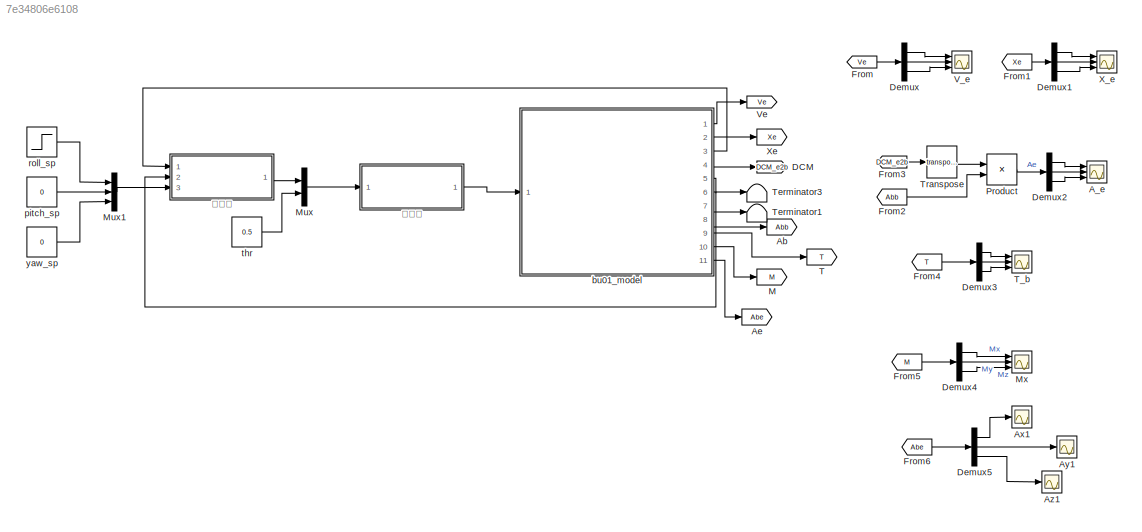
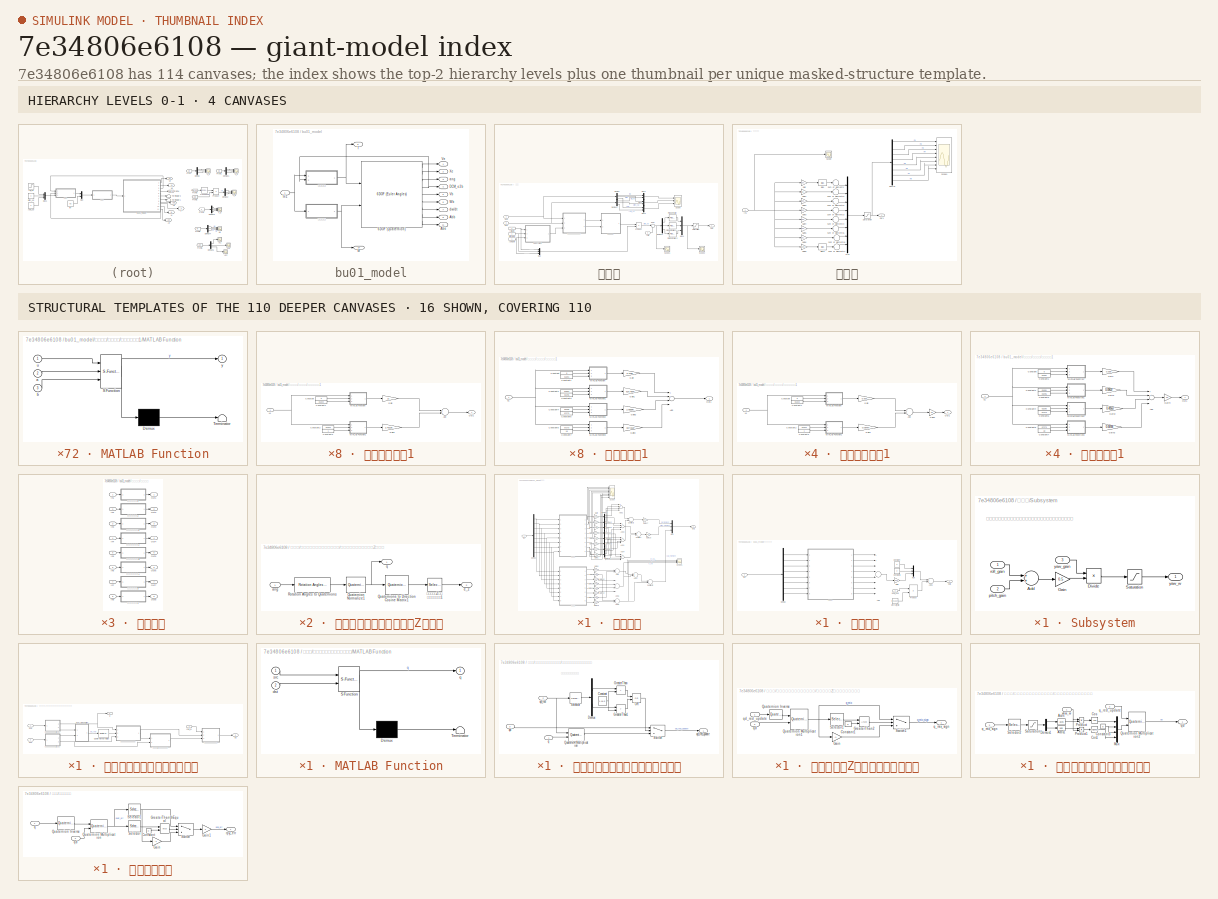
[diagram: thumbnail index - top-2 hierarchy levels (4 canvases) + 16 structural-template representatives of the remaining 110 canvases]
MODEL slx_7e34806e6108
KIND model
CONFIG AbsTol = auto
CONFIG EnableMultiTasking = off
CONFIG FixedStep = auto
CONFIG MaxStep = auto
CONFIG MinStep = auto
CONFIG RelTol = 1e-3
CONFIG SampleTimeConstraint = Unconstrained
CONFIG Solver = VariableStepAuto
CONFIG SolverName = VariableStepAuto
CONFIG StartTime = 0.0
CONFIG StopTime = 10.0
WORKSPACE source: MAT-file member
WORKSPACE Ixx = 0.8
BLOCK [Scope] A_e
  Floating = off
  NumInputPorts = 3
  Ports = [3]
  ScopeSpecificationString = Simulink.scopes.TimeScopeBlockCfg('CurrentConfiguration', extmgr.ConfigurationSet(extmgr.Configuration('Core','General UI',true),extmgr.Configuration('Core','Source UI',true),extmgr.Configuration('Sources','WiredSimulink',true,'DataLoggingVariableName','ScopeData1'),extmgr.Configuration('Visuals','Time Domain',true),extmgr.Configuration('Tools','Plot Navigation',true),extmgr.Configuration('Tools',...<+40ch>
BLOCK [Goto] Ab
  GotoTag = Abb
BLOCK [Goto] Ae
  GotoTag = Abe
BLOCK [Scope] Ax1
  Floating = off
  NumInputPorts = 1
  Ports = [1]
  ScopeSpecificationString = Simulink.scopes.TimeScopeBlockCfg('CurrentConfiguration', extmgr.ConfigurationSet(extmgr.Configuration('Core','General UI',true),extmgr.Configuration('Core','Source UI',true),extmgr.Configuration('Sources','WiredSimulink',true,'DataLoggingVariableName','ScopeData15'),extmgr.Configuration('Visuals','Time Domain',true,'SerializedDisplays',{struct('MinYLimReal','-0.00675','MaxYLimReal','0.00075','YLa...<+1368ch>
BLOCK [Scope] Ay1
  Floating = off
  NumInputPorts = 1
  Ports = [1]
  ScopeSpecificationString = Simulink.scopes.TimeScopeBlockCfg('CurrentConfiguration', extmgr.ConfigurationSet(extmgr.Configuration('Core','General UI',true),extmgr.Configuration('Core','Source UI',true),extmgr.Configuration('Sources','WiredSimulink',true,'DataLoggingVariableName','ScopeData16'),extmgr.Configuration('Visuals','Time Domain',true,'SerializedDisplays',{struct('MinYLimReal','-0.00021','MaxYLimReal','0.00014','YLa...<+1368ch>
BLOCK [Scope] Az1
  Floating = off
  NumInputPorts = 1
  Ports = [1]
  ScopeSpecificationString = Simulink.scopes.TimeScopeBlockCfg('CurrentConfiguration', extmgr.ConfigurationSet(extmgr.Configuration('Core','General UI',true),extmgr.Configuration('Core','Source UI',true),extmgr.Configuration('Sources','WiredSimulink',true,'DataLoggingVariableName','ScopeData17'),extmgr.Configuration('Visuals','Time Domain',true,'SerializedDisplays',{struct('MinYLimReal','-0.27081','MaxYLimReal','-0.26842','YL...<+1398ch>
BLOCK [Goto] DCM
  GotoTag = DCM_e2b
BLOCK [Demux] Demux
  DisplayOption = bar
  Outputs = 3
  Ports = [1, 3]
BLOCK [Demux] Demux1
  DisplayOption = bar
  Outputs = 3
  Ports = [1, 3]
BLOCK [Demux] Demux2
  DisplayOption = bar
  Outputs = 3
  Ports = [1, 3]
BLOCK [Demux] Demux3
  DisplayOption = bar
  Outputs = 3
  Ports = [1, 3]
BLOCK [Demux] Demux4
  DisplayOption = bar
  Outputs = 3
  Ports = [1, 3]
BLOCK [Demux] Demux5
  DisplayOption = bar
  Outputs = 3
  Ports = [1, 3]
BLOCK [From] From
  GotoTag = Ve
BLOCK [From] From1
  GotoTag = Xe
BLOCK [From] From2
  GotoTag = Abb
BLOCK [From] From3
  GotoTag = DCM_e2b
BLOCK [From] From4
  GotoTag = T
BLOCK [From] From5
  GotoTag = M
BLOCK [From] From6
  GotoTag = Abe
BLOCK [Goto] M
  GotoTag = M
BLOCK [Mux] Mux
  DisplayOption = bar
  Inputs = 2
  Ports = [2, 1]
BLOCK [Mux] Mux1
  DisplayOption = bar
  Inputs = 3
  Ports = [3, 1]
BLOCK [Scope] Mx
  Floating = off
  NumInputPorts = 3
  Ports = [3]
  ScopeSpecificationString = Simulink.scopes.TimeScopeBlockCfg('CurrentConfiguration', extmgr.ConfigurationSet(extmgr.Configuration('Core','General UI',true),extmgr.Configuration('Core','Source UI',true),extmgr.Configuration('Sources','WiredSimulink',true,'DataLoggingVariableName','ScopeData12'),extmgr.Configuration('Visuals','Time Domain',true,'SerializedDisplays',{struct('MinYLimReal','-0.00006','MaxYLimReal','0.00004','YLa...<+2751ch>
BLOCK [Product] Product
  InputSameDT = off
  Multiplication = Matrix(*)
  OutDataTypeStr = Inherit: Inherit via internal rule
  Ports = [2, 1]
  RndMeth = Floor
  SaturateOnIntegerOverflow = off
BLOCK [Goto] T
  GotoTag = T
BLOCK [Scope] T_b
  Floating = off
  NumInputPorts = 3
  Ports = [3]
  ScopeSpecificationString = Simulink.scopes.TimeScopeBlockCfg('CurrentConfiguration', extmgr.ConfigurationSet(extmgr.Configuration('Core','General UI',true),extmgr.Configuration('Core','Source UI',true),extmgr.Configuration('Sources','WiredSimulink',true,'DataLoggingVariableName','ScopeData9'),extmgr.Configuration('Visuals','Time Domain',true,'SerializedDisplays',{struct('MinYLimReal','-0.25627','MaxYLimReal','0.16886','YLab...<+1367ch>
BLOCK [Terminator] Terminator1
BLOCK [Terminator] Terminator3
BLOCK [Math] Transpose
  Operator = transpose
  Ports = [1, 1]
BLOCK [Scope] V_e
  Floating = off
  NumInputPorts = 3
  Ports = [3]
  ScopeSpecificationString = Simulink.scopes.TimeScopeBlockCfg('CurrentConfiguration', extmgr.ConfigurationSet(extmgr.Configuration('Core','General UI',true),extmgr.Configuration('Core','Source UI',true),extmgr.Configuration('Sources','WiredSimulink',true),extmgr.Configuration('Visuals','Time Domain',true),extmgr.Configuration('Tools','Plot Navigation',true),extmgr.Configuration('Tools','Measurements',true)),'Version','2018b'...<+1ch>
BLOCK [Goto] Ve
  GotoTag = Ve
BLOCK [Scope] X_e
  Floating = off
  NumInputPorts = 3
  Ports = [3]
  ScopeSpecificationString = Simulink.scopes.TimeScopeBlockCfg('CurrentConfiguration', extmgr.ConfigurationSet(extmgr.Configuration('Core','General UI',true),extmgr.Configuration('Core','Source UI',true),extmgr.Configuration('Sources','WiredSimulink',true,'DataLoggingVariableName','ScopeData5'),extmgr.Configuration('Visuals','Time Domain',true),extmgr.Configuration('Tools','Plot Navigation',true),extmgr.Configuration('Tools',...<+40ch>
BLOCK [Goto] Xe
  GotoTag = Xe
BLOCK [SubSystem] bu01_model
  Ports = [1, 11]
  RequestExecContextInheritance = off
BLOCK [Reference] bu01_model/6DOF (Quaternion)  REF=shared6dof/6DOF (Euler Angles)
  Ports = [2, 9]
  SourceBlock = shared6dof/6DOF (Euler Angles)
  SourceProductBaseCode = AE
  SourceProductName = Aerospace Blockset
  SourceType = 6DOF EoM (Body Axis)
BLOCK [Outport] bu01_model/Abb
  IconDisplay = Port number
  Port = 8
BLOCK [Outport] bu01_model/Abe
  IconDisplay = Port number
  Port = 11
BLOCK [Outport] bu01_model/DCM_e2b
  IconDisplay = Port number
  Port = 4
BLOCK [Inport] bu01_model/In1
  IconDisplay = Port number
BLOCK [Outport] bu01_model/M
  IconDisplay = Port number
  Port = 10
BLOCK [Outport] bu01_model/T
  IconDisplay = Port number
  Port = 9
BLOCK [Outport] bu01_model/Vb
  IconDisplay = Port number
  Port = 5
BLOCK [Outport] bu01_model/Ve
  IconDisplay = Port number
BLOCK [Outport] bu01_model/Wb
  IconDisplay = Port number
  Port = 6
BLOCK [Outport] bu01_model/Xe
  IconDisplay = Port number
  Port = 2
BLOCK [Outport] bu01_model/ang
  IconDisplay = Port number
  Port = 3
BLOCK [Outport] bu01_model/dw//dt
  IconDisplay = Port number
  Port = 7
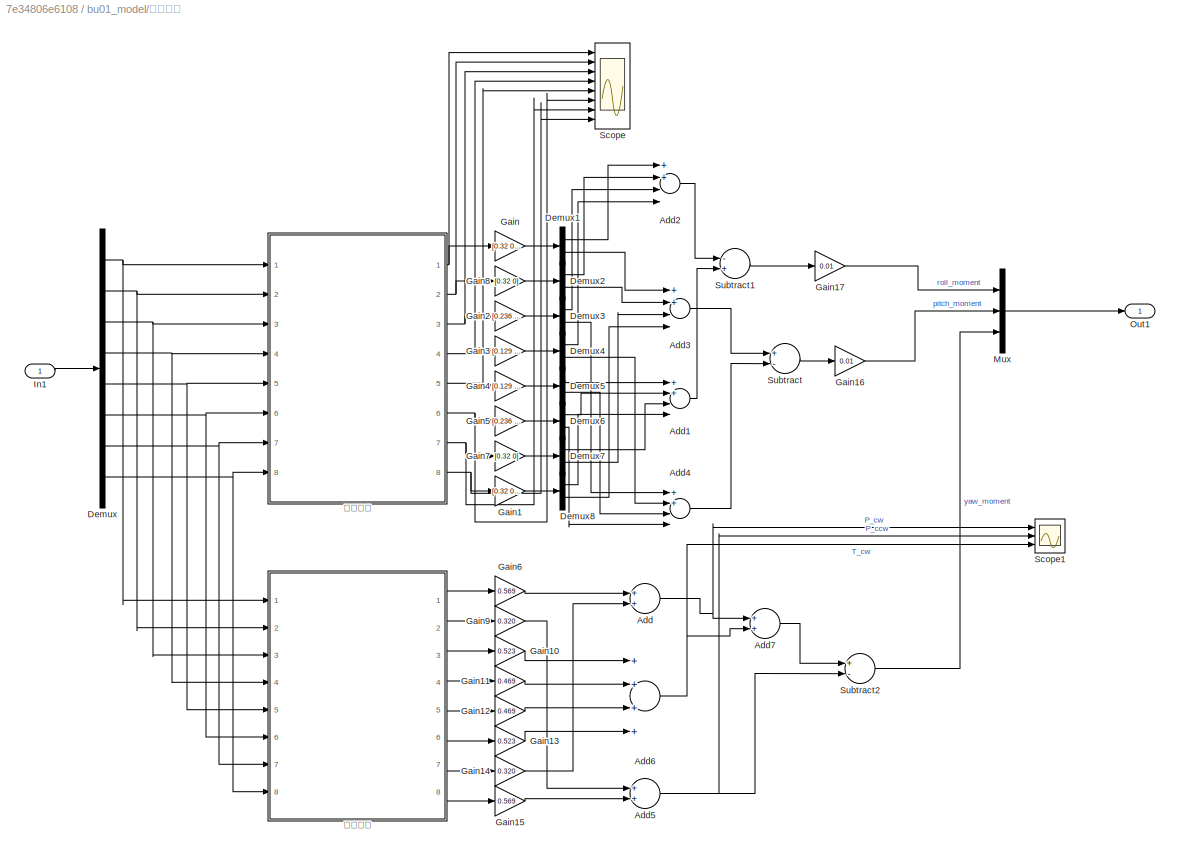
BLOCK [SubSystem] bu01_model/力矩方程
  Ports = [1, 1]
  RequestExecContextInheritance = off
BLOCK [Sum] bu01_model/力矩方程/Add
  InputSameDT = off
  OutDataTypeStr = Inherit: Inherit via internal rule
  Ports = [2, 1]
  SaturateOnIntegerOverflow = off
BLOCK [Sum] bu01_model/力矩方程/Add1
  InputSameDT = off
  Inputs = 4
  OutDataTypeStr = Inherit: Inherit via internal rule
  Ports = [4, 1]
  SaturateOnIntegerOverflow = off
BLOCK [Sum] bu01_model/力矩方程/Add2
  InputSameDT = off
  Inputs = 4
  OutDataTypeStr = Inherit: Inherit via internal rule
  Ports = [4, 1]
  SaturateOnIntegerOverflow = off
BLOCK [Sum] bu01_model/力矩方程/Add3
  InputSameDT = off
  Inputs = 4
  OutDataTypeStr = Inherit: Inherit via internal rule
  Ports = [4, 1]
  SaturateOnIntegerOverflow = off
BLOCK [Sum] bu01_model/力矩方程/Add4
  InputSameDT = off
  Inputs = 4
  OutDataTypeStr = Inherit: Inherit via internal rule
  Ports = [4, 1]
  SaturateOnIntegerOverflow = off
BLOCK [Sum] bu01_model/力矩方程/Add5
  InputSameDT = off
  OutDataTypeStr = Inherit: Inherit via internal rule
  Ports = [2, 1]
  SaturateOnIntegerOverflow = off
BLOCK [Sum] bu01_model/力矩方程/Add6
  InputSameDT = off
  Inputs = ++++
  OutDataTypeStr = Inherit: Inherit via internal rule
  Ports = [4, 1]
  SaturateOnIntegerOverflow = off
BLOCK [Sum] bu01_model/力矩方程/Add7
  InputSameDT = off
  OutDataTypeStr = Inherit: Inherit via internal rule
  Ports = [2, 1]
  SaturateOnIntegerOverflow = off
BLOCK [Demux] bu01_model/力矩方程/Demux
  DisplayOption = bar
  Outputs = 8
  Ports = [1, 8]
BLOCK [Demux] bu01_model/力矩方程/Demux1
  DisplayOption = bar
  Outputs = 2
  Ports = [1, 2]
BLOCK [Demux] bu01_model/力矩方程/Demux2
  DisplayOption = bar
  Outputs = 2
  Ports = [1, 2]
BLOCK [Demux] bu01_model/力矩方程/Demux3
  DisplayOption = bar
  Outputs = 2
  Ports = [1, 2]
BLOCK [Demux] bu01_model/力矩方程/Demux4
  DisplayOption = bar
  Outputs = 2
  Ports = [1, 2]
BLOCK [Demux] bu01_model/力矩方程/Demux5
  DisplayOption = bar
  Outputs = 2
  Ports = [1, 2]
BLOCK [Demux] bu01_model/力矩方程/Demux6
  DisplayOption = bar
  Outputs = 2
  Ports = [1, 2]
BLOCK [Demux] bu01_model/力矩方程/Demux7
  DisplayOption = bar
  Outputs = 2
  Ports = [1, 2]
BLOCK [Demux] bu01_model/力矩方程/Demux8
  DisplayOption = bar
  Outputs = 2
  Ports = [1, 2]
BLOCK [Gain] bu01_model/力矩方程/Gain
  Gain = [0.32 0.47]
  OutDataTypeStr = Inherit: Inherit via internal rule
  ParamDataTypeStr = Inherit: Inherit via internal rule
  SaturateOnIntegerOverflow = off
BLOCK [Gain] bu01_model/力矩方程/Gain1
  Gain = [0.32 0.47]
  OutDataTypeStr = Inherit: Inherit via internal rule
  ParamDataTypeStr = Inherit: Inherit via internal rule
  SaturateOnIntegerOverflow = off
BLOCK [Gain] bu01_model/力矩方程/Gain10
  Gain = 0.523
  OutDataTypeStr = Inherit: Inherit via internal rule
  ParamDataTypeStr = Inherit: Inherit via internal rule
  SaturateOnIntegerOverflow = off
BLOCK [Gain] bu01_model/力矩方程/Gain11
  Gain = 0.469
  OutDataTypeStr = Inherit: Inherit via internal rule
  ParamDataTypeStr = Inherit: Inherit via internal rule
  SaturateOnIntegerOverflow = off
BLOCK [Gain] bu01_model/力矩方程/Gain12
  Gain = 0.469
  OutDataTypeStr = Inherit: Inherit via internal rule
  ParamDataTypeStr = Inherit: Inherit via internal rule
  SaturateOnIntegerOverflow = off
BLOCK [Gain] bu01_model/力矩方程/Gain13
  Gain = 0.523
  OutDataTypeStr = Inherit: Inherit via internal rule
  ParamDataTypeStr = Inherit: Inherit via internal rule
  SaturateOnIntegerOverflow = off
BLOCK [Gain] bu01_model/力矩方程/Gain14
  Gain = 0.320
  OutDataTypeStr = Inherit: Inherit via internal rule
  ParamDataTypeStr = Inherit: Inherit via internal rule
  SaturateOnIntegerOverflow = off
BLOCK [Gain] bu01_model/力矩方程/Gain15
  Gain = 0.569
  OutDataTypeStr = Inherit: Inherit via internal rule
  ParamDataTypeStr = Inherit: Inherit via internal rule
  SaturateOnIntegerOverflow = off
BLOCK [Gain] bu01_model/力矩方程/Gain16
  Gain = 0.01
  OutDataTypeStr = Inherit: Inherit via internal rule
  ParamDataTypeStr = Inherit: Inherit via internal rule
  SaturateOnIntegerOverflow = off
BLOCK [Gain] bu01_model/力矩方程/Gain17
  Gain = 0.01
  OutDataTypeStr = Inherit: Inherit via internal rule
  ParamDataTypeStr = Inherit: Inherit via internal rule
  SaturateOnIntegerOverflow = off
BLOCK [Gain] bu01_model/力矩方程/Gain2
  Gain = [0.236 0.467]
  OutDataTypeStr = Inherit: Inherit via internal rule
  ParamDataTypeStr = Inherit: Inherit via internal rule
  SaturateOnIntegerOverflow = off
BLOCK [Gain] bu01_model/力矩方程/Gain3
  Gain = [0.129 0.450]
  OutDataTypeStr = Inherit: Inherit via internal rule
  ParamDataTypeStr = Inherit: Inherit via internal rule
  SaturateOnIntegerOverflow = off
BLOCK [Gain] bu01_model/力矩方程/Gain4
  Gain = [0.129 0.450]
  OutDataTypeStr = Inherit: Inherit via internal rule
  ParamDataTypeStr = Inherit: Inherit via internal rule
  SaturateOnIntegerOverflow = off
BLOCK [Gain] bu01_model/力矩方程/Gain5
  Gain = [0.236 0.467]
  OutDataTypeStr = Inherit: Inherit via internal rule
  ParamDataTypeStr = Inherit: Inherit via internal rule
  SaturateOnIntegerOverflow = off
BLOCK [Gain] bu01_model/力矩方程/Gain6
  Gain = 0.569
  OutDataTypeStr = Inherit: Inherit via internal rule
  ParamDataTypeStr = Inherit: Inherit via internal rule
  SaturateOnIntegerOverflow = off
BLOCK [Gain] bu01_model/力矩方程/Gain7
  Gain = [0.32 0]
  OutDataTypeStr = Inherit: Inherit via internal rule
  ParamDataTypeStr = Inherit: Inherit via internal rule
  SaturateOnIntegerOverflow = off
BLOCK [Gain] bu01_model/力矩方程/Gain8
  Gain = [0.32 0]
  OutDataTypeStr = Inherit: Inherit via internal rule
  ParamDataTypeStr = Inherit: Inherit via internal rule
  SaturateOnIntegerOverflow = off
BLOCK [Gain] bu01_model/力矩方程/Gain9
  Gain = 0.320
  OutDataTypeStr = Inherit: Inherit via internal rule
  ParamDataTypeStr = Inherit: Inherit via internal rule
  SaturateOnIntegerOverflow = off
BLOCK [Inport] bu01_model/力矩方程/In1
  IconDisplay = Port number
BLOCK [Mux] bu01_model/力矩方程/Mux
  DisplayOption = bar
  Inputs = 3
  Ports = [3, 1]
BLOCK [Outport] bu01_model/力矩方程/Out1
  IconDisplay = Port number
BLOCK [Scope] bu01_model/力矩方程/Scope
  Floating = off
  NumInputPorts = 8
  Ports = [8]
  ScopeSpecificationString = Simulink.scopes.TimeScopeBlockCfg('CurrentConfiguration', extmgr.ConfigurationSet(extmgr.Configuration('Core','General UI',true),extmgr.Configuration('Core','Source UI',true),extmgr.Configuration('Sources','WiredSimulink',true,'DataLoggingVariableName','ScopeData13'),extmgr.Configuration('Visuals','Time Domain',true,'SerializedDisplays',{struct('MinYLimReal','1774.55332','MaxYLimReal','2155.64529'...<+6284ch>
BLOCK [Scope] bu01_model/力矩方程/Scope1
  Floating = off
  NumInputPorts = 3
  Ports = [3]
  ScopeSpecificationString = Simulink.scopes.TimeScopeBlockCfg('CurrentConfiguration', extmgr.ConfigurationSet(extmgr.Configuration('Core','General UI',true),extmgr.Configuration('Core','Source UI',true),extmgr.Configuration('Sources','WiredSimulink',true,'DataLoggingVariableName','ScopeData1'),extmgr.Configuration('Visuals','Time Domain',true,'SerializedDisplays',{struct('MinYLimReal','1.12533','MaxYLimReal','8.2319','YLabel...<+1398ch>
BLOCK [Sum] bu01_model/力矩方程/Subtract
  InputSameDT = off
  Inputs = +-
  OutDataTypeStr = Inherit: Inherit via internal rule
  Ports = [2, 1]
  SaturateOnIntegerOverflow = off
BLOCK [Sum] bu01_model/力矩方程/Subtract1
  InputSameDT = off
  Inputs = -+
  OutDataTypeStr = Inherit: Inherit via internal rule
  Ports = [2, 1]
  SaturateOnIntegerOverflow = off
BLOCK [Sum] bu01_model/力矩方程/Subtract2
  InputSameDT = off
  Inputs = +-
  OutDataTypeStr = Inherit: Inherit via internal rule
  Ports = [2, 1]
  SaturateOnIntegerOverflow = off
BLOCK [SubSystem] bu01_model/力矩方程/扭力模型
  Ports = [8, 8]
  RequestExecContextInheritance = off
BLOCK [Inport] bu01_model/力矩方程/扭力模型/In1
  IconDisplay = Port number
BLOCK [Inport] bu01_model/力矩方程/扭力模型/In2
  IconDisplay = Port number
  Port = 2
BLOCK [Inport] bu01_model/力矩方程/扭力模型/In3
  IconDisplay = Port number
  Port = 3
BLOCK [Inport] bu01_model/力矩方程/扭力模型/In4
  IconDisplay = Port number
  Port = 4
BLOCK [Inport] bu01_model/力矩方程/扭力模型/In5
  IconDisplay = Port number
  Port = 5
BLOCK [Inport] bu01_model/力矩方程/扭力模型/In6
  IconDisplay = Port number
  Port = 6
BLOCK [Inport] bu01_model/力矩方程/扭力模型/In7
  IconDisplay = Port number
  Port = 7
BLOCK [Inport] bu01_model/力矩方程/扭力模型/In8
  IconDisplay = Port number
  Port = 8
BLOCK [Outport] bu01_model/力矩方程/扭力模型/Out1
  IconDisplay = Port number
BLOCK [Outport] bu01_model/力矩方程/扭力模型/Out2
  IconDisplay = Port number
  Port = 2
BLOCK [Outport] bu01_model/力矩方程/扭力模型/Out3
  IconDisplay = Port number
  Port = 3
BLOCK [Outport] bu01_model/力矩方程/扭力模型/Out4
  IconDisplay = Port number
  Port = 4
BLOCK [Outport] bu01_model/力矩方程/扭力模型/Out5
  IconDisplay = Port number
  Port = 5
BLOCK [Outport] bu01_model/力矩方程/扭力模型/Out6
  IconDisplay = Port number
  Port = 6
BLOCK [Outport] bu01_model/力矩方程/扭力模型/Out7
  IconDisplay = Port number
  Port = 7
BLOCK [Outport] bu01_model/力矩方程/扭力模型/Out8
  IconDisplay = Port number
  Port = 8
BLOCK [SubSystem] bu01_model/力矩方程/扭力模型/涵道模型模型1
  Ports = [1, 1]
  RequestExecContextInheritance = off
BLOCK [Sum] bu01_model/力矩方程/扭力模型/涵道模型模型1/Add
  InputSameDT = off
  OutDataTypeStr = Inherit: Inherit via internal rule
  Ports = [2, 1]
  SaturateOnIntegerOverflow = off
BLOCK [Constant] bu01_model/力矩方程/扭力模型/涵道模型模型1/Constant
  Value = 0
BLOCK [Constant] bu01_model/力矩方程/扭力模型/涵道模型模型1/Constant1
  Value = 0.1023
BLOCK [Constant] bu01_model/力矩方程/扭力模型/涵道模型模型1/Constant2
  Value = 0.1023
BLOCK [Constant] bu01_model/力矩方程/扭力模型/涵道模型模型1/Constant3
BLOCK [Gain] bu01_model/力矩方程/扭力模型/涵道模型模型1/Gain
  Gain = 0.003
  OutDataTypeStr = Inherit: Inherit via internal rule
  ParamDataTypeStr = Inherit: Inherit via internal rule
  SaturateOnIntegerOverflow = off
BLOCK [Gain] bu01_model/力矩方程/扭力模型/涵道模型模型1/Gain1
  Gain = 0.09767
  OutDataTypeStr = Inherit: Inherit via internal rule
  ParamDataTypeStr = Inherit: Inherit via internal rule
  SaturateOnIntegerOverflow = off
BLOCK [Gain] bu01_model/力矩方程/扭力模型/涵道模型模型1/Gain2
  Gain = 20
  OutDataTypeStr = Inherit: Inherit via internal rule
  ParamDataTypeStr = Inherit: Inherit via internal rule
  SaturateOnIntegerOverflow = off
BLOCK [SubSystem] bu01_model/力矩方程/扭力模型/涵道模型模型1/MATLAB Function
  ErrorFcn = Stateflow.Translate.translate
  PermitHierarchicalResolution = ExplicitOnly
  Ports = [3, 1]
  RequestExecContextInheritance = off
  SFBlockType = MATLAB Function
  TreatAsAtomicUnit = on
BLOCK [Demux] bu01_model/力矩方程/扭力模型/涵道模型模型1/MATLAB Function/ Demux 
  Outputs = 1
  Ports = [1, 1]
BLOCK [S-Function] bu01_model/力矩方程/扭力模型/涵道模型模型1/MATLAB Function/ SFunction 
  EnableBusSupport = on
  FunctionName = sf_sfun
  PortCounts = [3 2]
  Ports = [3, 2]
  SFcnIsStateOwnerBlock = off
  SFunctionDeploymentMode = off
  Tag = Stateflow S-Function bu01_2018b 53
BLOCK [Terminator] bu01_model/力矩方程/扭力模型/涵道模型模型1/MATLAB Function/ Terminator 
BLOCK [Inport] bu01_model/力矩方程/扭力模型/涵道模型模型1/MATLAB Function/a
  IconDisplay = Port number
  Port = 2
BLOCK [Inport] bu01_model/力矩方程/扭力模型/涵道模型模型1/MATLAB Function/b
  IconDisplay = Port number
  Port = 3
BLOCK [Inport] bu01_model/力矩方程/扭力模型/涵道模型模型1/MATLAB Function/u
  IconDisplay = Port number
BLOCK [Outport] bu01_model/力矩方程/扭力模型/涵道模型模型1/MATLAB Function/y
  IconDisplay = Port number
BLOCK [SubSystem] bu01_model/力矩方程/扭力模型/涵道模型模型1/MATLAB Function1
  ErrorFcn = Stateflow.Translate.translate
  PermitHierarchicalResolution = ExplicitOnly
  Ports = [3, 1]
  RequestExecContextInheritance = off
  SFBlockType = MATLAB Function
  TreatAsAtomicUnit = on
BLOCK [Demux] bu01_model/力矩方程/扭力模型/涵道模型模型1/MATLAB Function1/ Demux 
  Outputs = 1
  Ports = [1, 1]
BLOCK [S-Function] bu01_model/力矩方程/扭力模型/涵道模型模型1/MATLAB Function1/ SFunction 
  EnableBusSupport = on
  FunctionName = sf_sfun
  PortCounts = [3 2]
  Ports = [3, 2]
  SFcnIsStateOwnerBlock = off
  SFunctionDeploymentMode = off
  Tag = Stateflow S-Function bu01_2018b 54
BLOCK [Terminator] bu01_model/力矩方程/扭力模型/涵道模型模型1/MATLAB Function1/ Terminator 
BLOCK [Inport] bu01_model/力矩方程/扭力模型/涵道模型模型1/MATLAB Function1/a
  IconDisplay = Port number
  Port = 2
BLOCK [Inport] bu01_model/力矩方程/扭力模型/涵道模型模型1/MATLAB Function1/b
  IconDisplay = Port number
  Port = 3
BLOCK [Inport] bu01_model/力矩方程/扭力模型/涵道模型模型1/MATLAB Function1/u
  IconDisplay = Port number
BLOCK [Outport] bu01_model/力矩方程/扭力模型/涵道模型模型1/MATLAB Function1/y
  IconDisplay = Port number
BLOCK [Outport] bu01_model/力矩方程/扭力模型/涵道模型模型1/Out1
  IconDisplay = Port number
BLOCK [Inport] bu01_model/力矩方程/扭力模型/涵道模型模型1/u1
  IconDisplay = Port number
BLOCK [SubSystem] bu01_model/力矩方程/扭力模型/涵道模型模型2
  Ports = [1, 1]
  RequestExecContextInheritance = off
BLOCK [Sum] bu01_model/力矩方程/扭力模型/涵道模型模型2/Add
  InputSameDT = off
  OutDataTypeStr = Inherit: Inherit via internal rule
  Ports = [2, 1]
  SaturateOnIntegerOverflow = off
BLOCK [Constant] bu01_model/力矩方程/扭力模型/涵道模型模型2/Constant
  Value = 0
BLOCK [Constant] bu01_model/力矩方程/扭力模型/涵道模型模型2/Constant1
  Value = 0.1023
BLOCK [Constant] bu01_model/力矩方程/扭力模型/涵道模型模型2/Constant2
  Value = 0.1023
BLOCK [Constant] bu01_model/力矩方程/扭力模型/涵道模型模型2/Constant3
BLOCK [Gain] bu01_model/力矩方程/扭力模型/涵道模型模型2/Gain
  Gain = 0.003
  OutDataTypeStr = Inherit: Inherit via internal rule
  ParamDataTypeStr = Inherit: Inherit via internal rule
  SaturateOnIntegerOverflow = off
BLOCK [Gain] bu01_model/力矩方程/扭力模型/涵道模型模型2/Gain1
  Gain = 0.09767
  OutDataTypeStr = Inherit: Inherit via internal rule
  ParamDataTypeStr = Inherit: Inherit via internal rule
  SaturateOnIntegerOverflow = off
BLOCK [Gain] bu01_model/力矩方程/扭力模型/涵道模型模型2/Gain2
  Gain = 20
  OutDataTypeStr = Inherit: Inherit via internal rule
  ParamDataTypeStr = Inherit: Inherit via internal rule
  SaturateOnIntegerOverflow = off
BLOCK [SubSystem] bu01_model/力矩方程/扭力模型/涵道模型模型2/MATLAB Function
  ErrorFcn = Stateflow.Translate.translate
  PermitHierarchicalResolution = ExplicitOnly
  Ports = [3, 1]
  RequestExecContextInheritance = off
  SFBlockType = MATLAB Function
  TreatAsAtomicUnit = on
BLOCK [Demux] bu01_model/力矩方程/扭力模型/涵道模型模型2/MATLAB Function/ Demux 
  Outputs = 1
  Ports = [1, 1]
BLOCK [S-Function] bu01_model/力矩方程/扭力模型/涵道模型模型2/MATLAB Function/ SFunction 
  EnableBusSupport = on
  FunctionName = sf_sfun
  PortCounts = [3 2]
  Ports = [3, 2]
  SFcnIsStateOwnerBlock = off
  SFunctionDeploymentMode = off
  Tag = Stateflow S-Function bu01_2018b 59
BLOCK [Terminator] bu01_model/力矩方程/扭力模型/涵道模型模型2/MATLAB Function/ Terminator 
BLOCK [Inport] bu01_model/力矩方程/扭力模型/涵道模型模型2/MATLAB Function/a
  IconDisplay = Port number
  Port = 2
BLOCK [Inport] bu01_model/力矩方程/扭力模型/涵道模型模型2/MATLAB Function/b
  IconDisplay = Port number
  Port = 3
BLOCK [Inport] bu01_model/力矩方程/扭力模型/涵道模型模型2/MATLAB Function/u
  IconDisplay = Port number
BLOCK [Outport] bu01_model/力矩方程/扭力模型/涵道模型模型2/MATLAB Function/y
  IconDisplay = Port number
BLOCK [SubSystem] bu01_model/力矩方程/扭力模型/涵道模型模型2/MATLAB Function1
  ErrorFcn = Stateflow.Translate.translate
  PermitHierarchicalResolution = ExplicitOnly
  Ports = [3, 1]
  RequestExecContextInheritance = off
  SFBlockType = MATLAB Function
  TreatAsAtomicUnit = on
BLOCK [Demux] bu01_model/力矩方程/扭力模型/涵道模型模型2/MATLAB Function1/ Demux 
  Outputs = 1
  Ports = [1, 1]
BLOCK [S-Function] bu01_model/力矩方程/扭力模型/涵道模型模型2/MATLAB Function1/ SFunction 
  EnableBusSupport = on
  FunctionName = sf_sfun
  PortCounts = [3 2]
  Ports = [3, 2]
  SFcnIsStateOwnerBlock = off
  SFunctionDeploymentMode = off
  Tag = Stateflow S-Function bu01_2018b 60
BLOCK [Terminator] bu01_model/力矩方程/扭力模型/涵道模型模型2/MATLAB Function1/ Terminator 
BLOCK [Inport] bu01_model/力矩方程/扭力模型/涵道模型模型2/MATLAB Function1/a
  IconDisplay = Port number
  Port = 2
BLOCK [Inport] bu01_model/力矩方程/扭力模型/涵道模型模型2/MATLAB Function1/b
  IconDisplay = Port number
  Port = 3
BLOCK [Inport] bu01_model/力矩方程/扭力模型/涵道模型模型2/MATLAB Function1/u
  IconDisplay = Port number
BLOCK [Outport] bu01_model/力矩方程/扭力模型/涵道模型模型2/MATLAB Function1/y
  IconDisplay = Port number
BLOCK [Outport] bu01_model/力矩方程/扭力模型/涵道模型模型2/Out1
  IconDisplay = Port number
BLOCK [Inport] bu01_model/力矩方程/扭力模型/涵道模型模型2/u1
  IconDisplay = Port number
BLOCK [SubSystem] bu01_model/力矩方程/扭力模型/涵道模型模型3
  Ports = [1, 1]
  RequestExecContextInheritance = off
BLOCK [Sum] bu01_model/力矩方程/扭力模型/涵道模型模型3/Add
  InputSameDT = off
  OutDataTypeStr = Inherit: Inherit via internal rule
  Ports = [2, 1]
  SaturateOnIntegerOverflow = off
BLOCK [Constant] bu01_model/力矩方程/扭力模型/涵道模型模型3/Constant
  Value = 0
BLOCK [Constant] bu01_model/力矩方程/扭力模型/涵道模型模型3/Constant1
  Value = 0.1023
BLOCK [Constant] bu01_model/力矩方程/扭力模型/涵道模型模型3/Constant2
  Value = 0.1023
BLOCK [Constant] bu01_model/力矩方程/扭力模型/涵道模型模型3/Constant3
BLOCK [Gain] bu01_model/力矩方程/扭力模型/涵道模型模型3/Gain
  Gain = 0.003
  OutDataTypeStr = Inherit: Inherit via internal rule
  ParamDataTypeStr = Inherit: Inherit via internal rule
  SaturateOnIntegerOverflow = off
BLOCK [Gain] bu01_model/力矩方程/扭力模型/涵道模型模型3/Gain1
  Gain = 0.09767
  OutDataTypeStr = Inherit: Inherit via internal rule
  ParamDataTypeStr = Inherit: Inherit via internal rule
  SaturateOnIntegerOverflow = off
BLOCK [Gain] bu01_model/力矩方程/扭力模型/涵道模型模型3/Gain2
  Gain = 20
  OutDataTypeStr = Inherit: Inherit via internal rule
  ParamDataTypeStr = Inherit: Inherit via internal rule
  SaturateOnIntegerOverflow = off
BLOCK [SubSystem] bu01_model/力矩方程/扭力模型/涵道模型模型3/MATLAB Function
  ErrorFcn = Stateflow.Translate.translate
  PermitHierarchicalResolution = ExplicitOnly
  Ports = [3, 1]
  RequestExecContextInheritance = off
  SFBlockType = MATLAB Function
  TreatAsAtomicUnit = on
BLOCK [Demux] bu01_model/力矩方程/扭力模型/涵道模型模型3/MATLAB Function/ Demux 
  Outputs = 1
  Ports = [1, 1]
BLOCK [S-Function] bu01_model/力矩方程/扭力模型/涵道模型模型3/MATLAB Function/ SFunction 
  EnableBusSupport = on
  FunctionName = sf_sfun
  PortCounts = [3 2]
  Ports = [3, 2]
  SFcnIsStateOwnerBlock = off
  SFunctionDeploymentMode = off
  Tag = Stateflow S-Function bu01_2018b 61
BLOCK [Terminator] bu01_model/力矩方程/扭力模型/涵道模型模型3/MATLAB Function/ Terminator 
BLOCK [Inport] bu01_model/力矩方程/扭力模型/涵道模型模型3/MATLAB Function/a
  IconDisplay = Port number
  Port = 2
BLOCK [Inport] bu01_model/力矩方程/扭力模型/涵道模型模型3/MATLAB Function/b
  IconDisplay = Port number
  Port = 3
BLOCK [Inport] bu01_model/力矩方程/扭力模型/涵道模型模型3/MATLAB Function/u
  IconDisplay = Port number
BLOCK [Outport] bu01_model/力矩方程/扭力模型/涵道模型模型3/MATLAB Function/y
  IconDisplay = Port number
BLOCK [SubSystem] bu01_model/力矩方程/扭力模型/涵道模型模型3/MATLAB Function1
  ErrorFcn = Stateflow.Translate.translate
  PermitHierarchicalResolution = ExplicitOnly
  Ports = [3, 1]
  RequestExecContextInheritance = off
  SFBlockType = MATLAB Function
  TreatAsAtomicUnit = on
BLOCK [Demux] bu01_model/力矩方程/扭力模型/涵道模型模型3/MATLAB Function1/ Demux 
  Outputs = 1
  Ports = [1, 1]
BLOCK [S-Function] bu01_model/力矩方程/扭力模型/涵道模型模型3/MATLAB Function1/ SFunction 
  EnableBusSupport = on
  FunctionName = sf_sfun
  PortCounts = [3 2]
  Ports = [3, 2]
  SFcnIsStateOwnerBlock = off
  SFunctionDeploymentMode = off
  Tag = Stateflow S-Function bu01_2018b 62
BLOCK [Terminator] bu01_model/力矩方程/扭力模型/涵道模型模型3/MATLAB Function1/ Terminator 
BLOCK [Inport] bu01_model/力矩方程/扭力模型/涵道模型模型3/MATLAB Function1/a
  IconDisplay = Port number
  Port = 2
BLOCK [Inport] bu01_model/力矩方程/扭力模型/涵道模型模型3/MATLAB Function1/b
  IconDisplay = Port number
  Port = 3
BLOCK [Inport] bu01_model/力矩方程/扭力模型/涵道模型模型3/MATLAB Function1/u
  IconDisplay = Port number
BLOCK [Outport] bu01_model/力矩方程/扭力模型/涵道模型模型3/MATLAB Function1/y
  IconDisplay = Port number
BLOCK [Outport] bu01_model/力矩方程/扭力模型/涵道模型模型3/Out1
  IconDisplay = Port number
BLOCK [Inport] bu01_model/力矩方程/扭力模型/涵道模型模型3/u1
  IconDisplay = Port number
BLOCK [SubSystem] bu01_model/力矩方程/扭力模型/涵道模型模型4
  Ports = [1, 1]
  RequestExecContextInheritance = off
BLOCK [Sum] bu01_model/力矩方程/扭力模型/涵道模型模型4/Add
  InputSameDT = off
  OutDataTypeStr = Inherit: Inherit via internal rule
  Ports = [2, 1]
  SaturateOnIntegerOverflow = off
BLOCK [Constant] bu01_model/力矩方程/扭力模型/涵道模型模型4/Constant
  Value = 0
BLOCK [Constant] bu01_model/力矩方程/扭力模型/涵道模型模型4/Constant1
  Value = 0.1023
BLOCK [Constant] bu01_model/力矩方程/扭力模型/涵道模型模型4/Constant2
  Value = 0.1023
BLOCK [Constant] bu01_model/力矩方程/扭力模型/涵道模型模型4/Constant3
BLOCK [Gain] bu01_model/力矩方程/扭力模型/涵道模型模型4/Gain
  Gain = 0.003
  OutDataTypeStr = Inherit: Inherit via internal rule
  ParamDataTypeStr = Inherit: Inherit via internal rule
  SaturateOnIntegerOverflow = off
BLOCK [Gain] bu01_model/力矩方程/扭力模型/涵道模型模型4/Gain1
  Gain = 0.09767
  OutDataTypeStr = Inherit: Inherit via internal rule
  ParamDataTypeStr = Inherit: Inherit via internal rule
  SaturateOnIntegerOverflow = off
BLOCK [Gain] bu01_model/力矩方程/扭力模型/涵道模型模型4/Gain2
  Gain = 20
  OutDataTypeStr = Inherit: Inherit via internal rule
  ParamDataTypeStr = Inherit: Inherit via internal rule
  SaturateOnIntegerOverflow = off
BLOCK [SubSystem] bu01_model/力矩方程/扭力模型/涵道模型模型4/MATLAB Function
  ErrorFcn = Stateflow.Translate.translate
  PermitHierarchicalResolution = ExplicitOnly
  Ports = [3, 1]
  RequestExecContextInheritance = off
  SFBlockType = MATLAB Function
  TreatAsAtomicUnit = on
BLOCK [Demux] bu01_model/力矩方程/扭力模型/涵道模型模型4/MATLAB Function/ Demux 
  Outputs = 1
  Ports = [1, 1]
BLOCK [S-Function] bu01_model/力矩方程/扭力模型/涵道模型模型4/MATLAB Function/ SFunction 
  EnableBusSupport = on
  FunctionName = sf_sfun
  PortCounts = [3 2]
  Ports = [3, 2]
  SFcnIsStateOwnerBlock = off
  SFunctionDeploymentMode = off
  Tag = Stateflow S-Function bu01_2018b 63
BLOCK [Terminator] bu01_model/力矩方程/扭力模型/涵道模型模型4/MATLAB Function/ Terminator 
BLOCK [Inport] bu01_model/力矩方程/扭力模型/涵道模型模型4/MATLAB Function/a
  IconDisplay = Port number
  Port = 2
BLOCK [Inport] bu01_model/力矩方程/扭力模型/涵道模型模型4/MATLAB Function/b
  IconDisplay = Port number
  Port = 3
BLOCK [Inport] bu01_model/力矩方程/扭力模型/涵道模型模型4/MATLAB Function/u
  IconDisplay = Port number
BLOCK [Outport] bu01_model/力矩方程/扭力模型/涵道模型模型4/MATLAB Function/y
  IconDisplay = Port number
BLOCK [SubSystem] bu01_model/力矩方程/扭力模型/涵道模型模型4/MATLAB Function1
  ErrorFcn = Stateflow.Translate.translate
  PermitHierarchicalResolution = ExplicitOnly
  Ports = [3, 1]
  RequestExecContextInheritance = off
  SFBlockType = MATLAB Function
  TreatAsAtomicUnit = on
BLOCK [Demux] bu01_model/力矩方程/扭力模型/涵道模型模型4/MATLAB Function1/ Demux 
  Outputs = 1
  Ports = [1, 1]
BLOCK [S-Function] bu01_model/力矩方程/扭力模型/涵道模型模型4/MATLAB Function1/ SFunction 
  EnableBusSupport = on
  FunctionName = sf_sfun
  PortCounts = [3 2]
  Ports = [3, 2]
  SFcnIsStateOwnerBlock = off
  SFunctionDeploymentMode = off
  Tag = Stateflow S-Function bu01_2018b 64
BLOCK [Terminator] bu01_model/力矩方程/扭力模型/涵道模型模型4/MATLAB Function1/ Terminator 
BLOCK [Inport] bu01_model/力矩方程/扭力模型/涵道模型模型4/MATLAB Function1/a
  IconDisplay = Port number
  Port = 2
BLOCK [Inport] bu01_model/力矩方程/扭力模型/涵道模型模型4/MATLAB Function1/b
  IconDisplay = Port number
  Port = 3
BLOCK [Inport] bu01_model/力矩方程/扭力模型/涵道模型模型4/MATLAB Function1/u
  IconDisplay = Port number
BLOCK [Outport] bu01_model/力矩方程/扭力模型/涵道模型模型4/MATLAB Function1/y
  IconDisplay = Port number
BLOCK [Outport] bu01_model/力矩方程/扭力模型/涵道模型模型4/Out1
  IconDisplay = Port number
BLOCK [Inport] bu01_model/力矩方程/扭力模型/涵道模型模型4/u1
  IconDisplay = Port number
BLOCK [SubSystem] bu01_model/力矩方程/扭力模型/螺旋桨模型1
  Ports = [1, 1]
  RequestExecContextInheritance = off
BLOCK [Sum] bu01_model/力矩方程/扭力模型/螺旋桨模型1/Add
  InputSameDT = off
  Inputs = 4
  OutDataTypeStr = Inherit: Inherit via internal rule
  Ports = [4, 1]
  SaturateOnIntegerOverflow = off
BLOCK [Constant] bu01_model/力矩方程/扭力模型/螺旋桨模型1/Constant
  Value = 0
BLOCK [Constant] bu01_model/力矩方程/扭力模型/螺旋桨模型1/Constant1
  Value = 0.1591
BLOCK [Constant] bu01_model/力矩方程/扭力模型/螺旋桨模型1/Constant2
  Value = 0.1591
BLOCK [Constant] bu01_model/力矩方程/扭力模型/螺旋桨模型1/Constant3
  Value = 0.3295
BLOCK [Constant] bu01_model/力矩方程/扭力模型/螺旋桨模型1/Constant4
  Value = 0.3295
BLOCK [Constant] bu01_model/力矩方程/扭力模型/螺旋桨模型1/Constant5
  Value = 0.7273
BLOCK [Constant] bu01_model/力矩方程/扭力模型/螺旋桨模型1/Constant6
  Value = 0.7273
BLOCK [Constant] bu01_model/力矩方程/扭力模型/螺旋桨模型1/Constant7
  Value = 1.0
BLOCK [Gain] bu01_model/力矩方程/扭力模型/螺旋桨模型1/Gain
  Gain = 0.009
  OutDataTypeStr = Inherit: Inherit via internal rule
  ParamDataTypeStr = Inherit: Inherit via internal rule
  SaturateOnIntegerOverflow = off
BLOCK [Gain] bu01_model/力矩方程/扭力模型/螺旋桨模型1/Gain1
  Gain = 0.09637
  OutDataTypeStr = Inherit: Inherit via internal rule
  ParamDataTypeStr = Inherit: Inherit via internal rule
  SaturateOnIntegerOverflow = off
BLOCK [Gain] bu01_model/力矩方程/扭力模型/螺旋桨模型1/Gain2
  Gain = 0.48563
  OutDataTypeStr = Inherit: Inherit via internal rule
  ParamDataTypeStr = Inherit: Inherit via internal rule
  SaturateOnIntegerOverflow = off
BLOCK [Gain] bu01_model/力矩方程/扭力模型/螺旋桨模型1/Gain3
  Gain = 0.06768
  OutDataTypeStr = Inherit: Inherit via internal rule
  ParamDataTypeStr = Inherit: Inherit via internal rule
  SaturateOnIntegerOverflow = off
BLOCK [Gain] bu01_model/力矩方程/扭力模型/螺旋桨模型1/Gain4
  Gain = 20
  OutDataTypeStr = Inherit: Inherit via internal rule
  ParamDataTypeStr = Inherit: Inherit via internal rule
  SaturateOnIntegerOverflow = off
BLOCK [SubSystem] bu01_model/力矩方程/扭力模型/螺旋桨模型1/MATLAB Function
  ErrorFcn = Stateflow.Translate.translate
  PermitHierarchicalResolution = ExplicitOnly
  Ports = [3, 1]
  RequestExecContextInheritance = off
  SFBlockType = MATLAB Function
  TreatAsAtomicUnit = on
BLOCK [Demux] bu01_model/力矩方程/扭力模型/螺旋桨模型1/MATLAB Function/ Demux 
  Outputs = 1
  Ports = [1, 1]
BLOCK [S-Function] bu01_model/力矩方程/扭力模型/螺旋桨模型1/MATLAB Function/ SFunction 
  EnableBusSupport = on
  FunctionName = sf_sfun
  PortCounts = [3 2]
  Ports = [3, 2]
  SFcnIsStateOwnerBlock = off
  SFunctionDeploymentMode = off
  Tag = Stateflow S-Function bu01_2018b 49
BLOCK [Terminator] bu01_model/力矩方程/扭力模型/螺旋桨模型1/MATLAB Function/ Terminator 
BLOCK [Inport] bu01_model/力矩方程/扭力模型/螺旋桨模型1/MATLAB Function/a
  IconDisplay = Port number
  Port = 2
BLOCK [Inport] bu01_model/力矩方程/扭力模型/螺旋桨模型1/MATLAB Function/b
  IconDisplay = Port number
  Port = 3
BLOCK [Inport] bu01_model/力矩方程/扭力模型/螺旋桨模型1/MATLAB Function/u
  IconDisplay = Port number
BLOCK [Outport] bu01_model/力矩方程/扭力模型/螺旋桨模型1/MATLAB Function/y
  IconDisplay = Port number
BLOCK [SubSystem] bu01_model/力矩方程/扭力模型/螺旋桨模型1/MATLAB Function1
  ErrorFcn = Stateflow.Translate.translate
  PermitHierarchicalResolution = ExplicitOnly
  Ports = [3, 1]
  RequestExecContextInheritance = off
  SFBlockType = MATLAB Function
  TreatAsAtomicUnit = on
BLOCK [Demux] bu01_model/力矩方程/扭力模型/螺旋桨模型1/MATLAB Function1/ Demux 
  Outputs = 1
  Ports = [1, 1]
BLOCK [S-Function] bu01_model/力矩方程/扭力模型/螺旋桨模型1/MATLAB Function1/ SFunction 
  EnableBusSupport = on
  FunctionName = sf_sfun
  PortCounts = [3 2]
  Ports = [3, 2]
  SFcnIsStateOwnerBlock = off
  SFunctionDeploymentMode = off
  Tag = Stateflow S-Function bu01_2018b 50
BLOCK [Terminator] bu01_model/力矩方程/扭力模型/螺旋桨模型1/MATLAB Function1/ Terminator 
BLOCK [Inport] bu01_model/力矩方程/扭力模型/螺旋桨模型1/MATLAB Function1/a
  IconDisplay = Port number
  Port = 2
BLOCK [Inport] bu01_model/力矩方程/扭力模型/螺旋桨模型1/MATLAB Function1/b
  IconDisplay = Port number
  Port = 3
BLOCK [Inport] bu01_model/力矩方程/扭力模型/螺旋桨模型1/MATLAB Function1/u
  IconDisplay = Port number
BLOCK [Outport] bu01_model/力矩方程/扭力模型/螺旋桨模型1/MATLAB Function1/y
  IconDisplay = Port number
BLOCK [SubSystem] bu01_model/力矩方程/扭力模型/螺旋桨模型1/MATLAB Function2
  ErrorFcn = Stateflow.Translate.translate
  PermitHierarchicalResolution = ExplicitOnly
  Ports = [3, 1]
  RequestExecContextInheritance = off
  SFBlockType = MATLAB Function
  TreatAsAtomicUnit = on
BLOCK [Demux] bu01_model/力矩方程/扭力模型/螺旋桨模型1/MATLAB Function2/ Demux 
  Outputs = 1
  Ports = [1, 1]
BLOCK [S-Function] bu01_model/力矩方程/扭力模型/螺旋桨模型1/MATLAB Function2/ SFunction 
  EnableBusSupport = on
  FunctionName = sf_sfun
  PortCounts = [3 2]
  Ports = [3, 2]
  SFcnIsStateOwnerBlock = off
  SFunctionDeploymentMode = off
  Tag = Stateflow S-Function bu01_2018b 51
BLOCK [Terminator] bu01_model/力矩方程/扭力模型/螺旋桨模型1/MATLAB Function2/ Terminator 
BLOCK [Inport] bu01_model/力矩方程/扭力模型/螺旋桨模型1/MATLAB Function2/a
  IconDisplay = Port number
  Port = 2
BLOCK [Inport] bu01_model/力矩方程/扭力模型/螺旋桨模型1/MATLAB Function2/b
  IconDisplay = Port number
  Port = 3
BLOCK [Inport] bu01_model/力矩方程/扭力模型/螺旋桨模型1/MATLAB Function2/u
  IconDisplay = Port number
BLOCK [Outport] bu01_model/力矩方程/扭力模型/螺旋桨模型1/MATLAB Function2/y
  IconDisplay = Port number
BLOCK [SubSystem] bu01_model/力矩方程/扭力模型/螺旋桨模型1/MATLAB Function3
  ErrorFcn = Stateflow.Translate.translate
  PermitHierarchicalResolution = ExplicitOnly
  Ports = [3, 1]
  RequestExecContextInheritance = off
  SFBlockType = MATLAB Function
  TreatAsAtomicUnit = on
BLOCK [Demux] bu01_model/力矩方程/扭力模型/螺旋桨模型1/MATLAB Function3/ Demux 
  Outputs = 1
  Ports = [1, 1]
BLOCK [S-Function] bu01_model/力矩方程/扭力模型/螺旋桨模型1/MATLAB Function3/ SFunction 
  EnableBusSupport = on
  FunctionName = sf_sfun
  PortCounts = [3 2]
  Ports = [3, 2]
  SFcnIsStateOwnerBlock = off
  SFunctionDeploymentMode = off
  Tag = Stateflow S-Function bu01_2018b 52
BLOCK [Terminator] bu01_model/力矩方程/扭力模型/螺旋桨模型1/MATLAB Function3/ Terminator 
BLOCK [Inport] bu01_model/力矩方程/扭力模型/螺旋桨模型1/MATLAB Function3/a
  IconDisplay = Port number
  Port = 2
BLOCK [Inport] bu01_model/力矩方程/扭力模型/螺旋桨模型1/MATLAB Function3/b
  IconDisplay = Port number
  Port = 3
BLOCK [Inport] bu01_model/力矩方程/扭力模型/螺旋桨模型1/MATLAB Function3/u
  IconDisplay = Port number
BLOCK [Outport] bu01_model/力矩方程/扭力模型/螺旋桨模型1/MATLAB Function3/y
  IconDisplay = Port number
BLOCK [Outport] bu01_model/力矩方程/扭力模型/螺旋桨模型1/Out1
  IconDisplay = Port number
BLOCK [Inport] bu01_model/力矩方程/扭力模型/螺旋桨模型1/u1
  IconDisplay = Port number
BLOCK [SubSystem] bu01_model/力矩方程/扭力模型/螺旋桨模型2
  Ports = [1, 1]
  RequestExecContextInheritance = off
BLOCK [Sum] bu01_model/力矩方程/扭力模型/螺旋桨模型2/Add
  InputSameDT = off
  Inputs = 4
  OutDataTypeStr = Inherit: Inherit via internal rule
  Ports = [4, 1]
  SaturateOnIntegerOverflow = off
BLOCK [Constant] bu01_model/力矩方程/扭力模型/螺旋桨模型2/Constant
  Value = 0
BLOCK [Constant] bu01_model/力矩方程/扭力模型/螺旋桨模型2/Constant1
  Value = 0.1591
BLOCK [Constant] bu01_model/力矩方程/扭力模型/螺旋桨模型2/Constant2
  Value = 0.1591
BLOCK [Constant] bu01_model/力矩方程/扭力模型/螺旋桨模型2/Constant3
  Value = 0.3295
BLOCK [Constant] bu01_model/力矩方程/扭力模型/螺旋桨模型2/Constant4
  Value = 0.3295
BLOCK [Constant] bu01_model/力矩方程/扭力模型/螺旋桨模型2/Constant5
  Value = 0.7273
BLOCK [Constant] bu01_model/力矩方程/扭力模型/螺旋桨模型2/Constant6
  Value = 0.7273
BLOCK [Constant] bu01_model/力矩方程/扭力模型/螺旋桨模型2/Constant7
  Value = 1.0
BLOCK [Gain] bu01_model/力矩方程/扭力模型/螺旋桨模型2/Gain
  Gain = 0.009
  OutDataTypeStr = Inherit: Inherit via internal rule
  ParamDataTypeStr = Inherit: Inherit via internal rule
  SaturateOnIntegerOverflow = off
BLOCK [Gain] bu01_model/力矩方程/扭力模型/螺旋桨模型2/Gain1
  Gain = 0.09637
  OutDataTypeStr = Inherit: Inherit via internal rule
  ParamDataTypeStr = Inherit: Inherit via internal rule
  SaturateOnIntegerOverflow = off
BLOCK [Gain] bu01_model/力矩方程/扭力模型/螺旋桨模型2/Gain2
  Gain = 0.48563
  OutDataTypeStr = Inherit: Inherit via internal rule
  ParamDataTypeStr = Inherit: Inherit via internal rule
  SaturateOnIntegerOverflow = off
BLOCK [Gain] bu01_model/力矩方程/扭力模型/螺旋桨模型2/Gain3
  Gain = 0.06768
  OutDataTypeStr = Inherit: Inherit via internal rule
  ParamDataTypeStr = Inherit: Inherit via internal rule
  SaturateOnIntegerOverflow = off
BLOCK [Gain] bu01_model/力矩方程/扭力模型/螺旋桨模型2/Gain4
  Gain = 20
  OutDataTypeStr = Inherit: Inherit via internal rule
  ParamDataTypeStr = Inherit: Inherit via internal rule
  SaturateOnIntegerOverflow = off
BLOCK [SubSystem] bu01_model/力矩方程/扭力模型/螺旋桨模型2/MATLAB Function
  ErrorFcn = Stateflow.Translate.translate
  PermitHierarchicalResolution = ExplicitOnly
  Ports = [3, 1]
  RequestExecContextInheritance = off
  SFBlockType = MATLAB Function
  TreatAsAtomicUnit = on
BLOCK [Demux] bu01_model/力矩方程/扭力模型/螺旋桨模型2/MATLAB Function/ Demux 
  Outputs = 1
  Ports = [1, 1]
BLOCK [S-Function] bu01_model/力矩方程/扭力模型/螺旋桨模型2/MATLAB Function/ SFunction 
  EnableBusSupport = on
  FunctionName = sf_sfun
  PortCounts = [3 2]
  Ports = [3, 2]
  SFcnIsStateOwnerBlock = off
  SFunctionDeploymentMode = off
  Tag = Stateflow S-Function bu01_2018b 55
BLOCK [Terminator] bu01_model/力矩方程/扭力模型/螺旋桨模型2/MATLAB Function/ Terminator 
BLOCK [Inport] bu01_model/力矩方程/扭力模型/螺旋桨模型2/MATLAB Function/a
  IconDisplay = Port number
  Port = 2
BLOCK [Inport] bu01_model/力矩方程/扭力模型/螺旋桨模型2/MATLAB Function/b
  IconDisplay = Port number
  Port = 3
BLOCK [Inport] bu01_model/力矩方程/扭力模型/螺旋桨模型2/MATLAB Function/u
  IconDisplay = Port number
BLOCK [Outport] bu01_model/力矩方程/扭力模型/螺旋桨模型2/MATLAB Function/y
  IconDisplay = Port number
BLOCK [SubSystem] bu01_model/力矩方程/扭力模型/螺旋桨模型2/MATLAB Function1
  ErrorFcn = Stateflow.Translate.translate
  PermitHierarchicalResolution = ExplicitOnly
  Ports = [3, 1]
  RequestExecContextInheritance = off
  SFBlockType = MATLAB Function
  TreatAsAtomicUnit = on
BLOCK [Demux] bu01_model/力矩方程/扭力模型/螺旋桨模型2/MATLAB Function1/ Demux 
  Outputs = 1
  Ports = [1, 1]
BLOCK [S-Function] bu01_model/力矩方程/扭力模型/螺旋桨模型2/MATLAB Function1/ SFunction 
  EnableBusSupport = on
  FunctionName = sf_sfun
  PortCounts = [3 2]
  Ports = [3, 2]
  SFcnIsStateOwnerBlock = off
  SFunctionDeploymentMode = off
  Tag = Stateflow S-Function bu01_2018b 56
BLOCK [Terminator] bu01_model/力矩方程/扭力模型/螺旋桨模型2/MATLAB Function1/ Terminator 
BLOCK [Inport] bu01_model/力矩方程/扭力模型/螺旋桨模型2/MATLAB Function1/a
  IconDisplay = Port number
  Port = 2
BLOCK [Inport] bu01_model/力矩方程/扭力模型/螺旋桨模型2/MATLAB Function1/b
  IconDisplay = Port number
  Port = 3
BLOCK [Inport] bu01_model/力矩方程/扭力模型/螺旋桨模型2/MATLAB Function1/u
  IconDisplay = Port number
BLOCK [Outport] bu01_model/力矩方程/扭力模型/螺旋桨模型2/MATLAB Function1/y
  IconDisplay = Port number
BLOCK [SubSystem] bu01_model/力矩方程/扭力模型/螺旋桨模型2/MATLAB Function2
  ErrorFcn = Stateflow.Translate.translate
  PermitHierarchicalResolution = ExplicitOnly
  Ports = [3, 1]
  RequestExecContextInheritance = off
  SFBlockType = MATLAB Function
  TreatAsAtomicUnit = on
BLOCK [Demux] bu01_model/力矩方程/扭力模型/螺旋桨模型2/MATLAB Function2/ Demux 
  Outputs = 1
  Ports = [1, 1]
BLOCK [S-Function] bu01_model/力矩方程/扭力模型/螺旋桨模型2/MATLAB Function2/ SFunction 
  EnableBusSupport = on
  FunctionName = sf_sfun
  PortCounts = [3 2]
  Ports = [3, 2]
  SFcnIsStateOwnerBlock = off
  SFunctionDeploymentMode = off
  Tag = Stateflow S-Function bu01_2018b 57
BLOCK [Terminator] bu01_model/力矩方程/扭力模型/螺旋桨模型2/MATLAB Function2/ Terminator 
BLOCK [Inport] bu01_model/力矩方程/扭力模型/螺旋桨模型2/MATLAB Function2/a
  IconDisplay = Port number
  Port = 2
BLOCK [Inport] bu01_model/力矩方程/扭力模型/螺旋桨模型2/MATLAB Function2/b
  IconDisplay = Port number
  Port = 3
BLOCK [Inport] bu01_model/力矩方程/扭力模型/螺旋桨模型2/MATLAB Function2/u
  IconDisplay = Port number
BLOCK [Outport] bu01_model/力矩方程/扭力模型/螺旋桨模型2/MATLAB Function2/y
  IconDisplay = Port number
BLOCK [SubSystem] bu01_model/力矩方程/扭力模型/螺旋桨模型2/MATLAB Function3
  ErrorFcn = Stateflow.Translate.translate
  PermitHierarchicalResolution = ExplicitOnly
  Ports = [3, 1]
  RequestExecContextInheritance = off
  SFBlockType = MATLAB Function
  TreatAsAtomicUnit = on
BLOCK [Demux] bu01_model/力矩方程/扭力模型/螺旋桨模型2/MATLAB Function3/ Demux 
  Outputs = 1
  Ports = [1, 1]
BLOCK [S-Function] bu01_model/力矩方程/扭力模型/螺旋桨模型2/MATLAB Function3/ SFunction 
  EnableBusSupport = on
  FunctionName = sf_sfun
  PortCounts = [3 2]
  Ports = [3, 2]
  SFcnIsStateOwnerBlock = off
  SFunctionDeploymentMode = off
  Tag = Stateflow S-Function bu01_2018b 58
BLOCK [Terminator] bu01_model/力矩方程/扭力模型/螺旋桨模型2/MATLAB Function3/ Terminator 
BLOCK [Inport] bu01_model/力矩方程/扭力模型/螺旋桨模型2/MATLAB Function3/a
  IconDisplay = Port number
  Port = 2
BLOCK [Inport] bu01_model/力矩方程/扭力模型/螺旋桨模型2/MATLAB Function3/b
  IconDisplay = Port number
  Port = 3
BLOCK [Inport] bu01_model/力矩方程/扭力模型/螺旋桨模型2/MATLAB Function3/u
  IconDisplay = Port number
BLOCK [Outport] bu01_model/力矩方程/扭力模型/螺旋桨模型2/MATLAB Function3/y
  IconDisplay = Port number
BLOCK [Outport] bu01_model/力矩方程/扭力模型/螺旋桨模型2/Out1
  IconDisplay = Port number
BLOCK [Inport] bu01_model/力矩方程/扭力模型/螺旋桨模型2/u1
  IconDisplay = Port number
BLOCK [SubSystem] bu01_model/力矩方程/扭力模型/螺旋桨模型3
  Ports = [1, 1]
  RequestExecContextInheritance = off
BLOCK [Sum] bu01_model/力矩方程/扭力模型/螺旋桨模型3/Add
  InputSameDT = off
  Inputs = 4
  OutDataTypeStr = Inherit: Inherit via internal rule
  Ports = [4, 1]
  SaturateOnIntegerOverflow = off
BLOCK [Constant] bu01_model/力矩方程/扭力模型/螺旋桨模型3/Constant
  Value = 0
BLOCK [Constant] bu01_model/力矩方程/扭力模型/螺旋桨模型3/Constant1
  Value = 0.1591
BLOCK [Constant] bu01_model/力矩方程/扭力模型/螺旋桨模型3/Constant2
  Value = 0.1591
BLOCK [Constant] bu01_model/力矩方程/扭力模型/螺旋桨模型3/Constant3
  Value = 0.3295
BLOCK [Constant] bu01_model/力矩方程/扭力模型/螺旋桨模型3/Constant4
  Value = 0.3295
BLOCK [Constant] bu01_model/力矩方程/扭力模型/螺旋桨模型3/Constant5
  Value = 0.7273
BLOCK [Constant] bu01_model/力矩方程/扭力模型/螺旋桨模型3/Constant6
  Value = 0.7273
BLOCK [Constant] bu01_model/力矩方程/扭力模型/螺旋桨模型3/Constant7
  Value = 1.0
BLOCK [Gain] bu01_model/力矩方程/扭力模型/螺旋桨模型3/Gain
  Gain = 0.009
  OutDataTypeStr = Inherit: Inherit via internal rule
  ParamDataTypeStr = Inherit: Inherit via internal rule
  SaturateOnIntegerOverflow = off
BLOCK [Gain] bu01_model/力矩方程/扭力模型/螺旋桨模型3/Gain1
  Gain = 0.09637
  OutDataTypeStr = Inherit: Inherit via internal rule
  ParamDataTypeStr = Inherit: Inherit via internal rule
  SaturateOnIntegerOverflow = off
BLOCK [Gain] bu01_model/力矩方程/扭力模型/螺旋桨模型3/Gain2
  Gain = 0.48563
  OutDataTypeStr = Inherit: Inherit via internal rule
  ParamDataTypeStr = Inherit: Inherit via internal rule
  SaturateOnIntegerOverflow = off
BLOCK [Gain] bu01_model/力矩方程/扭力模型/螺旋桨模型3/Gain3
  Gain = 0.06768
  OutDataTypeStr = Inherit: Inherit via internal rule
  ParamDataTypeStr = Inherit: Inherit via internal rule
  SaturateOnIntegerOverflow = off
BLOCK [Gain] bu01_model/力矩方程/扭力模型/螺旋桨模型3/Gain4
  Gain = 20
  OutDataTypeStr = Inherit: Inherit via internal rule
  ParamDataTypeStr = Inherit: Inherit via internal rule
  SaturateOnIntegerOverflow = off
BLOCK [SubSystem] bu01_model/力矩方程/扭力模型/螺旋桨模型3/MATLAB Function
  ErrorFcn = Stateflow.Translate.translate
  PermitHierarchicalResolution = ExplicitOnly
  Ports = [3, 1]
  RequestExecContextInheritance = off
  SFBlockType = MATLAB Function
  TreatAsAtomicUnit = on
BLOCK [Demux] bu01_model/力矩方程/扭力模型/螺旋桨模型3/MATLAB Function/ Demux 
  Outputs = 1
  Ports = [1, 1]
BLOCK [S-Function] bu01_model/力矩方程/扭力模型/螺旋桨模型3/MATLAB Function/ SFunction 
  EnableBusSupport = on
  FunctionName = sf_sfun
  PortCounts = [3 2]
  Ports = [3, 2]
  SFcnIsStateOwnerBlock = off
  SFunctionDeploymentMode = off
  Tag = Stateflow S-Function bu01_2018b 65
BLOCK [Terminator] bu01_model/力矩方程/扭力模型/螺旋桨模型3/MATLAB Function/ Terminator 
BLOCK [Inport] bu01_model/力矩方程/扭力模型/螺旋桨模型3/MATLAB Function/a
  IconDisplay = Port number
  Port = 2
BLOCK [Inport] bu01_model/力矩方程/扭力模型/螺旋桨模型3/MATLAB Function/b
  IconDisplay = Port number
  Port = 3
BLOCK [Inport] bu01_model/力矩方程/扭力模型/螺旋桨模型3/MATLAB Function/u
  IconDisplay = Port number
BLOCK [Outport] bu01_model/力矩方程/扭力模型/螺旋桨模型3/MATLAB Function/y
  IconDisplay = Port number
BLOCK [SubSystem] bu01_model/力矩方程/扭力模型/螺旋桨模型3/MATLAB Function1
  ErrorFcn = Stateflow.Translate.translate
  PermitHierarchicalResolution = ExplicitOnly
  Ports = [3, 1]
  RequestExecContextInheritance = off
  SFBlockType = MATLAB Function
  TreatAsAtomicUnit = on
BLOCK [Demux] bu01_model/力矩方程/扭力模型/螺旋桨模型3/MATLAB Function1/ Demux 
  Outputs = 1
  Ports = [1, 1]
BLOCK [S-Function] bu01_model/力矩方程/扭力模型/螺旋桨模型3/MATLAB Function1/ SFunction 
  EnableBusSupport = on
  FunctionName = sf_sfun
  PortCounts = [3 2]
  Ports = [3, 2]
  SFcnIsStateOwnerBlock = off
  SFunctionDeploymentMode = off
  Tag = Stateflow S-Function bu01_2018b 66
BLOCK [Terminator] bu01_model/力矩方程/扭力模型/螺旋桨模型3/MATLAB Function1/ Terminator 
BLOCK [Inport] bu01_model/力矩方程/扭力模型/螺旋桨模型3/MATLAB Function1/a
  IconDisplay = Port number
  Port = 2
BLOCK [Inport] bu01_model/力矩方程/扭力模型/螺旋桨模型3/MATLAB Function1/b
  IconDisplay = Port number
  Port = 3
BLOCK [Inport] bu01_model/力矩方程/扭力模型/螺旋桨模型3/MATLAB Function1/u
  IconDisplay = Port number
BLOCK [Outport] bu01_model/力矩方程/扭力模型/螺旋桨模型3/MATLAB Function1/y
  IconDisplay = Port number
BLOCK [SubSystem] bu01_model/力矩方程/扭力模型/螺旋桨模型3/MATLAB Function2
  ErrorFcn = Stateflow.Translate.translate
  PermitHierarchicalResolution = ExplicitOnly
  Ports = [3, 1]
  RequestExecContextInheritance = off
  SFBlockType = MATLAB Function
  TreatAsAtomicUnit = on
BLOCK [Demux] bu01_model/力矩方程/扭力模型/螺旋桨模型3/MATLAB Function2/ Demux 
  Outputs = 1
  Ports = [1, 1]
BLOCK [S-Function] bu01_model/力矩方程/扭力模型/螺旋桨模型3/MATLAB Function2/ SFunction 
  EnableBusSupport = on
  FunctionName = sf_sfun
  PortCounts = [3 2]
  Ports = [3, 2]
  SFcnIsStateOwnerBlock = off
  SFunctionDeploymentMode = off
  Tag = Stateflow S-Function bu01_2018b 67
BLOCK [Terminator] bu01_model/力矩方程/扭力模型/螺旋桨模型3/MATLAB Function2/ Terminator 
BLOCK [Inport] bu01_model/力矩方程/扭力模型/螺旋桨模型3/MATLAB Function2/a
  IconDisplay = Port number
  Port = 2
BLOCK [Inport] bu01_model/力矩方程/扭力模型/螺旋桨模型3/MATLAB Function2/b
  IconDisplay = Port number
  Port = 3
BLOCK [Inport] bu01_model/力矩方程/扭力模型/螺旋桨模型3/MATLAB Function2/u
  IconDisplay = Port number
BLOCK [Outport] bu01_model/力矩方程/扭力模型/螺旋桨模型3/MATLAB Function2/y
  IconDisplay = Port number
BLOCK [SubSystem] bu01_model/力矩方程/扭力模型/螺旋桨模型3/MATLAB Function3
  ErrorFcn = Stateflow.Translate.translate
  PermitHierarchicalResolution = ExplicitOnly
  Ports = [3, 1]
  RequestExecContextInheritance = off
  SFBlockType = MATLAB Function
  TreatAsAtomicUnit = on
BLOCK [Demux] bu01_model/力矩方程/扭力模型/螺旋桨模型3/MATLAB Function3/ Demux 
  Outputs = 1
  Ports = [1, 1]
BLOCK [S-Function] bu01_model/力矩方程/扭力模型/螺旋桨模型3/MATLAB Function3/ SFunction 
  EnableBusSupport = on
  FunctionName = sf_sfun
  PortCounts = [3 2]
  Ports = [3, 2]
  SFcnIsStateOwnerBlock = off
  SFunctionDeploymentMode = off
  Tag = Stateflow S-Function bu01_2018b 68
BLOCK [Terminator] bu01_model/力矩方程/扭力模型/螺旋桨模型3/MATLAB Function3/ Terminator 
BLOCK [Inport] bu01_model/力矩方程/扭力模型/螺旋桨模型3/MATLAB Function3/a
  IconDisplay = Port number
  Port = 2
BLOCK [Inport] bu01_model/力矩方程/扭力模型/螺旋桨模型3/MATLAB Function3/b
  IconDisplay = Port number
  Port = 3
BLOCK [Inport] bu01_model/力矩方程/扭力模型/螺旋桨模型3/MATLAB Function3/u
  IconDisplay = Port number
BLOCK [Outport] bu01_model/力矩方程/扭力模型/螺旋桨模型3/MATLAB Function3/y
  IconDisplay = Port number
BLOCK [Outport] bu01_model/力矩方程/扭力模型/螺旋桨模型3/Out1
  IconDisplay = Port number
BLOCK [Inport] bu01_model/力矩方程/扭力模型/螺旋桨模型3/u1
  IconDisplay = Port number
BLOCK [SubSystem] bu01_model/力矩方程/扭力模型/螺旋桨模型4
  Ports = [1, 1]
  RequestExecContextInheritance = off
BLOCK [Sum] bu01_model/力矩方程/扭力模型/螺旋桨模型4/Add
  InputSameDT = off
  Inputs = 4
  OutDataTypeStr = Inherit: Inherit via internal rule
  Ports = [4, 1]
  SaturateOnIntegerOverflow = off
BLOCK [Constant] bu01_model/力矩方程/扭力模型/螺旋桨模型4/Constant
  Value = 0
BLOCK [Constant] bu01_model/力矩方程/扭力模型/螺旋桨模型4/Constant1
  Value = 0.1591
BLOCK [Constant] bu01_model/力矩方程/扭力模型/螺旋桨模型4/Constant2
  Value = 0.1591
BLOCK [Constant] bu01_model/力矩方程/扭力模型/螺旋桨模型4/Constant3
  Value = 0.3295
BLOCK [Constant] bu01_model/力矩方程/扭力模型/螺旋桨模型4/Constant4
  Value = 0.3295
BLOCK [Constant] bu01_model/力矩方程/扭力模型/螺旋桨模型4/Constant5
  Value = 0.7273
BLOCK [Constant] bu01_model/力矩方程/扭力模型/螺旋桨模型4/Constant6
  Value = 0.7273
BLOCK [Constant] bu01_model/力矩方程/扭力模型/螺旋桨模型4/Constant7
  Value = 1.0
BLOCK [Gain] bu01_model/力矩方程/扭力模型/螺旋桨模型4/Gain
  Gain = 0.009
  OutDataTypeStr = Inherit: Inherit via internal rule
  ParamDataTypeStr = Inherit: Inherit via internal rule
  SaturateOnIntegerOverflow = off
BLOCK [Gain] bu01_model/力矩方程/扭力模型/螺旋桨模型4/Gain1
  Gain = 0.09637
  OutDataTypeStr = Inherit: Inherit via internal rule
  ParamDataTypeStr = Inherit: Inherit via internal rule
  SaturateOnIntegerOverflow = off
BLOCK [Gain] bu01_model/力矩方程/扭力模型/螺旋桨模型4/Gain2
  Gain = 0.48563
  OutDataTypeStr = Inherit: Inherit via internal rule
  ParamDataTypeStr = Inherit: Inherit via internal rule
  SaturateOnIntegerOverflow = off
BLOCK [Gain] bu01_model/力矩方程/扭力模型/螺旋桨模型4/Gain3
  Gain = 0.06768
  OutDataTypeStr = Inherit: Inherit via internal rule
  ParamDataTypeStr = Inherit: Inherit via internal rule
  SaturateOnIntegerOverflow = off
BLOCK [Gain] bu01_model/力矩方程/扭力模型/螺旋桨模型4/Gain4
  Gain = 20
  OutDataTypeStr = Inherit: Inherit via internal rule
  ParamDataTypeStr = Inherit: Inherit via internal rule
  SaturateOnIntegerOverflow = off
BLOCK [SubSystem] bu01_model/力矩方程/扭力模型/螺旋桨模型4/MATLAB Function
  ErrorFcn = Stateflow.Translate.translate
  PermitHierarchicalResolution = ExplicitOnly
  Ports = [3, 1]
  RequestExecContextInheritance = off
  SFBlockType = MATLAB Function
  TreatAsAtomicUnit = on
BLOCK [Demux] bu01_model/力矩方程/扭力模型/螺旋桨模型4/MATLAB Function/ Demux 
  Outputs = 1
  Ports = [1, 1]
BLOCK [S-Function] bu01_model/力矩方程/扭力模型/螺旋桨模型4/MATLAB Function/ SFunction 
  EnableBusSupport = on
  FunctionName = sf_sfun
  PortCounts = [3 2]
  Ports = [3, 2]
  SFcnIsStateOwnerBlock = off
  SFunctionDeploymentMode = off
  Tag = Stateflow S-Function bu01_2018b 69
BLOCK [Terminator] bu01_model/力矩方程/扭力模型/螺旋桨模型4/MATLAB Function/ Terminator 
BLOCK [Inport] bu01_model/力矩方程/扭力模型/螺旋桨模型4/MATLAB Function/a
  IconDisplay = Port number
  Port = 2
BLOCK [Inport] bu01_model/力矩方程/扭力模型/螺旋桨模型4/MATLAB Function/b
  IconDisplay = Port number
  Port = 3
BLOCK [Inport] bu01_model/力矩方程/扭力模型/螺旋桨模型4/MATLAB Function/u
  IconDisplay = Port number
BLOCK [Outport] bu01_model/力矩方程/扭力模型/螺旋桨模型4/MATLAB Function/y
  IconDisplay = Port number
BLOCK [SubSystem] bu01_model/力矩方程/扭力模型/螺旋桨模型4/MATLAB Function1
  ErrorFcn = Stateflow.Translate.translate
  PermitHierarchicalResolution = ExplicitOnly
  Ports = [3, 1]
  RequestExecContextInheritance = off
  SFBlockType = MATLAB Function
  TreatAsAtomicUnit = on
BLOCK [Demux] bu01_model/力矩方程/扭力模型/螺旋桨模型4/MATLAB Function1/ Demux 
  Outputs = 1
  Ports = [1, 1]
BLOCK [S-Function] bu01_model/力矩方程/扭力模型/螺旋桨模型4/MATLAB Function1/ SFunction 
  EnableBusSupport = on
  FunctionName = sf_sfun
  PortCounts = [3 2]
  Ports = [3, 2]
  SFcnIsStateOwnerBlock = off
  SFunctionDeploymentMode = off
  Tag = Stateflow S-Function bu01_2018b 70
BLOCK [Terminator] bu01_model/力矩方程/扭力模型/螺旋桨模型4/MATLAB Function1/ Terminator 
BLOCK [Inport] bu01_model/力矩方程/扭力模型/螺旋桨模型4/MATLAB Function1/a
  IconDisplay = Port number
  Port = 2
BLOCK [Inport] bu01_model/力矩方程/扭力模型/螺旋桨模型4/MATLAB Function1/b
  IconDisplay = Port number
  Port = 3
BLOCK [Inport] bu01_model/力矩方程/扭力模型/螺旋桨模型4/MATLAB Function1/u
  IconDisplay = Port number
BLOCK [Outport] bu01_model/力矩方程/扭力模型/螺旋桨模型4/MATLAB Function1/y
  IconDisplay = Port number
BLOCK [SubSystem] bu01_model/力矩方程/扭力模型/螺旋桨模型4/MATLAB Function2
  ErrorFcn = Stateflow.Translate.translate
  PermitHierarchicalResolution = ExplicitOnly
  Ports = [3, 1]
  RequestExecContextInheritance = off
  SFBlockType = MATLAB Function
  TreatAsAtomicUnit = on
BLOCK [Demux] bu01_model/力矩方程/扭力模型/螺旋桨模型4/MATLAB Function2/ Demux 
  Outputs = 1
  Ports = [1, 1]
BLOCK [S-Function] bu01_model/力矩方程/扭力模型/螺旋桨模型4/MATLAB Function2/ SFunction 
  EnableBusSupport = on
  FunctionName = sf_sfun
  PortCounts = [3 2]
  Ports = [3, 2]
  SFcnIsStateOwnerBlock = off
  SFunctionDeploymentMode = off
  Tag = Stateflow S-Function bu01_2018b 71
BLOCK [Terminator] bu01_model/力矩方程/扭力模型/螺旋桨模型4/MATLAB Function2/ Terminator 
BLOCK [Inport] bu01_model/力矩方程/扭力模型/螺旋桨模型4/MATLAB Function2/a
  IconDisplay = Port number
  Port = 2
BLOCK [Inport] bu01_model/力矩方程/扭力模型/螺旋桨模型4/MATLAB Function2/b
  IconDisplay = Port number
  Port = 3
BLOCK [Inport] bu01_model/力矩方程/扭力模型/螺旋桨模型4/MATLAB Function2/u
  IconDisplay = Port number
BLOCK [Outport] bu01_model/力矩方程/扭力模型/螺旋桨模型4/MATLAB Function2/y
  IconDisplay = Port number
BLOCK [SubSystem] bu01_model/力矩方程/扭力模型/螺旋桨模型4/MATLAB Function3
  ErrorFcn = Stateflow.Translate.translate
  PermitHierarchicalResolution = ExplicitOnly
  Ports = [3, 1]
  RequestExecContextInheritance = off
  SFBlockType = MATLAB Function
  TreatAsAtomicUnit = on
BLOCK [Demux] bu01_model/力矩方程/扭力模型/螺旋桨模型4/MATLAB Function3/ Demux 
  Outputs = 1
  Ports = [1, 1]
BLOCK [S-Function] bu01_model/力矩方程/扭力模型/螺旋桨模型4/MATLAB Function3/ SFunction 
  EnableBusSupport = on
  FunctionName = sf_sfun
  PortCounts = [3 2]
  Ports = [3, 2]
  SFcnIsStateOwnerBlock = off
  SFunctionDeploymentMode = off
  Tag = Stateflow S-Function bu01_2018b 72
BLOCK [Terminator] bu01_model/力矩方程/扭力模型/螺旋桨模型4/MATLAB Function3/ Terminator 
BLOCK [Inport] bu01_model/力矩方程/扭力模型/螺旋桨模型4/MATLAB Function3/a
  IconDisplay = Port number
  Port = 2
BLOCK [Inport] bu01_model/力矩方程/扭力模型/螺旋桨模型4/MATLAB Function3/b
  IconDisplay = Port number
  Port = 3
BLOCK [Inport] bu01_model/力矩方程/扭力模型/螺旋桨模型4/MATLAB Function3/u
  IconDisplay = Port number
BLOCK [Outport] bu01_model/力矩方程/扭力模型/螺旋桨模型4/MATLAB Function3/y
  IconDisplay = Port number
BLOCK [Outport] bu01_model/力矩方程/扭力模型/螺旋桨模型4/Out1
  IconDisplay = Port number
BLOCK [Inport] bu01_model/力矩方程/扭力模型/螺旋桨模型4/u1
  IconDisplay = Port number
BLOCK [SubSystem] bu01_model/力矩方程/推力模型
  Ports = [8, 8]
  RequestExecContextInheritance = off
BLOCK [Inport] bu01_model/力矩方程/推力模型/In1
  IconDisplay = Port number
BLOCK [Inport] bu01_model/力矩方程/推力模型/In2
  IconDisplay = Port number
  Port = 2
BLOCK [Inport] bu01_model/力矩方程/推力模型/In3
  IconDisplay = Port number
  Port = 3
BLOCK [Inport] bu01_model/力矩方程/推力模型/In4
  IconDisplay = Port number
  Port = 4
BLOCK [Inport] bu01_model/力矩方程/推力模型/In5
  IconDisplay = Port number
  Port = 5
BLOCK [Inport] bu01_model/力矩方程/推力模型/In6
  IconDisplay = Port number
  Port = 6
BLOCK [Inport] bu01_model/力矩方程/推力模型/In7
  IconDisplay = Port number
  Port = 7
BLOCK [Inport] bu01_model/力矩方程/推力模型/In8
  IconDisplay = Port number
  Port = 8
BLOCK [Outport] bu01_model/力矩方程/推力模型/Out1
  IconDisplay = Port number
BLOCK [Outport] bu01_model/力矩方程/推力模型/Out2
  IconDisplay = Port number
  Port = 2
BLOCK [Outport] bu01_model/力矩方程/推力模型/Out3
  IconDisplay = Port number
  Port = 3
BLOCK [Outport] bu01_model/力矩方程/推力模型/Out4
  IconDisplay = Port number
  Port = 4
BLOCK [Outport] bu01_model/力矩方程/推力模型/Out5
  IconDisplay = Port number
  Port = 5
BLOCK [Outport] bu01_model/力矩方程/推力模型/Out6
  IconDisplay = Port number
  Port = 6
BLOCK [Outport] bu01_model/力矩方程/推力模型/Out7
  IconDisplay = Port number
  Port = 7
BLOCK [Outport] bu01_model/力矩方程/推力模型/Out8
  IconDisplay = Port number
  Port = 8
BLOCK [SubSystem] bu01_model/力矩方程/推力模型/涵道模型模型1
  Ports = [1, 1]
  RequestExecContextInheritance = off
BLOCK [Sum] bu01_model/力矩方程/推力模型/涵道模型模型1/Add
  InputSameDT = off
  OutDataTypeStr = Inherit: Inherit via internal rule
  Ports = [2, 1]
  SaturateOnIntegerOverflow = off
BLOCK [Constant] bu01_model/力矩方程/推力模型/涵道模型模型1/Constant
  Value = 0
BLOCK [Constant] bu01_model/力矩方程/推力模型/涵道模型模型1/Constant1
  Value = 0.1023
BLOCK [Constant] bu01_model/力矩方程/推力模型/涵道模型模型1/Constant2
  Value = 0.1023
BLOCK [Constant] bu01_model/力矩方程/推力模型/涵道模型模型1/Constant3
BLOCK [Gain] bu01_model/力矩方程/推力模型/涵道模型模型1/Gain
  Gain = 21
  OutDataTypeStr = Inherit: Inherit via internal rule
  ParamDataTypeStr = Inherit: Inherit via internal rule
  SaturateOnIntegerOverflow = off
BLOCK [Gain] bu01_model/力矩方程/推力模型/涵道模型模型1/Gain1
  Gain = 2.4013e+03
  OutDataTypeStr = Inherit: Inherit via internal rule
  ParamDataTypeStr = Inherit: Inherit via internal rule
  SaturateOnIntegerOverflow = off
BLOCK [SubSystem] bu01_model/力矩方程/推力模型/涵道模型模型1/MATLAB Function
  ErrorFcn = Stateflow.Translate.translate
  PermitHierarchicalResolution = ExplicitOnly
  Ports = [3, 1]
  RequestExecContextInheritance = off
  SFBlockType = MATLAB Function
  TreatAsAtomicUnit = on
BLOCK [Demux] bu01_model/力矩方程/推力模型/涵道模型模型1/MATLAB Function/ Demux 
  Outputs = 1
  Ports = [1, 1]
BLOCK [S-Function] bu01_model/力矩方程/推力模型/涵道模型模型1/MATLAB Function/ SFunction 
  EnableBusSupport = on
  FunctionName = sf_sfun
  PortCounts = [3 2]
  Ports = [3, 2]
  SFcnIsStateOwnerBlock = off
  SFunctionDeploymentMode = off
  Tag = Stateflow S-Function bu01_2018b 25
BLOCK [Terminator] bu01_model/力矩方程/推力模型/涵道模型模型1/MATLAB Function/ Terminator 
BLOCK [Inport] bu01_model/力矩方程/推力模型/涵道模型模型1/MATLAB Function/a
  IconDisplay = Port number
  Port = 2
BLOCK [Inport] bu01_model/力矩方程/推力模型/涵道模型模型1/MATLAB Function/b
  IconDisplay = Port number
  Port = 3
BLOCK [Inport] bu01_model/力矩方程/推力模型/涵道模型模型1/MATLAB Function/u
  IconDisplay = Port number
BLOCK [Outport] bu01_model/力矩方程/推力模型/涵道模型模型1/MATLAB Function/y
  IconDisplay = Port number
BLOCK [SubSystem] bu01_model/力矩方程/推力模型/涵道模型模型1/MATLAB Function1
  ErrorFcn = Stateflow.Translate.translate
  PermitHierarchicalResolution = ExplicitOnly
  Ports = [3, 1]
  RequestExecContextInheritance = off
  SFBlockType = MATLAB Function
  TreatAsAtomicUnit = on
BLOCK [Demux] bu01_model/力矩方程/推力模型/涵道模型模型1/MATLAB Function1/ Demux 
  Outputs = 1
  Ports = [1, 1]
BLOCK [S-Function] bu01_model/力矩方程/推力模型/涵道模型模型1/MATLAB Function1/ SFunction 
  EnableBusSupport = on
  FunctionName = sf_sfun
  PortCounts = [3 2]
  Ports = [3, 2]
  SFcnIsStateOwnerBlock = off
  SFunctionDeploymentMode = off
  Tag = Stateflow S-Function bu01_2018b 26
BLOCK [Terminator] bu01_model/力矩方程/推力模型/涵道模型模型1/MATLAB Function1/ Terminator 
BLOCK [Inport] bu01_model/力矩方程/推力模型/涵道模型模型1/MATLAB Function1/a
  IconDisplay = Port number
  Port = 2
BLOCK [Inport] bu01_model/力矩方程/推力模型/涵道模型模型1/MATLAB Function1/b
  IconDisplay = Port number
  Port = 3
BLOCK [Inport] bu01_model/力矩方程/推力模型/涵道模型模型1/MATLAB Function1/u
  IconDisplay = Port number
BLOCK [Outport] bu01_model/力矩方程/推力模型/涵道模型模型1/MATLAB Function1/y
  IconDisplay = Port number
BLOCK [Outport] bu01_model/力矩方程/推力模型/涵道模型模型1/Out1
  IconDisplay = Port number
BLOCK [Inport] bu01_model/力矩方程/推力模型/涵道模型模型1/u1
  IconDisplay = Port number
BLOCK [SubSystem] bu01_model/力矩方程/推力模型/涵道模型模型2
  Ports = [1, 1]
  RequestExecContextInheritance = off
BLOCK [Sum] bu01_model/力矩方程/推力模型/涵道模型模型2/Add
  InputSameDT = off
  OutDataTypeStr = Inherit: Inherit via internal rule
  Ports = [2, 1]
  SaturateOnIntegerOverflow = off
BLOCK [Constant] bu01_model/力矩方程/推力模型/涵道模型模型2/Constant
  Value = 0
BLOCK [Constant] bu01_model/力矩方程/推力模型/涵道模型模型2/Constant1
  Value = 0.1023
BLOCK [Constant] bu01_model/力矩方程/推力模型/涵道模型模型2/Constant2
  Value = 0.1023
BLOCK [Constant] bu01_model/力矩方程/推力模型/涵道模型模型2/Constant3
BLOCK [Gain] bu01_model/力矩方程/推力模型/涵道模型模型2/Gain
  Gain = 21
  OutDataTypeStr = Inherit: Inherit via internal rule
  ParamDataTypeStr = Inherit: Inherit via internal rule
  SaturateOnIntegerOverflow = off
BLOCK [Gain] bu01_model/力矩方程/推力模型/涵道模型模型2/Gain1
  Gain = 2.4013e+03
  OutDataTypeStr = Inherit: Inherit via internal rule
  ParamDataTypeStr = Inherit: Inherit via internal rule
  SaturateOnIntegerOverflow = off
BLOCK [SubSystem] bu01_model/力矩方程/推力模型/涵道模型模型2/MATLAB Function
  ErrorFcn = Stateflow.Translate.translate
  PermitHierarchicalResolution = ExplicitOnly
  Ports = [3, 1]
  RequestExecContextInheritance = off
  SFBlockType = MATLAB Function
  TreatAsAtomicUnit = on
BLOCK [Demux] bu01_model/力矩方程/推力模型/涵道模型模型2/MATLAB Function/ Demux 
  Outputs = 1
  Ports = [1, 1]
BLOCK [S-Function] bu01_model/力矩方程/推力模型/涵道模型模型2/MATLAB Function/ SFunction 
  EnableBusSupport = on
  FunctionName = sf_sfun
  PortCounts = [3 2]
  Ports = [3, 2]
  SFcnIsStateOwnerBlock = off
  SFunctionDeploymentMode = off
  Tag = Stateflow S-Function bu01_2018b 27
BLOCK [Terminator] bu01_model/力矩方程/推力模型/涵道模型模型2/MATLAB Function/ Terminator 
BLOCK [Inport] bu01_model/力矩方程/推力模型/涵道模型模型2/MATLAB Function/a
  IconDisplay = Port number
  Port = 2
BLOCK [Inport] bu01_model/力矩方程/推力模型/涵道模型模型2/MATLAB Function/b
  IconDisplay = Port number
  Port = 3
BLOCK [Inport] bu01_model/力矩方程/推力模型/涵道模型模型2/MATLAB Function/u
  IconDisplay = Port number
BLOCK [Outport] bu01_model/力矩方程/推力模型/涵道模型模型2/MATLAB Function/y
  IconDisplay = Port number
BLOCK [SubSystem] bu01_model/力矩方程/推力模型/涵道模型模型2/MATLAB Function1
  ErrorFcn = Stateflow.Translate.translate
  PermitHierarchicalResolution = ExplicitOnly
  Ports = [3, 1]
  RequestExecContextInheritance = off
  SFBlockType = MATLAB Function
  TreatAsAtomicUnit = on
BLOCK [Demux] bu01_model/力矩方程/推力模型/涵道模型模型2/MATLAB Function1/ Demux 
  Outputs = 1
  Ports = [1, 1]
BLOCK [S-Function] bu01_model/力矩方程/推力模型/涵道模型模型2/MATLAB Function1/ SFunction 
  EnableBusSupport = on
  FunctionName = sf_sfun
  PortCounts = [3 2]
  Ports = [3, 2]
  SFcnIsStateOwnerBlock = off
  SFunctionDeploymentMode = off
  Tag = Stateflow S-Function bu01_2018b 28
BLOCK [Terminator] bu01_model/力矩方程/推力模型/涵道模型模型2/MATLAB Function1/ Terminator 
BLOCK [Inport] bu01_model/力矩方程/推力模型/涵道模型模型2/MATLAB Function1/a
  IconDisplay = Port number
  Port = 2
BLOCK [Inport] bu01_model/力矩方程/推力模型/涵道模型模型2/MATLAB Function1/b
  IconDisplay = Port number
  Port = 3
BLOCK [Inport] bu01_model/力矩方程/推力模型/涵道模型模型2/MATLAB Function1/u
  IconDisplay = Port number
BLOCK [Outport] bu01_model/力矩方程/推力模型/涵道模型模型2/MATLAB Function1/y
  IconDisplay = Port number
BLOCK [Outport] bu01_model/力矩方程/推力模型/涵道模型模型2/Out1
  IconDisplay = Port number
BLOCK [Inport] bu01_model/力矩方程/推力模型/涵道模型模型2/u1
  IconDisplay = Port number
BLOCK [SubSystem] bu01_model/力矩方程/推力模型/涵道模型模型3
  Ports = [1, 1]
  RequestExecContextInheritance = off
BLOCK [Sum] bu01_model/力矩方程/推力模型/涵道模型模型3/Add
  InputSameDT = off
  OutDataTypeStr = Inherit: Inherit via internal rule
  Ports = [2, 1]
  SaturateOnIntegerOverflow = off
BLOCK [Constant] bu01_model/力矩方程/推力模型/涵道模型模型3/Constant
  Value = 0
BLOCK [Constant] bu01_model/力矩方程/推力模型/涵道模型模型3/Constant1
  Value = 0.1023
BLOCK [Constant] bu01_model/力矩方程/推力模型/涵道模型模型3/Constant2
  Value = 0.1023
BLOCK [Constant] bu01_model/力矩方程/推力模型/涵道模型模型3/Constant3
BLOCK [Gain] bu01_model/力矩方程/推力模型/涵道模型模型3/Gain
  Gain = 21
  OutDataTypeStr = Inherit: Inherit via internal rule
  ParamDataTypeStr = Inherit: Inherit via internal rule
  SaturateOnIntegerOverflow = off
BLOCK [Gain] bu01_model/力矩方程/推力模型/涵道模型模型3/Gain1
  Gain = 2.4013e+03
  OutDataTypeStr = Inherit: Inherit via internal rule
  ParamDataTypeStr = Inherit: Inherit via internal rule
  SaturateOnIntegerOverflow = off
BLOCK [SubSystem] bu01_model/力矩方程/推力模型/涵道模型模型3/MATLAB Function
  ErrorFcn = Stateflow.Translate.translate
  PermitHierarchicalResolution = ExplicitOnly
  Ports = [3, 1]
  RequestExecContextInheritance = off
  SFBlockType = MATLAB Function
  TreatAsAtomicUnit = on
BLOCK [Demux] bu01_model/力矩方程/推力模型/涵道模型模型3/MATLAB Function/ Demux 
  Outputs = 1
  Ports = [1, 1]
BLOCK [S-Function] bu01_model/力矩方程/推力模型/涵道模型模型3/MATLAB Function/ SFunction 
  EnableBusSupport = on
  FunctionName = sf_sfun
  PortCounts = [3 2]
  Ports = [3, 2]
  SFcnIsStateOwnerBlock = off
  SFunctionDeploymentMode = off
  Tag = Stateflow S-Function bu01_2018b 29
BLOCK [Terminator] bu01_model/力矩方程/推力模型/涵道模型模型3/MATLAB Function/ Terminator 
BLOCK [Inport] bu01_model/力矩方程/推力模型/涵道模型模型3/MATLAB Function/a
  IconDisplay = Port number
  Port = 2
BLOCK [Inport] bu01_model/力矩方程/推力模型/涵道模型模型3/MATLAB Function/b
  IconDisplay = Port number
  Port = 3
BLOCK [Inport] bu01_model/力矩方程/推力模型/涵道模型模型3/MATLAB Function/u
  IconDisplay = Port number
BLOCK [Outport] bu01_model/力矩方程/推力模型/涵道模型模型3/MATLAB Function/y
  IconDisplay = Port number
BLOCK [SubSystem] bu01_model/力矩方程/推力模型/涵道模型模型3/MATLAB Function1
  ErrorFcn = Stateflow.Translate.translate
  PermitHierarchicalResolution = ExplicitOnly
  Ports = [3, 1]
  RequestExecContextInheritance = off
  SFBlockType = MATLAB Function
  TreatAsAtomicUnit = on
BLOCK [Demux] bu01_model/力矩方程/推力模型/涵道模型模型3/MATLAB Function1/ Demux 
  Outputs = 1
  Ports = [1, 1]
BLOCK [S-Function] bu01_model/力矩方程/推力模型/涵道模型模型3/MATLAB Function1/ SFunction 
  EnableBusSupport = on
  FunctionName = sf_sfun
  PortCounts = [3 2]
  Ports = [3, 2]
  SFcnIsStateOwnerBlock = off
  SFunctionDeploymentMode = off
  Tag = Stateflow S-Function bu01_2018b 30
BLOCK [Terminator] bu01_model/力矩方程/推力模型/涵道模型模型3/MATLAB Function1/ Terminator 
BLOCK [Inport] bu01_model/力矩方程/推力模型/涵道模型模型3/MATLAB Function1/a
  IconDisplay = Port number
  Port = 2
BLOCK [Inport] bu01_model/力矩方程/推力模型/涵道模型模型3/MATLAB Function1/b
  IconDisplay = Port number
  Port = 3
BLOCK [Inport] bu01_model/力矩方程/推力模型/涵道模型模型3/MATLAB Function1/u
  IconDisplay = Port number
BLOCK [Outport] bu01_model/力矩方程/推力模型/涵道模型模型3/MATLAB Function1/y
  IconDisplay = Port number
BLOCK [Outport] bu01_model/力矩方程/推力模型/涵道模型模型3/Out1
  IconDisplay = Port number
BLOCK [Inport] bu01_model/力矩方程/推力模型/涵道模型模型3/u1
  IconDisplay = Port number
BLOCK [SubSystem] bu01_model/力矩方程/推力模型/涵道模型模型4
  Ports = [1, 1]
  RequestExecContextInheritance = off
BLOCK [Sum] bu01_model/力矩方程/推力模型/涵道模型模型4/Add
  InputSameDT = off
  OutDataTypeStr = Inherit: Inherit via internal rule
  Ports = [2, 1]
  SaturateOnIntegerOverflow = off
BLOCK [Constant] bu01_model/力矩方程/推力模型/涵道模型模型4/Constant
  Value = 0
BLOCK [Constant] bu01_model/力矩方程/推力模型/涵道模型模型4/Constant1
  Value = 0.1023
BLOCK [Constant] bu01_model/力矩方程/推力模型/涵道模型模型4/Constant2
  Value = 0.1023
BLOCK [Constant] bu01_model/力矩方程/推力模型/涵道模型模型4/Constant3
BLOCK [Gain] bu01_model/力矩方程/推力模型/涵道模型模型4/Gain
  Gain = 21
  OutDataTypeStr = Inherit: Inherit via internal rule
  ParamDataTypeStr = Inherit: Inherit via internal rule
  SaturateOnIntegerOverflow = off
BLOCK [Gain] bu01_model/力矩方程/推力模型/涵道模型模型4/Gain1
  Gain = 2.4013e+03
  OutDataTypeStr = Inherit: Inherit via internal rule
  ParamDataTypeStr = Inherit: Inherit via internal rule
  SaturateOnIntegerOverflow = off
BLOCK [SubSystem] bu01_model/力矩方程/推力模型/涵道模型模型4/MATLAB Function
  ErrorFcn = Stateflow.Translate.translate
  PermitHierarchicalResolution = ExplicitOnly
  Ports = [3, 1]
  RequestExecContextInheritance = off
  SFBlockType = MATLAB Function
  TreatAsAtomicUnit = on
BLOCK [Demux] bu01_model/力矩方程/推力模型/涵道模型模型4/MATLAB Function/ Demux 
  Outputs = 1
  Ports = [1, 1]
BLOCK [S-Function] bu01_model/力矩方程/推力模型/涵道模型模型4/MATLAB Function/ SFunction 
  EnableBusSupport = on
  FunctionName = sf_sfun
  PortCounts = [3 2]
  Ports = [3, 2]
  SFcnIsStateOwnerBlock = off
  SFunctionDeploymentMode = off
  Tag = Stateflow S-Function bu01_2018b 31
BLOCK [Terminator] bu01_model/力矩方程/推力模型/涵道模型模型4/MATLAB Function/ Terminator 
BLOCK [Inport] bu01_model/力矩方程/推力模型/涵道模型模型4/MATLAB Function/a
  IconDisplay = Port number
  Port = 2
BLOCK [Inport] bu01_model/力矩方程/推力模型/涵道模型模型4/MATLAB Function/b
  IconDisplay = Port number
  Port = 3
BLOCK [Inport] bu01_model/力矩方程/推力模型/涵道模型模型4/MATLAB Function/u
  IconDisplay = Port number
BLOCK [Outport] bu01_model/力矩方程/推力模型/涵道模型模型4/MATLAB Function/y
  IconDisplay = Port number
BLOCK [SubSystem] bu01_model/力矩方程/推力模型/涵道模型模型4/MATLAB Function1
  ErrorFcn = Stateflow.Translate.translate
  PermitHierarchicalResolution = ExplicitOnly
  Ports = [3, 1]
  RequestExecContextInheritance = off
  SFBlockType = MATLAB Function
  TreatAsAtomicUnit = on
BLOCK [Demux] bu01_model/力矩方程/推力模型/涵道模型模型4/MATLAB Function1/ Demux 
  Outputs = 1
  Ports = [1, 1]
BLOCK [S-Function] bu01_model/力矩方程/推力模型/涵道模型模型4/MATLAB Function1/ SFunction 
  EnableBusSupport = on
  FunctionName = sf_sfun
  PortCounts = [3 2]
  Ports = [3, 2]
  SFcnIsStateOwnerBlock = off
  SFunctionDeploymentMode = off
  Tag = Stateflow S-Function bu01_2018b 32
BLOCK [Terminator] bu01_model/力矩方程/推力模型/涵道模型模型4/MATLAB Function1/ Terminator 
BLOCK [Inport] bu01_model/力矩方程/推力模型/涵道模型模型4/MATLAB Function1/a
  IconDisplay = Port number
  Port = 2
BLOCK [Inport] bu01_model/力矩方程/推力模型/涵道模型模型4/MATLAB Function1/b
  IconDisplay = Port number
  Port = 3
BLOCK [Inport] bu01_model/力矩方程/推力模型/涵道模型模型4/MATLAB Function1/u
  IconDisplay = Port number
BLOCK [Outport] bu01_model/力矩方程/推力模型/涵道模型模型4/MATLAB Function1/y
  IconDisplay = Port number
BLOCK [Outport] bu01_model/力矩方程/推力模型/涵道模型模型4/Out1
  IconDisplay = Port number
BLOCK [Inport] bu01_model/力矩方程/推力模型/涵道模型模型4/u1
  IconDisplay = Port number
BLOCK [SubSystem] bu01_model/力矩方程/推力模型/螺旋桨模型1
  Ports = [1, 1]
  RequestExecContextInheritance = off
BLOCK [Sum] bu01_model/力矩方程/推力模型/螺旋桨模型1/Add
  InputSameDT = off
  Inputs = 4
  OutDataTypeStr = Inherit: Inherit via internal rule
  Ports = [4, 1]
  SaturateOnIntegerOverflow = off
BLOCK [Constant] bu01_model/力矩方程/推力模型/螺旋桨模型1/Constant
  Value = 0
BLOCK [Constant] bu01_model/力矩方程/推力模型/螺旋桨模型1/Constant1
  Value = 0.1591
BLOCK [Constant] bu01_model/力矩方程/推力模型/螺旋桨模型1/Constant2
  Value = 0.1591
BLOCK [Constant] bu01_model/力矩方程/推力模型/螺旋桨模型1/Constant3
  Value = 0.3295
BLOCK [Constant] bu01_model/力矩方程/推力模型/螺旋桨模型1/Constant4
  Value = 0.3295
BLOCK [Constant] bu01_model/力矩方程/推力模型/螺旋桨模型1/Constant5
  Value = 0.7273
BLOCK [Constant] bu01_model/力矩方程/推力模型/螺旋桨模型1/Constant6
  Value = 0.7273
BLOCK [Constant] bu01_model/力矩方程/推力模型/螺旋桨模型1/Constant7
  Value = 1.0
BLOCK [Gain] bu01_model/力矩方程/推力模型/螺旋桨模型1/Gain
  Gain = 0.2196
  OutDataTypeStr = Inherit: Inherit via internal rule
  ParamDataTypeStr = Inherit: Inherit via internal rule
  SaturateOnIntegerOverflow = off
BLOCK [Gain] bu01_model/力矩方程/推力模型/螺旋桨模型1/Gain1
  Gain = 514.4904
  OutDataTypeStr = Inherit: Inherit via internal rule
  ParamDataTypeStr = Inherit: Inherit via internal rule
  SaturateOnIntegerOverflow = off
BLOCK [Gain] bu01_model/力矩方程/推力模型/螺旋桨模型1/Gain2
  Gain = 2.6589e+03
  OutDataTypeStr = Inherit: Inherit via internal rule
  ParamDataTypeStr = Inherit: Inherit via internal rule
  SaturateOnIntegerOverflow = off
BLOCK [Gain] bu01_model/力矩方程/推力模型/螺旋桨模型1/Gain3
  Gain = 317.0137
  OutDataTypeStr = Inherit: Inherit via internal rule
  ParamDataTypeStr = Inherit: Inherit via internal rule
  SaturateOnIntegerOverflow = off
BLOCK [SubSystem] bu01_model/力矩方程/推力模型/螺旋桨模型1/MATLAB Function
  ErrorFcn = Stateflow.Translate.translate
  PermitHierarchicalResolution = ExplicitOnly
  Ports = [3, 1]
  RequestExecContextInheritance = off
  SFBlockType = MATLAB Function
  TreatAsAtomicUnit = on
BLOCK [Demux] bu01_model/力矩方程/推力模型/螺旋桨模型1/MATLAB Function/ Demux 
  Outputs = 1
  Ports = [1, 1]
BLOCK [S-Function] bu01_model/力矩方程/推力模型/螺旋桨模型1/MATLAB Function/ SFunction 
  EnableBusSupport = on
  FunctionName = sf_sfun
  PortCounts = [3 2]
  Ports = [3, 2]
  SFcnIsStateOwnerBlock = off
  SFunctionDeploymentMode = off
  Tag = Stateflow S-Function bu01_2018b 33
BLOCK [Terminator] bu01_model/力矩方程/推力模型/螺旋桨模型1/MATLAB Function/ Terminator 
BLOCK [Inport] bu01_model/力矩方程/推力模型/螺旋桨模型1/MATLAB Function/a
  IconDisplay = Port number
  Port = 2
BLOCK [Inport] bu01_model/力矩方程/推力模型/螺旋桨模型1/MATLAB Function/b
  IconDisplay = Port number
  Port = 3
BLOCK [Inport] bu01_model/力矩方程/推力模型/螺旋桨模型1/MATLAB Function/u
  IconDisplay = Port number
BLOCK [Outport] bu01_model/力矩方程/推力模型/螺旋桨模型1/MATLAB Function/y
  IconDisplay = Port number
BLOCK [SubSystem] bu01_model/力矩方程/推力模型/螺旋桨模型1/MATLAB Function1
  ErrorFcn = Stateflow.Translate.translate
  PermitHierarchicalResolution = ExplicitOnly
  Ports = [3, 1]
  RequestExecContextInheritance = off
  SFBlockType = MATLAB Function
  TreatAsAtomicUnit = on
BLOCK [Demux] bu01_model/力矩方程/推力模型/螺旋桨模型1/MATLAB Function1/ Demux 
  Outputs = 1
  Ports = [1, 1]
BLOCK [S-Function] bu01_model/力矩方程/推力模型/螺旋桨模型1/MATLAB Function1/ SFunction 
  EnableBusSupport = on
  FunctionName = sf_sfun
  PortCounts = [3 2]
  Ports = [3, 2]
  SFcnIsStateOwnerBlock = off
  SFunctionDeploymentMode = off
  Tag = Stateflow S-Function bu01_2018b 34
BLOCK [Terminator] bu01_model/力矩方程/推力模型/螺旋桨模型1/MATLAB Function1/ Terminator 
BLOCK [Inport] bu01_model/力矩方程/推力模型/螺旋桨模型1/MATLAB Function1/a
  IconDisplay = Port number
  Port = 2
BLOCK [Inport] bu01_model/力矩方程/推力模型/螺旋桨模型1/MATLAB Function1/b
  IconDisplay = Port number
  Port = 3
BLOCK [Inport] bu01_model/力矩方程/推力模型/螺旋桨模型1/MATLAB Function1/u
  IconDisplay = Port number
BLOCK [Outport] bu01_model/力矩方程/推力模型/螺旋桨模型1/MATLAB Function1/y
  IconDisplay = Port number
BLOCK [SubSystem] bu01_model/力矩方程/推力模型/螺旋桨模型1/MATLAB Function2
  ErrorFcn = Stateflow.Translate.translate
  PermitHierarchicalResolution = ExplicitOnly
  Ports = [3, 1]
  RequestExecContextInheritance = off
  SFBlockType = MATLAB Function
  TreatAsAtomicUnit = on
BLOCK [Demux] bu01_model/力矩方程/推力模型/螺旋桨模型1/MATLAB Function2/ Demux 
  Outputs = 1
  Ports = [1, 1]
BLOCK [S-Function] bu01_model/力矩方程/推力模型/螺旋桨模型1/MATLAB Function2/ SFunction 
  EnableBusSupport = on
  FunctionName = sf_sfun
  PortCounts = [3 2]
  Ports = [3, 2]
  SFcnIsStateOwnerBlock = off
  SFunctionDeploymentMode = off
  Tag = Stateflow S-Function bu01_2018b 35
BLOCK [Terminator] bu01_model/力矩方程/推力模型/螺旋桨模型1/MATLAB Function2/ Terminator 
BLOCK [Inport] bu01_model/力矩方程/推力模型/螺旋桨模型1/MATLAB Function2/a
  IconDisplay = Port number
  Port = 2
BLOCK [Inport] bu01_model/力矩方程/推力模型/螺旋桨模型1/MATLAB Function2/b
  IconDisplay = Port number
  Port = 3
BLOCK [Inport] bu01_model/力矩方程/推力模型/螺旋桨模型1/MATLAB Function2/u
  IconDisplay = Port number
BLOCK [Outport] bu01_model/力矩方程/推力模型/螺旋桨模型1/MATLAB Function2/y
  IconDisplay = Port number
BLOCK [SubSystem] bu01_model/力矩方程/推力模型/螺旋桨模型1/MATLAB Function3
  ErrorFcn = Stateflow.Translate.translate
  PermitHierarchicalResolution = ExplicitOnly
  Ports = [3, 1]
  RequestExecContextInheritance = off
  SFBlockType = MATLAB Function
  TreatAsAtomicUnit = on
BLOCK [Demux] bu01_model/力矩方程/推力模型/螺旋桨模型1/MATLAB Function3/ Demux 
  Outputs = 1
  Ports = [1, 1]
BLOCK [S-Function] bu01_model/力矩方程/推力模型/螺旋桨模型1/MATLAB Function3/ SFunction 
  EnableBusSupport = on
  FunctionName = sf_sfun
  PortCounts = [3 2]
  Ports = [3, 2]
  SFcnIsStateOwnerBlock = off
  SFunctionDeploymentMode = off
  Tag = Stateflow S-Function bu01_2018b 36
BLOCK [Terminator] bu01_model/力矩方程/推力模型/螺旋桨模型1/MATLAB Function3/ Terminator 
BLOCK [Inport] bu01_model/力矩方程/推力模型/螺旋桨模型1/MATLAB Function3/a
  IconDisplay = Port number
  Port = 2
BLOCK [Inport] bu01_model/力矩方程/推力模型/螺旋桨模型1/MATLAB Function3/b
  IconDisplay = Port number
  Port = 3
BLOCK [Inport] bu01_model/力矩方程/推力模型/螺旋桨模型1/MATLAB Function3/u
  IconDisplay = Port number
BLOCK [Outport] bu01_model/力矩方程/推力模型/螺旋桨模型1/MATLAB Function3/y
  IconDisplay = Port number
BLOCK [Outport] bu01_model/力矩方程/推力模型/螺旋桨模型1/Out1
  IconDisplay = Port number
BLOCK [Inport] bu01_model/力矩方程/推力模型/螺旋桨模型1/u1
  IconDisplay = Port number
BLOCK [SubSystem] bu01_model/力矩方程/推力模型/螺旋桨模型2
  Ports = [1, 1]
  RequestExecContextInheritance = off
BLOCK [Sum] bu01_model/力矩方程/推力模型/螺旋桨模型2/Add
  InputSameDT = off
  Inputs = 4
  OutDataTypeStr = Inherit: Inherit via internal rule
  Ports = [4, 1]
  SaturateOnIntegerOverflow = off
BLOCK [Constant] bu01_model/力矩方程/推力模型/螺旋桨模型2/Constant
  Value = 0
BLOCK [Constant] bu01_model/力矩方程/推力模型/螺旋桨模型2/Constant1
  Value = 0.1591
BLOCK [Constant] bu01_model/力矩方程/推力模型/螺旋桨模型2/Constant2
  Value = 0.1591
BLOCK [Constant] bu01_model/力矩方程/推力模型/螺旋桨模型2/Constant3
  Value = 0.3295
BLOCK [Constant] bu01_model/力矩方程/推力模型/螺旋桨模型2/Constant4
  Value = 0.3295
BLOCK [Constant] bu01_model/力矩方程/推力模型/螺旋桨模型2/Constant5
  Value = 0.7273
BLOCK [Constant] bu01_model/力矩方程/推力模型/螺旋桨模型2/Constant6
  Value = 0.7273
BLOCK [Constant] bu01_model/力矩方程/推力模型/螺旋桨模型2/Constant7
  Value = 1.0
BLOCK [Gain] bu01_model/力矩方程/推力模型/螺旋桨模型2/Gain
  Gain = 0.2196
  OutDataTypeStr = Inherit: Inherit via internal rule
  ParamDataTypeStr = Inherit: Inherit via internal rule
  SaturateOnIntegerOverflow = off
BLOCK [Gain] bu01_model/力矩方程/推力模型/螺旋桨模型2/Gain1
  Gain = 514.4904
  OutDataTypeStr = Inherit: Inherit via internal rule
  ParamDataTypeStr = Inherit: Inherit via internal rule
  SaturateOnIntegerOverflow = off
BLOCK [Gain] bu01_model/力矩方程/推力模型/螺旋桨模型2/Gain2
  Gain = 2.6589e+03
  OutDataTypeStr = Inherit: Inherit via internal rule
  ParamDataTypeStr = Inherit: Inherit via internal rule
  SaturateOnIntegerOverflow = off
BLOCK [Gain] bu01_model/力矩方程/推力模型/螺旋桨模型2/Gain3
  Gain = 317.0137
  OutDataTypeStr = Inherit: Inherit via internal rule
  ParamDataTypeStr = Inherit: Inherit via internal rule
  SaturateOnIntegerOverflow = off
BLOCK [SubSystem] bu01_model/力矩方程/推力模型/螺旋桨模型2/MATLAB Function
  ErrorFcn = Stateflow.Translate.translate
  PermitHierarchicalResolution = ExplicitOnly
  Ports = [3, 1]
  RequestExecContextInheritance = off
  SFBlockType = MATLAB Function
  TreatAsAtomicUnit = on
BLOCK [Demux] bu01_model/力矩方程/推力模型/螺旋桨模型2/MATLAB Function/ Demux 
  Outputs = 1
  Ports = [1, 1]
BLOCK [S-Function] bu01_model/力矩方程/推力模型/螺旋桨模型2/MATLAB Function/ SFunction 
  EnableBusSupport = on
  FunctionName = sf_sfun
  PortCounts = [3 2]
  Ports = [3, 2]
  SFcnIsStateOwnerBlock = off
  SFunctionDeploymentMode = off
  Tag = Stateflow S-Function bu01_2018b 37
BLOCK [Terminator] bu01_model/力矩方程/推力模型/螺旋桨模型2/MATLAB Function/ Terminator 
BLOCK [Inport] bu01_model/力矩方程/推力模型/螺旋桨模型2/MATLAB Function/a
  IconDisplay = Port number
  Port = 2
BLOCK [Inport] bu01_model/力矩方程/推力模型/螺旋桨模型2/MATLAB Function/b
  IconDisplay = Port number
  Port = 3
BLOCK [Inport] bu01_model/力矩方程/推力模型/螺旋桨模型2/MATLAB Function/u
  IconDisplay = Port number
BLOCK [Outport] bu01_model/力矩方程/推力模型/螺旋桨模型2/MATLAB Function/y
  IconDisplay = Port number
BLOCK [SubSystem] bu01_model/力矩方程/推力模型/螺旋桨模型2/MATLAB Function1
  ErrorFcn = Stateflow.Translate.translate
  PermitHierarchicalResolution = ExplicitOnly
  Ports = [3, 1]
  RequestExecContextInheritance = off
  SFBlockType = MATLAB Function
  TreatAsAtomicUnit = on
BLOCK [Demux] bu01_model/力矩方程/推力模型/螺旋桨模型2/MATLAB Function1/ Demux 
  Outputs = 1
  Ports = [1, 1]
BLOCK [S-Function] bu01_model/力矩方程/推力模型/螺旋桨模型2/MATLAB Function1/ SFunction 
  EnableBusSupport = on
  FunctionName = sf_sfun
  PortCounts = [3 2]
  Ports = [3, 2]
  SFcnIsStateOwnerBlock = off
  SFunctionDeploymentMode = off
  Tag = Stateflow S-Function bu01_2018b 38
BLOCK [Terminator] bu01_model/力矩方程/推力模型/螺旋桨模型2/MATLAB Function1/ Terminator 
BLOCK [Inport] bu01_model/力矩方程/推力模型/螺旋桨模型2/MATLAB Function1/a
  IconDisplay = Port number
  Port = 2
BLOCK [Inport] bu01_model/力矩方程/推力模型/螺旋桨模型2/MATLAB Function1/b
  IconDisplay = Port number
  Port = 3
BLOCK [Inport] bu01_model/力矩方程/推力模型/螺旋桨模型2/MATLAB Function1/u
  IconDisplay = Port number
BLOCK [Outport] bu01_model/力矩方程/推力模型/螺旋桨模型2/MATLAB Function1/y
  IconDisplay = Port number
BLOCK [SubSystem] bu01_model/力矩方程/推力模型/螺旋桨模型2/MATLAB Function2
  ErrorFcn = Stateflow.Translate.translate
  PermitHierarchicalResolution = ExplicitOnly
  Ports = [3, 1]
  RequestExecContextInheritance = off
  SFBlockType = MATLAB Function
  TreatAsAtomicUnit = on
BLOCK [Demux] bu01_model/力矩方程/推力模型/螺旋桨模型2/MATLAB Function2/ Demux 
  Outputs = 1
  Ports = [1, 1]
BLOCK [S-Function] bu01_model/力矩方程/推力模型/螺旋桨模型2/MATLAB Function2/ SFunction 
  EnableBusSupport = on
  FunctionName = sf_sfun
  PortCounts = [3 2]
  Ports = [3, 2]
  SFcnIsStateOwnerBlock = off
  SFunctionDeploymentMode = off
  Tag = Stateflow S-Function bu01_2018b 39
BLOCK [Terminator] bu01_model/力矩方程/推力模型/螺旋桨模型2/MATLAB Function2/ Terminator 
BLOCK [Inport] bu01_model/力矩方程/推力模型/螺旋桨模型2/MATLAB Function2/a
  IconDisplay = Port number
  Port = 2
BLOCK [Inport] bu01_model/力矩方程/推力模型/螺旋桨模型2/MATLAB Function2/b
  IconDisplay = Port number
  Port = 3
BLOCK [Inport] bu01_model/力矩方程/推力模型/螺旋桨模型2/MATLAB Function2/u
  IconDisplay = Port number
BLOCK [Outport] bu01_model/力矩方程/推力模型/螺旋桨模型2/MATLAB Function2/y
  IconDisplay = Port number
BLOCK [SubSystem] bu01_model/力矩方程/推力模型/螺旋桨模型2/MATLAB Function3
  ErrorFcn = Stateflow.Translate.translate
  PermitHierarchicalResolution = ExplicitOnly
  Ports = [3, 1]
  RequestExecContextInheritance = off
  SFBlockType = MATLAB Function
  TreatAsAtomicUnit = on
BLOCK [Demux] bu01_model/力矩方程/推力模型/螺旋桨模型2/MATLAB Function3/ Demux 
  Outputs = 1
  Ports = [1, 1]
BLOCK [S-Function] bu01_model/力矩方程/推力模型/螺旋桨模型2/MATLAB Function3/ SFunction 
  EnableBusSupport = on
  FunctionName = sf_sfun
  PortCounts = [3 2]
  Ports = [3, 2]
  SFcnIsStateOwnerBlock = off
  SFunctionDeploymentMode = off
  Tag = Stateflow S-Function bu01_2018b 40
BLOCK [Terminator] bu01_model/力矩方程/推力模型/螺旋桨模型2/MATLAB Function3/ Terminator 
BLOCK [Inport] bu01_model/力矩方程/推力模型/螺旋桨模型2/MATLAB Function3/a
  IconDisplay = Port number
  Port = 2
BLOCK [Inport] bu01_model/力矩方程/推力模型/螺旋桨模型2/MATLAB Function3/b
  IconDisplay = Port number
  Port = 3
BLOCK [Inport] bu01_model/力矩方程/推力模型/螺旋桨模型2/MATLAB Function3/u
  IconDisplay = Port number
BLOCK [Outport] bu01_model/力矩方程/推力模型/螺旋桨模型2/MATLAB Function3/y
  IconDisplay = Port number
BLOCK [Outport] bu01_model/力矩方程/推力模型/螺旋桨模型2/Out1
  IconDisplay = Port number
BLOCK [Inport] bu01_model/力矩方程/推力模型/螺旋桨模型2/u1
  IconDisplay = Port number
BLOCK [SubSystem] bu01_model/力矩方程/推力模型/螺旋桨模型3
  Ports = [1, 1]
  RequestExecContextInheritance = off
BLOCK [Sum] bu01_model/力矩方程/推力模型/螺旋桨模型3/Add
  InputSameDT = off
  Inputs = 4
  OutDataTypeStr = Inherit: Inherit via internal rule
  Ports = [4, 1]
  SaturateOnIntegerOverflow = off
BLOCK [Constant] bu01_model/力矩方程/推力模型/螺旋桨模型3/Constant
  Value = 0
BLOCK [Constant] bu01_model/力矩方程/推力模型/螺旋桨模型3/Constant1
  Value = 0.1591
BLOCK [Constant] bu01_model/力矩方程/推力模型/螺旋桨模型3/Constant2
  Value = 0.1591
BLOCK [Constant] bu01_model/力矩方程/推力模型/螺旋桨模型3/Constant3
  Value = 0.3295
BLOCK [Constant] bu01_model/力矩方程/推力模型/螺旋桨模型3/Constant4
  Value = 0.3295
BLOCK [Constant] bu01_model/力矩方程/推力模型/螺旋桨模型3/Constant5
  Value = 0.7273
BLOCK [Constant] bu01_model/力矩方程/推力模型/螺旋桨模型3/Constant6
  Value = 0.7273
BLOCK [Constant] bu01_model/力矩方程/推力模型/螺旋桨模型3/Constant7
  Value = 1.0
BLOCK [Gain] bu01_model/力矩方程/推力模型/螺旋桨模型3/Gain
  Gain = 0.2196
  OutDataTypeStr = Inherit: Inherit via internal rule
  ParamDataTypeStr = Inherit: Inherit via internal rule
  SaturateOnIntegerOverflow = off
BLOCK [Gain] bu01_model/力矩方程/推力模型/螺旋桨模型3/Gain1
  Gain = 514.4904
  OutDataTypeStr = Inherit: Inherit via internal rule
  ParamDataTypeStr = Inherit: Inherit via internal rule
  SaturateOnIntegerOverflow = off
BLOCK [Gain] bu01_model/力矩方程/推力模型/螺旋桨模型3/Gain2
  Gain = 2.6589e+03
  OutDataTypeStr = Inherit: Inherit via internal rule
  ParamDataTypeStr = Inherit: Inherit via internal rule
  SaturateOnIntegerOverflow = off
BLOCK [Gain] bu01_model/力矩方程/推力模型/螺旋桨模型3/Gain3
  Gain = 317.0137
  OutDataTypeStr = Inherit: Inherit via internal rule
  ParamDataTypeStr = Inherit: Inherit via internal rule
  SaturateOnIntegerOverflow = off
BLOCK [SubSystem] bu01_model/力矩方程/推力模型/螺旋桨模型3/MATLAB Function
  ErrorFcn = Stateflow.Translate.translate
  PermitHierarchicalResolution = ExplicitOnly
  Ports = [3, 1]
  RequestExecContextInheritance = off
  SFBlockType = MATLAB Function
  TreatAsAtomicUnit = on
BLOCK [Demux] bu01_model/力矩方程/推力模型/螺旋桨模型3/MATLAB Function/ Demux 
  Outputs = 1
  Ports = [1, 1]
BLOCK [S-Function] bu01_model/力矩方程/推力模型/螺旋桨模型3/MATLAB Function/ SFunction 
  EnableBusSupport = on
  FunctionName = sf_sfun
  PortCounts = [3 2]
  Ports = [3, 2]
  SFcnIsStateOwnerBlock = off
  SFunctionDeploymentMode = off
  Tag = Stateflow S-Function bu01_2018b 41
BLOCK [Terminator] bu01_model/力矩方程/推力模型/螺旋桨模型3/MATLAB Function/ Terminator 
BLOCK [Inport] bu01_model/力矩方程/推力模型/螺旋桨模型3/MATLAB Function/a
  IconDisplay = Port number
  Port = 2
BLOCK [Inport] bu01_model/力矩方程/推力模型/螺旋桨模型3/MATLAB Function/b
  IconDisplay = Port number
  Port = 3
BLOCK [Inport] bu01_model/力矩方程/推力模型/螺旋桨模型3/MATLAB Function/u
  IconDisplay = Port number
BLOCK [Outport] bu01_model/力矩方程/推力模型/螺旋桨模型3/MATLAB Function/y
  IconDisplay = Port number
BLOCK [SubSystem] bu01_model/力矩方程/推力模型/螺旋桨模型3/MATLAB Function1
  ErrorFcn = Stateflow.Translate.translate
  PermitHierarchicalResolution = ExplicitOnly
  Ports = [3, 1]
  RequestExecContextInheritance = off
  SFBlockType = MATLAB Function
  TreatAsAtomicUnit = on
BLOCK [Demux] bu01_model/力矩方程/推力模型/螺旋桨模型3/MATLAB Function1/ Demux 
  Outputs = 1
  Ports = [1, 1]
BLOCK [S-Function] bu01_model/力矩方程/推力模型/螺旋桨模型3/MATLAB Function1/ SFunction 
  EnableBusSupport = on
  FunctionName = sf_sfun
  PortCounts = [3 2]
  Ports = [3, 2]
  SFcnIsStateOwnerBlock = off
  SFunctionDeploymentMode = off
  Tag = Stateflow S-Function bu01_2018b 42
BLOCK [Terminator] bu01_model/力矩方程/推力模型/螺旋桨模型3/MATLAB Function1/ Terminator 
BLOCK [Inport] bu01_model/力矩方程/推力模型/螺旋桨模型3/MATLAB Function1/a
  IconDisplay = Port number
  Port = 2
BLOCK [Inport] bu01_model/力矩方程/推力模型/螺旋桨模型3/MATLAB Function1/b
  IconDisplay = Port number
  Port = 3
BLOCK [Inport] bu01_model/力矩方程/推力模型/螺旋桨模型3/MATLAB Function1/u
  IconDisplay = Port number
BLOCK [Outport] bu01_model/力矩方程/推力模型/螺旋桨模型3/MATLAB Function1/y
  IconDisplay = Port number
BLOCK [SubSystem] bu01_model/力矩方程/推力模型/螺旋桨模型3/MATLAB Function2
  ErrorFcn = Stateflow.Translate.translate
  PermitHierarchicalResolution = ExplicitOnly
  Ports = [3, 1]
  RequestExecContextInheritance = off
  SFBlockType = MATLAB Function
  TreatAsAtomicUnit = on
BLOCK [Demux] bu01_model/力矩方程/推力模型/螺旋桨模型3/MATLAB Function2/ Demux 
  Outputs = 1
  Ports = [1, 1]
BLOCK [S-Function] bu01_model/力矩方程/推力模型/螺旋桨模型3/MATLAB Function2/ SFunction 
  EnableBusSupport = on
  FunctionName = sf_sfun
  PortCounts = [3 2]
  Ports = [3, 2]
  SFcnIsStateOwnerBlock = off
  SFunctionDeploymentMode = off
  Tag = Stateflow S-Function bu01_2018b 43
BLOCK [Terminator] bu01_model/力矩方程/推力模型/螺旋桨模型3/MATLAB Function2/ Terminator 
BLOCK [Inport] bu01_model/力矩方程/推力模型/螺旋桨模型3/MATLAB Function2/a
  IconDisplay = Port number
  Port = 2
BLOCK [Inport] bu01_model/力矩方程/推力模型/螺旋桨模型3/MATLAB Function2/b
  IconDisplay = Port number
  Port = 3
BLOCK [Inport] bu01_model/力矩方程/推力模型/螺旋桨模型3/MATLAB Function2/u
  IconDisplay = Port number
BLOCK [Outport] bu01_model/力矩方程/推力模型/螺旋桨模型3/MATLAB Function2/y
  IconDisplay = Port number
BLOCK [SubSystem] bu01_model/力矩方程/推力模型/螺旋桨模型3/MATLAB Function3
  ErrorFcn = Stateflow.Translate.translate
  PermitHierarchicalResolution = ExplicitOnly
  Ports = [3, 1]
  RequestExecContextInheritance = off
  SFBlockType = MATLAB Function
  TreatAsAtomicUnit = on
BLOCK [Demux] bu01_model/力矩方程/推力模型/螺旋桨模型3/MATLAB Function3/ Demux 
  Outputs = 1
  Ports = [1, 1]
BLOCK [S-Function] bu01_model/力矩方程/推力模型/螺旋桨模型3/MATLAB Function3/ SFunction 
  EnableBusSupport = on
  FunctionName = sf_sfun
  PortCounts = [3 2]
  Ports = [3, 2]
  SFcnIsStateOwnerBlock = off
  SFunctionDeploymentMode = off
  Tag = Stateflow S-Function bu01_2018b 44
BLOCK [Terminator] bu01_model/力矩方程/推力模型/螺旋桨模型3/MATLAB Function3/ Terminator 
BLOCK [Inport] bu01_model/力矩方程/推力模型/螺旋桨模型3/MATLAB Function3/a
  IconDisplay = Port number
  Port = 2
BLOCK [Inport] bu01_model/力矩方程/推力模型/螺旋桨模型3/MATLAB Function3/b
  IconDisplay = Port number
  Port = 3
BLOCK [Inport] bu01_model/力矩方程/推力模型/螺旋桨模型3/MATLAB Function3/u
  IconDisplay = Port number
BLOCK [Outport] bu01_model/力矩方程/推力模型/螺旋桨模型3/MATLAB Function3/y
  IconDisplay = Port number
BLOCK [Outport] bu01_model/力矩方程/推力模型/螺旋桨模型3/Out1
  IconDisplay = Port number
BLOCK [Inport] bu01_model/力矩方程/推力模型/螺旋桨模型3/u1
  IconDisplay = Port number
BLOCK [SubSystem] bu01_model/力矩方程/推力模型/螺旋桨模型4
  Ports = [1, 1]
  RequestExecContextInheritance = off
BLOCK [Sum] bu01_model/力矩方程/推力模型/螺旋桨模型4/Add
  InputSameDT = off
  Inputs = 4
  OutDataTypeStr = Inherit: Inherit via internal rule
  Ports = [4, 1]
  SaturateOnIntegerOverflow = off
BLOCK [Constant] bu01_model/力矩方程/推力模型/螺旋桨模型4/Constant
  Value = 0
BLOCK [Constant] bu01_model/力矩方程/推力模型/螺旋桨模型4/Constant1
  Value = 0.1591
BLOCK [Constant] bu01_model/力矩方程/推力模型/螺旋桨模型4/Constant2
  Value = 0.1591
BLOCK [Constant] bu01_model/力矩方程/推力模型/螺旋桨模型4/Constant3
  Value = 0.3295
BLOCK [Constant] bu01_model/力矩方程/推力模型/螺旋桨模型4/Constant4
  Value = 0.3295
BLOCK [Constant] bu01_model/力矩方程/推力模型/螺旋桨模型4/Constant5
  Value = 0.7273
BLOCK [Constant] bu01_model/力矩方程/推力模型/螺旋桨模型4/Constant6
  Value = 0.7273
BLOCK [Constant] bu01_model/力矩方程/推力模型/螺旋桨模型4/Constant7
  Value = 1.0
BLOCK [Gain] bu01_model/力矩方程/推力模型/螺旋桨模型4/Gain
  Gain = 0.2196
  OutDataTypeStr = Inherit: Inherit via internal rule
  ParamDataTypeStr = Inherit: Inherit via internal rule
  SaturateOnIntegerOverflow = off
BLOCK [Gain] bu01_model/力矩方程/推力模型/螺旋桨模型4/Gain1
  Gain = 514.4904
  OutDataTypeStr = Inherit: Inherit via internal rule
  ParamDataTypeStr = Inherit: Inherit via internal rule
  SaturateOnIntegerOverflow = off
BLOCK [Gain] bu01_model/力矩方程/推力模型/螺旋桨模型4/Gain2
  Gain = 2.6589e+03
  OutDataTypeStr = Inherit: Inherit via internal rule
  ParamDataTypeStr = Inherit: Inherit via internal rule
  SaturateOnIntegerOverflow = off
BLOCK [Gain] bu01_model/力矩方程/推力模型/螺旋桨模型4/Gain3
  Gain = 317.0137
  OutDataTypeStr = Inherit: Inherit via internal rule
  ParamDataTypeStr = Inherit: Inherit via internal rule
  SaturateOnIntegerOverflow = off
BLOCK [SubSystem] bu01_model/力矩方程/推力模型/螺旋桨模型4/MATLAB Function
  ErrorFcn = Stateflow.Translate.translate
  PermitHierarchicalResolution = ExplicitOnly
  Ports = [3, 1]
  RequestExecContextInheritance = off
  SFBlockType = MATLAB Function
  TreatAsAtomicUnit = on
BLOCK [Demux] bu01_model/力矩方程/推力模型/螺旋桨模型4/MATLAB Function/ Demux 
  Outputs = 1
  Ports = [1, 1]
BLOCK [S-Function] bu01_model/力矩方程/推力模型/螺旋桨模型4/MATLAB Function/ SFunction 
  EnableBusSupport = on
  FunctionName = sf_sfun
  PortCounts = [3 2]
  Ports = [3, 2]
  SFcnIsStateOwnerBlock = off
  SFunctionDeploymentMode = off
  Tag = Stateflow S-Function bu01_2018b 45
BLOCK [Terminator] bu01_model/力矩方程/推力模型/螺旋桨模型4/MATLAB Function/ Terminator 
BLOCK [Inport] bu01_model/力矩方程/推力模型/螺旋桨模型4/MATLAB Function/a
  IconDisplay = Port number
  Port = 2
BLOCK [Inport] bu01_model/力矩方程/推力模型/螺旋桨模型4/MATLAB Function/b
  IconDisplay = Port number
  Port = 3
BLOCK [Inport] bu01_model/力矩方程/推力模型/螺旋桨模型4/MATLAB Function/u
  IconDisplay = Port number
BLOCK [Outport] bu01_model/力矩方程/推力模型/螺旋桨模型4/MATLAB Function/y
  IconDisplay = Port number
BLOCK [SubSystem] bu01_model/力矩方程/推力模型/螺旋桨模型4/MATLAB Function1
  ErrorFcn = Stateflow.Translate.translate
  PermitHierarchicalResolution = ExplicitOnly
  Ports = [3, 1]
  RequestExecContextInheritance = off
  SFBlockType = MATLAB Function
  TreatAsAtomicUnit = on
BLOCK [Demux] bu01_model/力矩方程/推力模型/螺旋桨模型4/MATLAB Function1/ Demux 
  Outputs = 1
  Ports = [1, 1]
BLOCK [S-Function] bu01_model/力矩方程/推力模型/螺旋桨模型4/MATLAB Function1/ SFunction 
  EnableBusSupport = on
  FunctionName = sf_sfun
  PortCounts = [3 2]
  Ports = [3, 2]
  SFcnIsStateOwnerBlock = off
  SFunctionDeploymentMode = off
  Tag = Stateflow S-Function bu01_2018b 46
BLOCK [Terminator] bu01_model/力矩方程/推力模型/螺旋桨模型4/MATLAB Function1/ Terminator 
BLOCK [Inport] bu01_model/力矩方程/推力模型/螺旋桨模型4/MATLAB Function1/a
  IconDisplay = Port number
  Port = 2
BLOCK [Inport] bu01_model/力矩方程/推力模型/螺旋桨模型4/MATLAB Function1/b
  IconDisplay = Port number
  Port = 3
BLOCK [Inport] bu01_model/力矩方程/推力模型/螺旋桨模型4/MATLAB Function1/u
  IconDisplay = Port number
BLOCK [Outport] bu01_model/力矩方程/推力模型/螺旋桨模型4/MATLAB Function1/y
  IconDisplay = Port number
BLOCK [SubSystem] bu01_model/力矩方程/推力模型/螺旋桨模型4/MATLAB Function2
  ErrorFcn = Stateflow.Translate.translate
  PermitHierarchicalResolution = ExplicitOnly
  Ports = [3, 1]
  RequestExecContextInheritance = off
  SFBlockType = MATLAB Function
  TreatAsAtomicUnit = on
BLOCK [Demux] bu01_model/力矩方程/推力模型/螺旋桨模型4/MATLAB Function2/ Demux 
  Outputs = 1
  Ports = [1, 1]
BLOCK [S-Function] bu01_model/力矩方程/推力模型/螺旋桨模型4/MATLAB Function2/ SFunction 
  EnableBusSupport = on
  FunctionName = sf_sfun
  PortCounts = [3 2]
  Ports = [3, 2]
  SFcnIsStateOwnerBlock = off
  SFunctionDeploymentMode = off
  Tag = Stateflow S-Function bu01_2018b 47
BLOCK [Terminator] bu01_model/力矩方程/推力模型/螺旋桨模型4/MATLAB Function2/ Terminator 
BLOCK [Inport] bu01_model/力矩方程/推力模型/螺旋桨模型4/MATLAB Function2/a
  IconDisplay = Port number
  Port = 2
BLOCK [Inport] bu01_model/力矩方程/推力模型/螺旋桨模型4/MATLAB Function2/b
  IconDisplay = Port number
  Port = 3
BLOCK [Inport] bu01_model/力矩方程/推力模型/螺旋桨模型4/MATLAB Function2/u
  IconDisplay = Port number
BLOCK [Outport] bu01_model/力矩方程/推力模型/螺旋桨模型4/MATLAB Function2/y
  IconDisplay = Port number
BLOCK [SubSystem] bu01_model/力矩方程/推力模型/螺旋桨模型4/MATLAB Function3
  ErrorFcn = Stateflow.Translate.translate
  PermitHierarchicalResolution = ExplicitOnly
  Ports = [3, 1]
  RequestExecContextInheritance = off
  SFBlockType = MATLAB Function
  TreatAsAtomicUnit = on
BLOCK [Demux] bu01_model/力矩方程/推力模型/螺旋桨模型4/MATLAB Function3/ Demux 
  Outputs = 1
  Ports = [1, 1]
BLOCK [S-Function] bu01_model/力矩方程/推力模型/螺旋桨模型4/MATLAB Function3/ SFunction 
  EnableBusSupport = on
  FunctionName = sf_sfun
  PortCounts = [3 2]
  Ports = [3, 2]
  SFcnIsStateOwnerBlock = off
  SFunctionDeploymentMode = off
  Tag = Stateflow S-Function bu01_2018b 48
BLOCK [Terminator] bu01_model/力矩方程/推力模型/螺旋桨模型4/MATLAB Function3/ Terminator 
BLOCK [Inport] bu01_model/力矩方程/推力模型/螺旋桨模型4/MATLAB Function3/a
  IconDisplay = Port number
  Port = 2
BLOCK [Inport] bu01_model/力矩方程/推力模型/螺旋桨模型4/MATLAB Function3/b
  IconDisplay = Port number
  Port = 3
BLOCK [Inport] bu01_model/力矩方程/推力模型/螺旋桨模型4/MATLAB Function3/u
  IconDisplay = Port number
BLOCK [Outport] bu01_model/力矩方程/推力模型/螺旋桨模型4/MATLAB Function3/y
  IconDisplay = Port number
BLOCK [Outport] bu01_model/力矩方程/推力模型/螺旋桨模型4/Out1
  IconDisplay = Port number
BLOCK [Inport] bu01_model/力矩方程/推力模型/螺旋桨模型4/u1
  IconDisplay = Port number
BLOCK [SubSystem] bu01_model/推力方程
  Ports = [2, 1]
  RequestExecContextInheritance = off
BLOCK [Sum] bu01_model/推力方程/Add
  InputSameDT = off
  Inputs = 8
  OutDataTypeStr = Inherit: Inherit via internal rule
  Ports = [8, 1]
  SaturateOnIntegerOverflow = off
BLOCK [Sum] bu01_model/推力方程/Add1
  InputSameDT = off
  OutDataTypeStr = Inherit: Inherit via internal rule
  Ports = [2, 1]
  SaturateOnIntegerOverflow = off
BLOCK [Constant] bu01_model/推力方程/Constant
  Value = 0
BLOCK [Constant] bu01_model/推力方程/Constant1
  Value = 0
BLOCK [Inport] bu01_model/推力方程/DCM_e2b
  IconDisplay = Port number
  Port = 2
BLOCK [Demux] bu01_model/推力方程/Demux
  DisplayOption = bar
  Outputs = 8
  Ports = [1, 8]
BLOCK [Gain] bu01_model/推力方程/Gain
  Gain = -0.01
  OutDataTypeStr = Inherit: Inherit via internal rule
  ParamDataTypeStr = Inherit: Inherit via internal rule
  SaturateOnIntegerOverflow = off
BLOCK [Inport] bu01_model/推力方程/In1
  IconDisplay = Port number
BLOCK [Mux] bu01_model/推力方程/Mux
  DisplayOption = bar
  Inputs = 3
  Ports = [3, 1]
BLOCK [Outport] bu01_model/推力方程/Out1
  IconDisplay = Port number
BLOCK [Product] bu01_model/推力方程/Product
  InputSameDT = off
  Multiplication = Matrix(*)
  OutDataTypeStr = Inherit: Inherit via internal rule
  Ports = [2, 1]
  RndMeth = Floor
  SaturateOnIntegerOverflow = off
BLOCK [Constant] bu01_model/推力方程/aircraft_mg
  Value = [0 0 115.7]
BLOCK [SubSystem] bu01_model/推力方程/动力模型
  Ports = [8, 8]
  RequestExecContextInheritance = off
BLOCK [Inport] bu01_model/推力方程/动力模型/In1
  IconDisplay = Port number
BLOCK [Inport] bu01_model/推力方程/动力模型/In2
  IconDisplay = Port number
  Port = 2
BLOCK [Inport] bu01_model/推力方程/动力模型/In3
  IconDisplay = Port number
  Port = 3
BLOCK [Inport] bu01_model/推力方程/动力模型/In4
  IconDisplay = Port number
  Port = 4
BLOCK [Inport] bu01_model/推力方程/动力模型/In5
  IconDisplay = Port number
  Port = 5
BLOCK [Inport] bu01_model/推力方程/动力模型/In6
  IconDisplay = Port number
  Port = 6
BLOCK [Inport] bu01_model/推力方程/动力模型/In7
  IconDisplay = Port number
  Port = 7
BLOCK [Inport] bu01_model/推力方程/动力模型/In8
  IconDisplay = Port number
  Port = 8
BLOCK [Outport] bu01_model/推力方程/动力模型/Out1
  IconDisplay = Port number
BLOCK [Outport] bu01_model/推力方程/动力模型/Out2
  IconDisplay = Port number
  Port = 2
BLOCK [Outport] bu01_model/推力方程/动力模型/Out3
  IconDisplay = Port number
  Port = 3
BLOCK [Outport] bu01_model/推力方程/动力模型/Out4
  IconDisplay = Port number
  Port = 4
BLOCK [Outport] bu01_model/推力方程/动力模型/Out5
  IconDisplay = Port number
  Port = 5
BLOCK [Outport] bu01_model/推力方程/动力模型/Out6
  IconDisplay = Port number
  Port = 6
BLOCK [Outport] bu01_model/推力方程/动力模型/Out7
  IconDisplay = Port number
  Port = 7
BLOCK [Outport] bu01_model/推力方程/动力模型/Out8
  IconDisplay = Port number
  Port = 8
BLOCK [SubSystem] bu01_model/推力方程/动力模型/涵道模型模型1
  Ports = [1, 1]
  RequestExecContextInheritance = off
BLOCK [Sum] bu01_model/推力方程/动力模型/涵道模型模型1/Add
  InputSameDT = off
  OutDataTypeStr = Inherit: Inherit via internal rule
  Ports = [2, 1]
  SaturateOnIntegerOverflow = off
BLOCK [Constant] bu01_model/推力方程/动力模型/涵道模型模型1/Constant
  Value = 0
BLOCK [Constant] bu01_model/推力方程/动力模型/涵道模型模型1/Constant1
  Value = 0.1023
BLOCK [Constant] bu01_model/推力方程/动力模型/涵道模型模型1/Constant2
  Value = 0.1023
BLOCK [Constant] bu01_model/推力方程/动力模型/涵道模型模型1/Constant3
BLOCK [Gain] bu01_model/推力方程/动力模型/涵道模型模型1/Gain
  Gain = 21
  OutDataTypeStr = Inherit: Inherit via internal rule
  ParamDataTypeStr = Inherit: Inherit via internal rule
  SaturateOnIntegerOverflow = off
BLOCK [Gain] bu01_model/推力方程/动力模型/涵道模型模型1/Gain1
  Gain = 2.4013e+03
  OutDataTypeStr = Inherit: Inherit via internal rule
  ParamDataTypeStr = Inherit: Inherit via internal rule
  SaturateOnIntegerOverflow = off
BLOCK [SubSystem] bu01_model/推力方程/动力模型/涵道模型模型1/MATLAB Function
  ErrorFcn = Stateflow.Translate.translate
  PermitHierarchicalResolution = ExplicitOnly
  Ports = [3, 1]
  RequestExecContextInheritance = off
  SFBlockType = MATLAB Function
  TreatAsAtomicUnit = on
BLOCK [Demux] bu01_model/推力方程/动力模型/涵道模型模型1/MATLAB Function/ Demux 
  Outputs = 1
  Ports = [1, 1]
BLOCK [S-Function] bu01_model/推力方程/动力模型/涵道模型模型1/MATLAB Function/ SFunction 
  EnableBusSupport = on
  FunctionName = sf_sfun
  PortCounts = [3 2]
  Ports = [3, 2]
  SFcnIsStateOwnerBlock = off
  SFunctionDeploymentMode = off
  Tag = Stateflow S-Function bu01_2018b 15
BLOCK [Terminator] bu01_model/推力方程/动力模型/涵道模型模型1/MATLAB Function/ Terminator 
BLOCK [Inport] bu01_model/推力方程/动力模型/涵道模型模型1/MATLAB Function/a
  IconDisplay = Port number
  Port = 2
BLOCK [Inport] bu01_model/推力方程/动力模型/涵道模型模型1/MATLAB Function/b
  IconDisplay = Port number
  Port = 3
BLOCK [Inport] bu01_model/推力方程/动力模型/涵道模型模型1/MATLAB Function/u
  IconDisplay = Port number
BLOCK [Outport] bu01_model/推力方程/动力模型/涵道模型模型1/MATLAB Function/y
  IconDisplay = Port number
BLOCK [SubSystem] bu01_model/推力方程/动力模型/涵道模型模型1/MATLAB Function1
  ErrorFcn = Stateflow.Translate.translate
  PermitHierarchicalResolution = ExplicitOnly
  Ports = [3, 1]
  RequestExecContextInheritance = off
  SFBlockType = MATLAB Function
  TreatAsAtomicUnit = on
BLOCK [Demux] bu01_model/推力方程/动力模型/涵道模型模型1/MATLAB Function1/ Demux 
  Outputs = 1
  Ports = [1, 1]
BLOCK [S-Function] bu01_model/推力方程/动力模型/涵道模型模型1/MATLAB Function1/ SFunction 
  EnableBusSupport = on
  FunctionName = sf_sfun
  PortCounts = [3 2]
  Ports = [3, 2]
  SFcnIsStateOwnerBlock = off
  SFunctionDeploymentMode = off
  Tag = Stateflow S-Function bu01_2018b 16
BLOCK [Terminator] bu01_model/推力方程/动力模型/涵道模型模型1/MATLAB Function1/ Terminator 
BLOCK [Inport] bu01_model/推力方程/动力模型/涵道模型模型1/MATLAB Function1/a
  IconDisplay = Port number
  Port = 2
BLOCK [Inport] bu01_model/推力方程/动力模型/涵道模型模型1/MATLAB Function1/b
  IconDisplay = Port number
  Port = 3
BLOCK [Inport] bu01_model/推力方程/动力模型/涵道模型模型1/MATLAB Function1/u
  IconDisplay = Port number
BLOCK [Outport] bu01_model/推力方程/动力模型/涵道模型模型1/MATLAB Function1/y
  IconDisplay = Port number
BLOCK [Outport] bu01_model/推力方程/动力模型/涵道模型模型1/Out1
  IconDisplay = Port number
BLOCK [Inport] bu01_model/推力方程/动力模型/涵道模型模型1/u1
  IconDisplay = Port number
BLOCK [SubSystem] bu01_model/推力方程/动力模型/涵道模型模型2
  Ports = [1, 1]
  RequestExecContextInheritance = off
BLOCK [Sum] bu01_model/推力方程/动力模型/涵道模型模型2/Add
  InputSameDT = off
  OutDataTypeStr = Inherit: Inherit via internal rule
  Ports = [2, 1]
  SaturateOnIntegerOverflow = off
BLOCK [Constant] bu01_model/推力方程/动力模型/涵道模型模型2/Constant
  Value = 0
BLOCK [Constant] bu01_model/推力方程/动力模型/涵道模型模型2/Constant1
  Value = 0.1023
BLOCK [Constant] bu01_model/推力方程/动力模型/涵道模型模型2/Constant2
  Value = 0.1023
BLOCK [Constant] bu01_model/推力方程/动力模型/涵道模型模型2/Constant3
BLOCK [Gain] bu01_model/推力方程/动力模型/涵道模型模型2/Gain
  Gain = 21
  OutDataTypeStr = Inherit: Inherit via internal rule
  ParamDataTypeStr = Inherit: Inherit via internal rule
  SaturateOnIntegerOverflow = off
BLOCK [Gain] bu01_model/推力方程/动力模型/涵道模型模型2/Gain1
  Gain = 2.4013e+03
  OutDataTypeStr = Inherit: Inherit via internal rule
  ParamDataTypeStr = Inherit: Inherit via internal rule
  SaturateOnIntegerOverflow = off
BLOCK [SubSystem] bu01_model/推力方程/动力模型/涵道模型模型2/MATLAB Function
  ErrorFcn = Stateflow.Translate.translate
  PermitHierarchicalResolution = ExplicitOnly
  Ports = [3, 1]
  RequestExecContextInheritance = off
  SFBlockType = MATLAB Function
  TreatAsAtomicUnit = on
BLOCK [Demux] bu01_model/推力方程/动力模型/涵道模型模型2/MATLAB Function/ Demux 
  Outputs = 1
  Ports = [1, 1]
BLOCK [S-Function] bu01_model/推力方程/动力模型/涵道模型模型2/MATLAB Function/ SFunction 
  EnableBusSupport = on
  FunctionName = sf_sfun
  PortCounts = [3 2]
  Ports = [3, 2]
  SFcnIsStateOwnerBlock = off
  SFunctionDeploymentMode = off
  Tag = Stateflow S-Function bu01_2018b 7
BLOCK [Terminator] bu01_model/推力方程/动力模型/涵道模型模型2/MATLAB Function/ Terminator 
BLOCK [Inport] bu01_model/推力方程/动力模型/涵道模型模型2/MATLAB Function/a
  IconDisplay = Port number
  Port = 2
BLOCK [Inport] bu01_model/推力方程/动力模型/涵道模型模型2/MATLAB Function/b
  IconDisplay = Port number
  Port = 3
BLOCK [Inport] bu01_model/推力方程/动力模型/涵道模型模型2/MATLAB Function/u
  IconDisplay = Port number
BLOCK [Outport] bu01_model/推力方程/动力模型/涵道模型模型2/MATLAB Function/y
  IconDisplay = Port number
BLOCK [SubSystem] bu01_model/推力方程/动力模型/涵道模型模型2/MATLAB Function1
  ErrorFcn = Stateflow.Translate.translate
  PermitHierarchicalResolution = ExplicitOnly
  Ports = [3, 1]
  RequestExecContextInheritance = off
  SFBlockType = MATLAB Function
  TreatAsAtomicUnit = on
BLOCK [Demux] bu01_model/推力方程/动力模型/涵道模型模型2/MATLAB Function1/ Demux 
  Outputs = 1
  Ports = [1, 1]
BLOCK [S-Function] bu01_model/推力方程/动力模型/涵道模型模型2/MATLAB Function1/ SFunction 
  EnableBusSupport = on
  FunctionName = sf_sfun
  PortCounts = [3 2]
  Ports = [3, 2]
  SFcnIsStateOwnerBlock = off
  SFunctionDeploymentMode = off
  Tag = Stateflow S-Function bu01_2018b 8
BLOCK [Terminator] bu01_model/推力方程/动力模型/涵道模型模型2/MATLAB Function1/ Terminator 
BLOCK [Inport] bu01_model/推力方程/动力模型/涵道模型模型2/MATLAB Function1/a
  IconDisplay = Port number
  Port = 2
BLOCK [Inport] bu01_model/推力方程/动力模型/涵道模型模型2/MATLAB Function1/b
  IconDisplay = Port number
  Port = 3
BLOCK [Inport] bu01_model/推力方程/动力模型/涵道模型模型2/MATLAB Function1/u
  IconDisplay = Port number
BLOCK [Outport] bu01_model/推力方程/动力模型/涵道模型模型2/MATLAB Function1/y
  IconDisplay = Port number
BLOCK [Outport] bu01_model/推力方程/动力模型/涵道模型模型2/Out1
  IconDisplay = Port number
BLOCK [Inport] bu01_model/推力方程/动力模型/涵道模型模型2/u1
  IconDisplay = Port number
BLOCK [SubSystem] bu01_model/推力方程/动力模型/涵道模型模型3
  Ports = [1, 1]
  RequestExecContextInheritance = off
BLOCK [Sum] bu01_model/推力方程/动力模型/涵道模型模型3/Add
  InputSameDT = off
  OutDataTypeStr = Inherit: Inherit via internal rule
  Ports = [2, 1]
  SaturateOnIntegerOverflow = off
BLOCK [Constant] bu01_model/推力方程/动力模型/涵道模型模型3/Constant
  Value = 0
BLOCK [Constant] bu01_model/推力方程/动力模型/涵道模型模型3/Constant1
  Value = 0.1023
BLOCK [Constant] bu01_model/推力方程/动力模型/涵道模型模型3/Constant2
  Value = 0.1023
BLOCK [Constant] bu01_model/推力方程/动力模型/涵道模型模型3/Constant3
BLOCK [Gain] bu01_model/推力方程/动力模型/涵道模型模型3/Gain
  Gain = 21
  OutDataTypeStr = Inherit: Inherit via internal rule
  ParamDataTypeStr = Inherit: Inherit via internal rule
  SaturateOnIntegerOverflow = off
BLOCK [Gain] bu01_model/推力方程/动力模型/涵道模型模型3/Gain1
  Gain = 2.4013e+03
  OutDataTypeStr = Inherit: Inherit via internal rule
  ParamDataTypeStr = Inherit: Inherit via internal rule
  SaturateOnIntegerOverflow = off
BLOCK [SubSystem] bu01_model/推力方程/动力模型/涵道模型模型3/MATLAB Function
  ErrorFcn = Stateflow.Translate.translate
  PermitHierarchicalResolution = ExplicitOnly
  Ports = [3, 1]
  RequestExecContextInheritance = off
  SFBlockType = MATLAB Function
  TreatAsAtomicUnit = on
BLOCK [Demux] bu01_model/推力方程/动力模型/涵道模型模型3/MATLAB Function/ Demux 
  Outputs = 1
  Ports = [1, 1]
BLOCK [S-Function] bu01_model/推力方程/动力模型/涵道模型模型3/MATLAB Function/ SFunction 
  EnableBusSupport = on
  FunctionName = sf_sfun
  PortCounts = [3 2]
  Ports = [3, 2]
  SFcnIsStateOwnerBlock = off
  SFunctionDeploymentMode = off
  Tag = Stateflow S-Function bu01_2018b 17
BLOCK [Terminator] bu01_model/推力方程/动力模型/涵道模型模型3/MATLAB Function/ Terminator 
BLOCK [Inport] bu01_model/推力方程/动力模型/涵道模型模型3/MATLAB Function/a
  IconDisplay = Port number
  Port = 2
BLOCK [Inport] bu01_model/推力方程/动力模型/涵道模型模型3/MATLAB Function/b
  IconDisplay = Port number
  Port = 3
BLOCK [Inport] bu01_model/推力方程/动力模型/涵道模型模型3/MATLAB Function/u
  IconDisplay = Port number
BLOCK [Outport] bu01_model/推力方程/动力模型/涵道模型模型3/MATLAB Function/y
  IconDisplay = Port number
BLOCK [SubSystem] bu01_model/推力方程/动力模型/涵道模型模型3/MATLAB Function1
  ErrorFcn = Stateflow.Translate.translate
  PermitHierarchicalResolution = ExplicitOnly
  Ports = [3, 1]
  RequestExecContextInheritance = off
  SFBlockType = MATLAB Function
  TreatAsAtomicUnit = on
BLOCK [Demux] bu01_model/推力方程/动力模型/涵道模型模型3/MATLAB Function1/ Demux 
  Outputs = 1
  Ports = [1, 1]
BLOCK [S-Function] bu01_model/推力方程/动力模型/涵道模型模型3/MATLAB Function1/ SFunction 
  EnableBusSupport = on
  FunctionName = sf_sfun
  PortCounts = [3 2]
  Ports = [3, 2]
  SFcnIsStateOwnerBlock = off
  SFunctionDeploymentMode = off
  Tag = Stateflow S-Function bu01_2018b 18
BLOCK [Terminator] bu01_model/推力方程/动力模型/涵道模型模型3/MATLAB Function1/ Terminator 
BLOCK [Inport] bu01_model/推力方程/动力模型/涵道模型模型3/MATLAB Function1/a
  IconDisplay = Port number
  Port = 2
BLOCK [Inport] bu01_model/推力方程/动力模型/涵道模型模型3/MATLAB Function1/b
  IconDisplay = Port number
  Port = 3
BLOCK [Inport] bu01_model/推力方程/动力模型/涵道模型模型3/MATLAB Function1/u
  IconDisplay = Port number
BLOCK [Outport] bu01_model/推力方程/动力模型/涵道模型模型3/MATLAB Function1/y
  IconDisplay = Port number
BLOCK [Outport] bu01_model/推力方程/动力模型/涵道模型模型3/Out1
  IconDisplay = Port number
BLOCK [Inport] bu01_model/推力方程/动力模型/涵道模型模型3/u1
  IconDisplay = Port number
BLOCK [SubSystem] bu01_model/推力方程/动力模型/涵道模型模型4
  Ports = [1, 1]
  RequestExecContextInheritance = off
BLOCK [Sum] bu01_model/推力方程/动力模型/涵道模型模型4/Add
  InputSameDT = off
  OutDataTypeStr = Inherit: Inherit via internal rule
  Ports = [2, 1]
  SaturateOnIntegerOverflow = off
BLOCK [Constant] bu01_model/推力方程/动力模型/涵道模型模型4/Constant
  Value = 0
BLOCK [Constant] bu01_model/推力方程/动力模型/涵道模型模型4/Constant1
  Value = 0.1023
BLOCK [Constant] bu01_model/推力方程/动力模型/涵道模型模型4/Constant2
  Value = 0.1023
BLOCK [Constant] bu01_model/推力方程/动力模型/涵道模型模型4/Constant3
BLOCK [Gain] bu01_model/推力方程/动力模型/涵道模型模型4/Gain
  Gain = 21
  OutDataTypeStr = Inherit: Inherit via internal rule
  ParamDataTypeStr = Inherit: Inherit via internal rule
  SaturateOnIntegerOverflow = off
BLOCK [Gain] bu01_model/推力方程/动力模型/涵道模型模型4/Gain1
  Gain = 2.4013e+03
  OutDataTypeStr = Inherit: Inherit via internal rule
  ParamDataTypeStr = Inherit: Inherit via internal rule
  SaturateOnIntegerOverflow = off
BLOCK [SubSystem] bu01_model/推力方程/动力模型/涵道模型模型4/MATLAB Function
  ErrorFcn = Stateflow.Translate.translate
  PermitHierarchicalResolution = ExplicitOnly
  Ports = [3, 1]
  RequestExecContextInheritance = off
  SFBlockType = MATLAB Function
  TreatAsAtomicUnit = on
BLOCK [Demux] bu01_model/推力方程/动力模型/涵道模型模型4/MATLAB Function/ Demux 
  Outputs = 1
  Ports = [1, 1]
BLOCK [S-Function] bu01_model/推力方程/动力模型/涵道模型模型4/MATLAB Function/ SFunction 
  EnableBusSupport = on
  FunctionName = sf_sfun
  PortCounts = [3 2]
  Ports = [3, 2]
  SFcnIsStateOwnerBlock = off
  SFunctionDeploymentMode = off
  Tag = Stateflow S-Function bu01_2018b 23
BLOCK [Terminator] bu01_model/推力方程/动力模型/涵道模型模型4/MATLAB Function/ Terminator 
BLOCK [Inport] bu01_model/推力方程/动力模型/涵道模型模型4/MATLAB Function/a
  IconDisplay = Port number
  Port = 2
BLOCK [Inport] bu01_model/推力方程/动力模型/涵道模型模型4/MATLAB Function/b
  IconDisplay = Port number
  Port = 3
BLOCK [Inport] bu01_model/推力方程/动力模型/涵道模型模型4/MATLAB Function/u
  IconDisplay = Port number
BLOCK [Outport] bu01_model/推力方程/动力模型/涵道模型模型4/MATLAB Function/y
  IconDisplay = Port number
BLOCK [SubSystem] bu01_model/推力方程/动力模型/涵道模型模型4/MATLAB Function1
  ErrorFcn = Stateflow.Translate.translate
  PermitHierarchicalResolution = ExplicitOnly
  Ports = [3, 1]
  RequestExecContextInheritance = off
  SFBlockType = MATLAB Function
  TreatAsAtomicUnit = on
BLOCK [Demux] bu01_model/推力方程/动力模型/涵道模型模型4/MATLAB Function1/ Demux 
  Outputs = 1
  Ports = [1, 1]
BLOCK [S-Function] bu01_model/推力方程/动力模型/涵道模型模型4/MATLAB Function1/ SFunction 
  EnableBusSupport = on
  FunctionName = sf_sfun
  PortCounts = [3 2]
  Ports = [3, 2]
  SFcnIsStateOwnerBlock = off
  SFunctionDeploymentMode = off
  Tag = Stateflow S-Function bu01_2018b 24
BLOCK [Terminator] bu01_model/推力方程/动力模型/涵道模型模型4/MATLAB Function1/ Terminator 
BLOCK [Inport] bu01_model/推力方程/动力模型/涵道模型模型4/MATLAB Function1/a
  IconDisplay = Port number
  Port = 2
BLOCK [Inport] bu01_model/推力方程/动力模型/涵道模型模型4/MATLAB Function1/b
  IconDisplay = Port number
  Port = 3
BLOCK [Inport] bu01_model/推力方程/动力模型/涵道模型模型4/MATLAB Function1/u
  IconDisplay = Port number
BLOCK [Outport] bu01_model/推力方程/动力模型/涵道模型模型4/MATLAB Function1/y
  IconDisplay = Port number
BLOCK [Outport] bu01_model/推力方程/动力模型/涵道模型模型4/Out1
  IconDisplay = Port number
BLOCK [Inport] bu01_model/推力方程/动力模型/涵道模型模型4/u1
  IconDisplay = Port number
BLOCK [SubSystem] bu01_model/推力方程/动力模型/螺旋桨模型1
  Ports = [1, 1]
  RequestExecContextInheritance = off
BLOCK [Sum] bu01_model/推力方程/动力模型/螺旋桨模型1/Add
  InputSameDT = off
  Inputs = 4
  OutDataTypeStr = Inherit: Inherit via internal rule
  Ports = [4, 1]
  SaturateOnIntegerOverflow = off
BLOCK [Constant] bu01_model/推力方程/动力模型/螺旋桨模型1/Constant
  Value = 0
BLOCK [Constant] bu01_model/推力方程/动力模型/螺旋桨模型1/Constant1
  Value = 0.1591
BLOCK [Constant] bu01_model/推力方程/动力模型/螺旋桨模型1/Constant2
  Value = 0.1591
BLOCK [Constant] bu01_model/推力方程/动力模型/螺旋桨模型1/Constant3
  Value = 0.3295
BLOCK [Constant] bu01_model/推力方程/动力模型/螺旋桨模型1/Constant4
  Value = 0.3295
BLOCK [Constant] bu01_model/推力方程/动力模型/螺旋桨模型1/Constant5
  Value = 0.7273
BLOCK [Constant] bu01_model/推力方程/动力模型/螺旋桨模型1/Constant6
  Value = 0.7273
BLOCK [Constant] bu01_model/推力方程/动力模型/螺旋桨模型1/Constant7
  Value = 1.0
BLOCK [Gain] bu01_model/推力方程/动力模型/螺旋桨模型1/Gain
  Gain = 0.2196
  OutDataTypeStr = Inherit: Inherit via internal rule
  ParamDataTypeStr = Inherit: Inherit via internal rule
  SaturateOnIntegerOverflow = off
BLOCK [Gain] bu01_model/推力方程/动力模型/螺旋桨模型1/Gain1
  Gain = 514.4904
  OutDataTypeStr = Inherit: Inherit via internal rule
  ParamDataTypeStr = Inherit: Inherit via internal rule
  SaturateOnIntegerOverflow = off
BLOCK [Gain] bu01_model/推力方程/动力模型/螺旋桨模型1/Gain2
  Gain = 2.6589e+03
  OutDataTypeStr = Inherit: Inherit via internal rule
  ParamDataTypeStr = Inherit: Inherit via internal rule
  SaturateOnIntegerOverflow = off
BLOCK [Gain] bu01_model/推力方程/动力模型/螺旋桨模型1/Gain3
  Gain = 317.0137
  OutDataTypeStr = Inherit: Inherit via internal rule
  ParamDataTypeStr = Inherit: Inherit via internal rule
  SaturateOnIntegerOverflow = off
BLOCK [SubSystem] bu01_model/推力方程/动力模型/螺旋桨模型1/MATLAB Function
  ErrorFcn = Stateflow.Translate.translate
  PermitHierarchicalResolution = ExplicitOnly
  Ports = [3, 1]
  RequestExecContextInheritance = off
  SFBlockType = MATLAB Function
  TreatAsAtomicUnit = on
BLOCK [Demux] bu01_model/推力方程/动力模型/螺旋桨模型1/MATLAB Function/ Demux 
  Outputs = 1
  Ports = [1, 1]
BLOCK [S-Function] bu01_model/推力方程/动力模型/螺旋桨模型1/MATLAB Function/ SFunction 
  EnableBusSupport = on
  FunctionName = sf_sfun
  PortCounts = [3 2]
  Ports = [3, 2]
  SFcnIsStateOwnerBlock = off
  SFunctionDeploymentMode = off
  Tag = Stateflow S-Function bu01_2018b 19
BLOCK [Terminator] bu01_model/推力方程/动力模型/螺旋桨模型1/MATLAB Function/ Terminator 
BLOCK [Inport] bu01_model/推力方程/动力模型/螺旋桨模型1/MATLAB Function/a
  IconDisplay = Port number
  Port = 2
BLOCK [Inport] bu01_model/推力方程/动力模型/螺旋桨模型1/MATLAB Function/b
  IconDisplay = Port number
  Port = 3
BLOCK [Inport] bu01_model/推力方程/动力模型/螺旋桨模型1/MATLAB Function/u
  IconDisplay = Port number
BLOCK [Outport] bu01_model/推力方程/动力模型/螺旋桨模型1/MATLAB Function/y
  IconDisplay = Port number
BLOCK [SubSystem] bu01_model/推力方程/动力模型/螺旋桨模型1/MATLAB Function1
  ErrorFcn = Stateflow.Translate.translate
  PermitHierarchicalResolution = ExplicitOnly
  Ports = [3, 1]
  RequestExecContextInheritance = off
  SFBlockType = MATLAB Function
  TreatAsAtomicUnit = on
BLOCK [Demux] bu01_model/推力方程/动力模型/螺旋桨模型1/MATLAB Function1/ Demux 
  Outputs = 1
  Ports = [1, 1]
BLOCK [S-Function] bu01_model/推力方程/动力模型/螺旋桨模型1/MATLAB Function1/ SFunction 
  EnableBusSupport = on
  FunctionName = sf_sfun
  PortCounts = [3 2]
  Ports = [3, 2]
  SFcnIsStateOwnerBlock = off
  SFunctionDeploymentMode = off
  Tag = Stateflow S-Function bu01_2018b 20
BLOCK [Terminator] bu01_model/推力方程/动力模型/螺旋桨模型1/MATLAB Function1/ Terminator 
BLOCK [Inport] bu01_model/推力方程/动力模型/螺旋桨模型1/MATLAB Function1/a
  IconDisplay = Port number
  Port = 2
BLOCK [Inport] bu01_model/推力方程/动力模型/螺旋桨模型1/MATLAB Function1/b
  IconDisplay = Port number
  Port = 3
BLOCK [Inport] bu01_model/推力方程/动力模型/螺旋桨模型1/MATLAB Function1/u
  IconDisplay = Port number
BLOCK [Outport] bu01_model/推力方程/动力模型/螺旋桨模型1/MATLAB Function1/y
  IconDisplay = Port number
BLOCK [SubSystem] bu01_model/推力方程/动力模型/螺旋桨模型1/MATLAB Function2
  ErrorFcn = Stateflow.Translate.translate
  PermitHierarchicalResolution = ExplicitOnly
  Ports = [3, 1]
  RequestExecContextInheritance = off
  SFBlockType = MATLAB Function
  TreatAsAtomicUnit = on
BLOCK [Demux] bu01_model/推力方程/动力模型/螺旋桨模型1/MATLAB Function2/ Demux 
  Outputs = 1
  Ports = [1, 1]
BLOCK [S-Function] bu01_model/推力方程/动力模型/螺旋桨模型1/MATLAB Function2/ SFunction 
  EnableBusSupport = on
  FunctionName = sf_sfun
  PortCounts = [3 2]
  Ports = [3, 2]
  SFcnIsStateOwnerBlock = off
  SFunctionDeploymentMode = off
  Tag = Stateflow S-Function bu01_2018b 21
BLOCK [Terminator] bu01_model/推力方程/动力模型/螺旋桨模型1/MATLAB Function2/ Terminator 
BLOCK [Inport] bu01_model/推力方程/动力模型/螺旋桨模型1/MATLAB Function2/a
  IconDisplay = Port number
  Port = 2
BLOCK [Inport] bu01_model/推力方程/动力模型/螺旋桨模型1/MATLAB Function2/b
  IconDisplay = Port number
  Port = 3
BLOCK [Inport] bu01_model/推力方程/动力模型/螺旋桨模型1/MATLAB Function2/u
  IconDisplay = Port number
BLOCK [Outport] bu01_model/推力方程/动力模型/螺旋桨模型1/MATLAB Function2/y
  IconDisplay = Port number
BLOCK [SubSystem] bu01_model/推力方程/动力模型/螺旋桨模型1/MATLAB Function3
  ErrorFcn = Stateflow.Translate.translate
  PermitHierarchicalResolution = ExplicitOnly
  Ports = [3, 1]
  RequestExecContextInheritance = off
  SFBlockType = MATLAB Function
  TreatAsAtomicUnit = on
BLOCK [Demux] bu01_model/推力方程/动力模型/螺旋桨模型1/MATLAB Function3/ Demux 
  Outputs = 1
  Ports = [1, 1]
BLOCK [S-Function] bu01_model/推力方程/动力模型/螺旋桨模型1/MATLAB Function3/ SFunction 
  EnableBusSupport = on
  FunctionName = sf_sfun
  PortCounts = [3 2]
  Ports = [3, 2]
  SFcnIsStateOwnerBlock = off
  SFunctionDeploymentMode = off
  Tag = Stateflow S-Function bu01_2018b 22
BLOCK [Terminator] bu01_model/推力方程/动力模型/螺旋桨模型1/MATLAB Function3/ Terminator 
BLOCK [Inport] bu01_model/推力方程/动力模型/螺旋桨模型1/MATLAB Function3/a
  IconDisplay = Port number
  Port = 2
BLOCK [Inport] bu01_model/推力方程/动力模型/螺旋桨模型1/MATLAB Function3/b
  IconDisplay = Port number
  Port = 3
BLOCK [Inport] bu01_model/推力方程/动力模型/螺旋桨模型1/MATLAB Function3/u
  IconDisplay = Port number
BLOCK [Outport] bu01_model/推力方程/动力模型/螺旋桨模型1/MATLAB Function3/y
  IconDisplay = Port number
BLOCK [Outport] bu01_model/推力方程/动力模型/螺旋桨模型1/Out1
  IconDisplay = Port number
BLOCK [Inport] bu01_model/推力方程/动力模型/螺旋桨模型1/u1
  IconDisplay = Port number
BLOCK [SubSystem] bu01_model/推力方程/动力模型/螺旋桨模型2
  Ports = [1, 1]
  RequestExecContextInheritance = off
BLOCK [Sum] bu01_model/推力方程/动力模型/螺旋桨模型2/Add
  InputSameDT = off
  Inputs = 4
  OutDataTypeStr = Inherit: Inherit via internal rule
  Ports = [4, 1]
  SaturateOnIntegerOverflow = off
BLOCK [Constant] bu01_model/推力方程/动力模型/螺旋桨模型2/Constant
  Value = 0
BLOCK [Constant] bu01_model/推力方程/动力模型/螺旋桨模型2/Constant1
  Value = 0.1591
BLOCK [Constant] bu01_model/推力方程/动力模型/螺旋桨模型2/Constant2
  Value = 0.1591
BLOCK [Constant] bu01_model/推力方程/动力模型/螺旋桨模型2/Constant3
  Value = 0.3295
BLOCK [Constant] bu01_model/推力方程/动力模型/螺旋桨模型2/Constant4
  Value = 0.3295
BLOCK [Constant] bu01_model/推力方程/动力模型/螺旋桨模型2/Constant5
  Value = 0.7273
BLOCK [Constant] bu01_model/推力方程/动力模型/螺旋桨模型2/Constant6
  Value = 0.7273
BLOCK [Constant] bu01_model/推力方程/动力模型/螺旋桨模型2/Constant7
  Value = 1.0
BLOCK [Gain] bu01_model/推力方程/动力模型/螺旋桨模型2/Gain
  Gain = 0.2196
  OutDataTypeStr = Inherit: Inherit via internal rule
  ParamDataTypeStr = Inherit: Inherit via internal rule
  SaturateOnIntegerOverflow = off
BLOCK [Gain] bu01_model/推力方程/动力模型/螺旋桨模型2/Gain1
  Gain = 514.4904
  OutDataTypeStr = Inherit: Inherit via internal rule
  ParamDataTypeStr = Inherit: Inherit via internal rule
  SaturateOnIntegerOverflow = off
BLOCK [Gain] bu01_model/推力方程/动力模型/螺旋桨模型2/Gain2
  Gain = 2.6589e+03
  OutDataTypeStr = Inherit: Inherit via internal rule
  ParamDataTypeStr = Inherit: Inherit via internal rule
  SaturateOnIntegerOverflow = off
BLOCK [Gain] bu01_model/推力方程/动力模型/螺旋桨模型2/Gain3
  Gain = 317.0137
  OutDataTypeStr = Inherit: Inherit via internal rule
  ParamDataTypeStr = Inherit: Inherit via internal rule
  SaturateOnIntegerOverflow = off
BLOCK [SubSystem] bu01_model/推力方程/动力模型/螺旋桨模型2/MATLAB Function
  ErrorFcn = Stateflow.Translate.translate
  PermitHierarchicalResolution = ExplicitOnly
  Ports = [3, 1]
  RequestExecContextInheritance = off
  SFBlockType = MATLAB Function
  TreatAsAtomicUnit = on
BLOCK [Demux] bu01_model/推力方程/动力模型/螺旋桨模型2/MATLAB Function/ Demux 
  Outputs = 1
  Ports = [1, 1]
BLOCK [S-Function] bu01_model/推力方程/动力模型/螺旋桨模型2/MATLAB Function/ SFunction 
  EnableBusSupport = on
  FunctionName = sf_sfun
  PortCounts = [3 2]
  Ports = [3, 2]
  SFcnIsStateOwnerBlock = off
  SFunctionDeploymentMode = off
  Tag = Stateflow S-Function bu01_2018b 5
BLOCK [Terminator] bu01_model/推力方程/动力模型/螺旋桨模型2/MATLAB Function/ Terminator 
BLOCK [Inport] bu01_model/推力方程/动力模型/螺旋桨模型2/MATLAB Function/a
  IconDisplay = Port number
  Port = 2
BLOCK [Inport] bu01_model/推力方程/动力模型/螺旋桨模型2/MATLAB Function/b
  IconDisplay = Port number
  Port = 3
BLOCK [Inport] bu01_model/推力方程/动力模型/螺旋桨模型2/MATLAB Function/u
  IconDisplay = Port number
BLOCK [Outport] bu01_model/推力方程/动力模型/螺旋桨模型2/MATLAB Function/y
  IconDisplay = Port number
BLOCK [SubSystem] bu01_model/推力方程/动力模型/螺旋桨模型2/MATLAB Function1
  ErrorFcn = Stateflow.Translate.translate
  PermitHierarchicalResolution = ExplicitOnly
  Ports = [3, 1]
  RequestExecContextInheritance = off
  SFBlockType = MATLAB Function
  TreatAsAtomicUnit = on
BLOCK [Demux] bu01_model/推力方程/动力模型/螺旋桨模型2/MATLAB Function1/ Demux 
  Outputs = 1
  Ports = [1, 1]
BLOCK [S-Function] bu01_model/推力方程/动力模型/螺旋桨模型2/MATLAB Function1/ SFunction 
  EnableBusSupport = on
  FunctionName = sf_sfun
  PortCounts = [3 2]
  Ports = [3, 2]
  SFcnIsStateOwnerBlock = off
  SFunctionDeploymentMode = off
  Tag = Stateflow S-Function bu01_2018b 6
BLOCK [Terminator] bu01_model/推力方程/动力模型/螺旋桨模型2/MATLAB Function1/ Terminator 
BLOCK [Inport] bu01_model/推力方程/动力模型/螺旋桨模型2/MATLAB Function1/a
  IconDisplay = Port number
  Port = 2
BLOCK [Inport] bu01_model/推力方程/动力模型/螺旋桨模型2/MATLAB Function1/b
  IconDisplay = Port number
  Port = 3
BLOCK [Inport] bu01_model/推力方程/动力模型/螺旋桨模型2/MATLAB Function1/u
  IconDisplay = Port number
BLOCK [Outport] bu01_model/推力方程/动力模型/螺旋桨模型2/MATLAB Function1/y
  IconDisplay = Port number
BLOCK [SubSystem] bu01_model/推力方程/动力模型/螺旋桨模型2/MATLAB Function2
  ErrorFcn = Stateflow.Translate.translate
  PermitHierarchicalResolution = ExplicitOnly
  Ports = [3, 1]
  RequestExecContextInheritance = off
  SFBlockType = MATLAB Function
  TreatAsAtomicUnit = on
BLOCK [Demux] bu01_model/推力方程/动力模型/螺旋桨模型2/MATLAB Function2/ Demux 
  Outputs = 1
  Ports = [1, 1]
BLOCK [S-Function] bu01_model/推力方程/动力模型/螺旋桨模型2/MATLAB Function2/ SFunction 
  EnableBusSupport = on
  FunctionName = sf_sfun
  PortCounts = [3 2]
  Ports = [3, 2]
  SFcnIsStateOwnerBlock = off
  SFunctionDeploymentMode = off
  Tag = Stateflow S-Function bu01_2018b 9
BLOCK [Terminator] bu01_model/推力方程/动力模型/螺旋桨模型2/MATLAB Function2/ Terminator 
BLOCK [Inport] bu01_model/推力方程/动力模型/螺旋桨模型2/MATLAB Function2/a
  IconDisplay = Port number
  Port = 2
BLOCK [Inport] bu01_model/推力方程/动力模型/螺旋桨模型2/MATLAB Function2/b
  IconDisplay = Port number
  Port = 3
BLOCK [Inport] bu01_model/推力方程/动力模型/螺旋桨模型2/MATLAB Function2/u
  IconDisplay = Port number
BLOCK [Outport] bu01_model/推力方程/动力模型/螺旋桨模型2/MATLAB Function2/y
  IconDisplay = Port number
BLOCK [SubSystem] bu01_model/推力方程/动力模型/螺旋桨模型2/MATLAB Function3
  ErrorFcn = Stateflow.Translate.translate
  PermitHierarchicalResolution = ExplicitOnly
  Ports = [3, 1]
  RequestExecContextInheritance = off
  SFBlockType = MATLAB Function
  TreatAsAtomicUnit = on
BLOCK [Demux] bu01_model/推力方程/动力模型/螺旋桨模型2/MATLAB Function3/ Demux 
  Outputs = 1
  Ports = [1, 1]
BLOCK [S-Function] bu01_model/推力方程/动力模型/螺旋桨模型2/MATLAB Function3/ SFunction 
  EnableBusSupport = on
  FunctionName = sf_sfun
  PortCounts = [3 2]
  Ports = [3, 2]
  SFcnIsStateOwnerBlock = off
  SFunctionDeploymentMode = off
  Tag = Stateflow S-Function bu01_2018b 10
BLOCK [Terminator] bu01_model/推力方程/动力模型/螺旋桨模型2/MATLAB Function3/ Terminator 
BLOCK [Inport] bu01_model/推力方程/动力模型/螺旋桨模型2/MATLAB Function3/a
  IconDisplay = Port number
  Port = 2
BLOCK [Inport] bu01_model/推力方程/动力模型/螺旋桨模型2/MATLAB Function3/b
  IconDisplay = Port number
  Port = 3
BLOCK [Inport] bu01_model/推力方程/动力模型/螺旋桨模型2/MATLAB Function3/u
  IconDisplay = Port number
BLOCK [Outport] bu01_model/推力方程/动力模型/螺旋桨模型2/MATLAB Function3/y
  IconDisplay = Port number
BLOCK [Outport] bu01_model/推力方程/动力模型/螺旋桨模型2/Out1
  IconDisplay = Port number
BLOCK [Inport] bu01_model/推力方程/动力模型/螺旋桨模型2/u1
  IconDisplay = Port number
BLOCK [SubSystem] bu01_model/推力方程/动力模型/螺旋桨模型3
  Ports = [1, 1]
  RequestExecContextInheritance = off
BLOCK [Sum] bu01_model/推力方程/动力模型/螺旋桨模型3/Add
  InputSameDT = off
  Inputs = 4
  OutDataTypeStr = Inherit: Inherit via internal rule
  Ports = [4, 1]
  SaturateOnIntegerOverflow = off
BLOCK [Constant] bu01_model/推力方程/动力模型/螺旋桨模型3/Constant
  Value = 0
BLOCK [Constant] bu01_model/推力方程/动力模型/螺旋桨模型3/Constant1
  Value = 0.1591
BLOCK [Constant] bu01_model/推力方程/动力模型/螺旋桨模型3/Constant2
  Value = 0.1591
BLOCK [Constant] bu01_model/推力方程/动力模型/螺旋桨模型3/Constant3
  Value = 0.3295
BLOCK [Constant] bu01_model/推力方程/动力模型/螺旋桨模型3/Constant4
  Value = 0.3295
BLOCK [Constant] bu01_model/推力方程/动力模型/螺旋桨模型3/Constant5
  Value = 0.7273
BLOCK [Constant] bu01_model/推力方程/动力模型/螺旋桨模型3/Constant6
  Value = 0.7273
BLOCK [Constant] bu01_model/推力方程/动力模型/螺旋桨模型3/Constant7
  Value = 1.0
BLOCK [Gain] bu01_model/推力方程/动力模型/螺旋桨模型3/Gain
  Gain = 0.2196
  OutDataTypeStr = Inherit: Inherit via internal rule
  ParamDataTypeStr = Inherit: Inherit via internal rule
  SaturateOnIntegerOverflow = off
BLOCK [Gain] bu01_model/推力方程/动力模型/螺旋桨模型3/Gain1
  Gain = 514.4904
  OutDataTypeStr = Inherit: Inherit via internal rule
  ParamDataTypeStr = Inherit: Inherit via internal rule
  SaturateOnIntegerOverflow = off
BLOCK [Gain] bu01_model/推力方程/动力模型/螺旋桨模型3/Gain2
  Gain = 2.6589e+03
  OutDataTypeStr = Inherit: Inherit via internal rule
  ParamDataTypeStr = Inherit: Inherit via internal rule
  SaturateOnIntegerOverflow = off
BLOCK [Gain] bu01_model/推力方程/动力模型/螺旋桨模型3/Gain3
  Gain = 317.0137
  OutDataTypeStr = Inherit: Inherit via internal rule
  ParamDataTypeStr = Inherit: Inherit via internal rule
  SaturateOnIntegerOverflow = off
BLOCK [SubSystem] bu01_model/推力方程/动力模型/螺旋桨模型3/MATLAB Function
  ErrorFcn = Stateflow.Translate.translate
  PermitHierarchicalResolution = ExplicitOnly
  Ports = [3, 1]
  RequestExecContextInheritance = off
  SFBlockType = MATLAB Function
  TreatAsAtomicUnit = on
BLOCK [Demux] bu01_model/推力方程/动力模型/螺旋桨模型3/MATLAB Function/ Demux 
  Outputs = 1
  Ports = [1, 1]
BLOCK [S-Function] bu01_model/推力方程/动力模型/螺旋桨模型3/MATLAB Function/ SFunction 
  EnableBusSupport = on
  FunctionName = sf_sfun
  PortCounts = [3 2]
  Ports = [3, 2]
  SFcnIsStateOwnerBlock = off
  SFunctionDeploymentMode = off
  Tag = Stateflow S-Function bu01_2018b 1
BLOCK [Terminator] bu01_model/推力方程/动力模型/螺旋桨模型3/MATLAB Function/ Terminator 
BLOCK [Inport] bu01_model/推力方程/动力模型/螺旋桨模型3/MATLAB Function/a
  IconDisplay = Port number
  Port = 2
BLOCK [Inport] bu01_model/推力方程/动力模型/螺旋桨模型3/MATLAB Function/b
  IconDisplay = Port number
  Port = 3
BLOCK [Inport] bu01_model/推力方程/动力模型/螺旋桨模型3/MATLAB Function/u
  IconDisplay = Port number
BLOCK [Outport] bu01_model/推力方程/动力模型/螺旋桨模型3/MATLAB Function/y
  IconDisplay = Port number
BLOCK [SubSystem] bu01_model/推力方程/动力模型/螺旋桨模型3/MATLAB Function1
  ErrorFcn = Stateflow.Translate.translate
  PermitHierarchicalResolution = ExplicitOnly
  Ports = [3, 1]
  RequestExecContextInheritance = off
  SFBlockType = MATLAB Function
  TreatAsAtomicUnit = on
BLOCK [Demux] bu01_model/推力方程/动力模型/螺旋桨模型3/MATLAB Function1/ Demux 
  Outputs = 1
  Ports = [1, 1]
BLOCK [S-Function] bu01_model/推力方程/动力模型/螺旋桨模型3/MATLAB Function1/ SFunction 
  EnableBusSupport = on
  FunctionName = sf_sfun
  PortCounts = [3 2]
  Ports = [3, 2]
  SFcnIsStateOwnerBlock = off
  SFunctionDeploymentMode = off
  Tag = Stateflow S-Function bu01_2018b 2
BLOCK [Terminator] bu01_model/推力方程/动力模型/螺旋桨模型3/MATLAB Function1/ Terminator 
BLOCK [Inport] bu01_model/推力方程/动力模型/螺旋桨模型3/MATLAB Function1/a
  IconDisplay = Port number
  Port = 2
BLOCK [Inport] bu01_model/推力方程/动力模型/螺旋桨模型3/MATLAB Function1/b
  IconDisplay = Port number
  Port = 3
BLOCK [Inport] bu01_model/推力方程/动力模型/螺旋桨模型3/MATLAB Function1/u
  IconDisplay = Port number
BLOCK [Outport] bu01_model/推力方程/动力模型/螺旋桨模型3/MATLAB Function1/y
  IconDisplay = Port number
BLOCK [SubSystem] bu01_model/推力方程/动力模型/螺旋桨模型3/MATLAB Function2
  ErrorFcn = Stateflow.Translate.translate
  PermitHierarchicalResolution = ExplicitOnly
  Ports = [3, 1]
  RequestExecContextInheritance = off
  SFBlockType = MATLAB Function
  TreatAsAtomicUnit = on
BLOCK [Demux] bu01_model/推力方程/动力模型/螺旋桨模型3/MATLAB Function2/ Demux 
  Outputs = 1
  Ports = [1, 1]
BLOCK [S-Function] bu01_model/推力方程/动力模型/螺旋桨模型3/MATLAB Function2/ SFunction 
  EnableBusSupport = on
  FunctionName = sf_sfun
  PortCounts = [3 2]
  Ports = [3, 2]
  SFcnIsStateOwnerBlock = off
  SFunctionDeploymentMode = off
  Tag = Stateflow S-Function bu01_2018b 3
BLOCK [Terminator] bu01_model/推力方程/动力模型/螺旋桨模型3/MATLAB Function2/ Terminator 
BLOCK [Inport] bu01_model/推力方程/动力模型/螺旋桨模型3/MATLAB Function2/a
  IconDisplay = Port number
  Port = 2
BLOCK [Inport] bu01_model/推力方程/动力模型/螺旋桨模型3/MATLAB Function2/b
  IconDisplay = Port number
  Port = 3
BLOCK [Inport] bu01_model/推力方程/动力模型/螺旋桨模型3/MATLAB Function2/u
  IconDisplay = Port number
BLOCK [Outport] bu01_model/推力方程/动力模型/螺旋桨模型3/MATLAB Function2/y
  IconDisplay = Port number
BLOCK [SubSystem] bu01_model/推力方程/动力模型/螺旋桨模型3/MATLAB Function3
  ErrorFcn = Stateflow.Translate.translate
  PermitHierarchicalResolution = ExplicitOnly
  Ports = [3, 1]
  RequestExecContextInheritance = off
  SFBlockType = MATLAB Function
  TreatAsAtomicUnit = on
BLOCK [Demux] bu01_model/推力方程/动力模型/螺旋桨模型3/MATLAB Function3/ Demux 
  Outputs = 1
  Ports = [1, 1]
BLOCK [S-Function] bu01_model/推力方程/动力模型/螺旋桨模型3/MATLAB Function3/ SFunction 
  EnableBusSupport = on
  FunctionName = sf_sfun
  PortCounts = [3 2]
  Ports = [3, 2]
  SFcnIsStateOwnerBlock = off
  SFunctionDeploymentMode = off
  Tag = Stateflow S-Function bu01_2018b 4
BLOCK [Terminator] bu01_model/推力方程/动力模型/螺旋桨模型3/MATLAB Function3/ Terminator 
BLOCK [Inport] bu01_model/推力方程/动力模型/螺旋桨模型3/MATLAB Function3/a
  IconDisplay = Port number
  Port = 2
BLOCK [Inport] bu01_model/推力方程/动力模型/螺旋桨模型3/MATLAB Function3/b
  IconDisplay = Port number
  Port = 3
BLOCK [Inport] bu01_model/推力方程/动力模型/螺旋桨模型3/MATLAB Function3/u
  IconDisplay = Port number
BLOCK [Outport] bu01_model/推力方程/动力模型/螺旋桨模型3/MATLAB Function3/y
  IconDisplay = Port number
BLOCK [Outport] bu01_model/推力方程/动力模型/螺旋桨模型3/Out1
  IconDisplay = Port number
BLOCK [Inport] bu01_model/推力方程/动力模型/螺旋桨模型3/u1
  IconDisplay = Port number
BLOCK [SubSystem] bu01_model/推力方程/动力模型/螺旋桨模型4
  Ports = [1, 1]
  RequestExecContextInheritance = off
BLOCK [Sum] bu01_model/推力方程/动力模型/螺旋桨模型4/Add
  InputSameDT = off
  Inputs = 4
  OutDataTypeStr = Inherit: Inherit via internal rule
  Ports = [4, 1]
  SaturateOnIntegerOverflow = off
BLOCK [Constant] bu01_model/推力方程/动力模型/螺旋桨模型4/Constant
  Value = 0
BLOCK [Constant] bu01_model/推力方程/动力模型/螺旋桨模型4/Constant1
  Value = 0.1591
BLOCK [Constant] bu01_model/推力方程/动力模型/螺旋桨模型4/Constant2
  Value = 0.1591
BLOCK [Constant] bu01_model/推力方程/动力模型/螺旋桨模型4/Constant3
  Value = 0.3295
BLOCK [Constant] bu01_model/推力方程/动力模型/螺旋桨模型4/Constant4
  Value = 0.3295
BLOCK [Constant] bu01_model/推力方程/动力模型/螺旋桨模型4/Constant5
  Value = 0.7273
BLOCK [Constant] bu01_model/推力方程/动力模型/螺旋桨模型4/Constant6
  Value = 0.7273
BLOCK [Constant] bu01_model/推力方程/动力模型/螺旋桨模型4/Constant7
  Value = 1.0
BLOCK [Gain] bu01_model/推力方程/动力模型/螺旋桨模型4/Gain
  Gain = 0.2196
  OutDataTypeStr = Inherit: Inherit via internal rule
  ParamDataTypeStr = Inherit: Inherit via internal rule
  SaturateOnIntegerOverflow = off
BLOCK [Gain] bu01_model/推力方程/动力模型/螺旋桨模型4/Gain1
  Gain = 514.4904
  OutDataTypeStr = Inherit: Inherit via internal rule
  ParamDataTypeStr = Inherit: Inherit via internal rule
  SaturateOnIntegerOverflow = off
BLOCK [Gain] bu01_model/推力方程/动力模型/螺旋桨模型4/Gain2
  Gain = 2.6589e+03
  OutDataTypeStr = Inherit: Inherit via internal rule
  ParamDataTypeStr = Inherit: Inherit via internal rule
  SaturateOnIntegerOverflow = off
BLOCK [Gain] bu01_model/推力方程/动力模型/螺旋桨模型4/Gain3
  Gain = 317.0137
  OutDataTypeStr = Inherit: Inherit via internal rule
  ParamDataTypeStr = Inherit: Inherit via internal rule
  SaturateOnIntegerOverflow = off
BLOCK [SubSystem] bu01_model/推力方程/动力模型/螺旋桨模型4/MATLAB Function
  ErrorFcn = Stateflow.Translate.translate
  PermitHierarchicalResolution = ExplicitOnly
  Ports = [3, 1]
  RequestExecContextInheritance = off
  SFBlockType = MATLAB Function
  TreatAsAtomicUnit = on
BLOCK [Demux] bu01_model/推力方程/动力模型/螺旋桨模型4/MATLAB Function/ Demux 
  Outputs = 1
  Ports = [1, 1]
BLOCK [S-Function] bu01_model/推力方程/动力模型/螺旋桨模型4/MATLAB Function/ SFunction 
  EnableBusSupport = on
  FunctionName = sf_sfun
  PortCounts = [3 2]
  Ports = [3, 2]
  SFcnIsStateOwnerBlock = off
  SFunctionDeploymentMode = off
  Tag = Stateflow S-Function bu01_2018b 11
BLOCK [Terminator] bu01_model/推力方程/动力模型/螺旋桨模型4/MATLAB Function/ Terminator 
BLOCK [Inport] bu01_model/推力方程/动力模型/螺旋桨模型4/MATLAB Function/a
  IconDisplay = Port number
  Port = 2
BLOCK [Inport] bu01_model/推力方程/动力模型/螺旋桨模型4/MATLAB Function/b
  IconDisplay = Port number
  Port = 3
BLOCK [Inport] bu01_model/推力方程/动力模型/螺旋桨模型4/MATLAB Function/u
  IconDisplay = Port number
BLOCK [Outport] bu01_model/推力方程/动力模型/螺旋桨模型4/MATLAB Function/y
  IconDisplay = Port number
BLOCK [SubSystem] bu01_model/推力方程/动力模型/螺旋桨模型4/MATLAB Function1
  ErrorFcn = Stateflow.Translate.translate
  PermitHierarchicalResolution = ExplicitOnly
  Ports = [3, 1]
  RequestExecContextInheritance = off
  SFBlockType = MATLAB Function
  TreatAsAtomicUnit = on
BLOCK [Demux] bu01_model/推力方程/动力模型/螺旋桨模型4/MATLAB Function1/ Demux 
  Outputs = 1
  Ports = [1, 1]
BLOCK [S-Function] bu01_model/推力方程/动力模型/螺旋桨模型4/MATLAB Function1/ SFunction 
  EnableBusSupport = on
  FunctionName = sf_sfun
  PortCounts = [3 2]
  Ports = [3, 2]
  SFcnIsStateOwnerBlock = off
  SFunctionDeploymentMode = off
  Tag = Stateflow S-Function bu01_2018b 12
BLOCK [Terminator] bu01_model/推力方程/动力模型/螺旋桨模型4/MATLAB Function1/ Terminator 
BLOCK [Inport] bu01_model/推力方程/动力模型/螺旋桨模型4/MATLAB Function1/a
  IconDisplay = Port number
  Port = 2
BLOCK [Inport] bu01_model/推力方程/动力模型/螺旋桨模型4/MATLAB Function1/b
  IconDisplay = Port number
  Port = 3
BLOCK [Inport] bu01_model/推力方程/动力模型/螺旋桨模型4/MATLAB Function1/u
  IconDisplay = Port number
BLOCK [Outport] bu01_model/推力方程/动力模型/螺旋桨模型4/MATLAB Function1/y
  IconDisplay = Port number
BLOCK [SubSystem] bu01_model/推力方程/动力模型/螺旋桨模型4/MATLAB Function2
  ErrorFcn = Stateflow.Translate.translate
  PermitHierarchicalResolution = ExplicitOnly
  Ports = [3, 1]
  RequestExecContextInheritance = off
  SFBlockType = MATLAB Function
  TreatAsAtomicUnit = on
BLOCK [Demux] bu01_model/推力方程/动力模型/螺旋桨模型4/MATLAB Function2/ Demux 
  Outputs = 1
  Ports = [1, 1]
BLOCK [S-Function] bu01_model/推力方程/动力模型/螺旋桨模型4/MATLAB Function2/ SFunction 
  EnableBusSupport = on
  FunctionName = sf_sfun
  PortCounts = [3 2]
  Ports = [3, 2]
  SFcnIsStateOwnerBlock = off
  SFunctionDeploymentMode = off
  Tag = Stateflow S-Function bu01_2018b 13
BLOCK [Terminator] bu01_model/推力方程/动力模型/螺旋桨模型4/MATLAB Function2/ Terminator 
BLOCK [Inport] bu01_model/推力方程/动力模型/螺旋桨模型4/MATLAB Function2/a
  IconDisplay = Port number
  Port = 2
BLOCK [Inport] bu01_model/推力方程/动力模型/螺旋桨模型4/MATLAB Function2/b
  IconDisplay = Port number
  Port = 3
BLOCK [Inport] bu01_model/推力方程/动力模型/螺旋桨模型4/MATLAB Function2/u
  IconDisplay = Port number
BLOCK [Outport] bu01_model/推力方程/动力模型/螺旋桨模型4/MATLAB Function2/y
  IconDisplay = Port number
BLOCK [SubSystem] bu01_model/推力方程/动力模型/螺旋桨模型4/MATLAB Function3
  ErrorFcn = Stateflow.Translate.translate
  PermitHierarchicalResolution = ExplicitOnly
  Ports = [3, 1]
  RequestExecContextInheritance = off
  SFBlockType = MATLAB Function
  TreatAsAtomicUnit = on
BLOCK [Demux] bu01_model/推力方程/动力模型/螺旋桨模型4/MATLAB Function3/ Demux 
  Outputs = 1
  Ports = [1, 1]
BLOCK [S-Function] bu01_model/推力方程/动力模型/螺旋桨模型4/MATLAB Function3/ SFunction 
  EnableBusSupport = on
  FunctionName = sf_sfun
  PortCounts = [3 2]
  Ports = [3, 2]
  SFcnIsStateOwnerBlock = off
  SFunctionDeploymentMode = off
  Tag = Stateflow S-Function bu01_2018b 14
BLOCK [Terminator] bu01_model/推力方程/动力模型/螺旋桨模型4/MATLAB Function3/ Terminator 
BLOCK [Inport] bu01_model/推力方程/动力模型/螺旋桨模型4/MATLAB Function3/a
  IconDisplay = Port number
  Port = 2
BLOCK [Inport] bu01_model/推力方程/动力模型/螺旋桨模型4/MATLAB Function3/b
  IconDisplay = Port number
  Port = 3
BLOCK [Inport] bu01_model/推力方程/动力模型/螺旋桨模型4/MATLAB Function3/u
  IconDisplay = Port number
BLOCK [Outport] bu01_model/推力方程/动力模型/螺旋桨模型4/MATLAB Function3/y
  IconDisplay = Port number
BLOCK [Outport] bu01_model/推力方程/动力模型/螺旋桨模型4/Out1
  IconDisplay = Port number
BLOCK [Inport] bu01_model/推力方程/动力模型/螺旋桨模型4/u1
  IconDisplay = Port number
BLOCK [Constant] pitch_sp
  Value = 0
BLOCK [Step] roll_sp
  After = 0
  SampleTime = 0
BLOCK [Constant] thr
  Value = 0.5
BLOCK [Constant] yaw_sp
  Value = 0
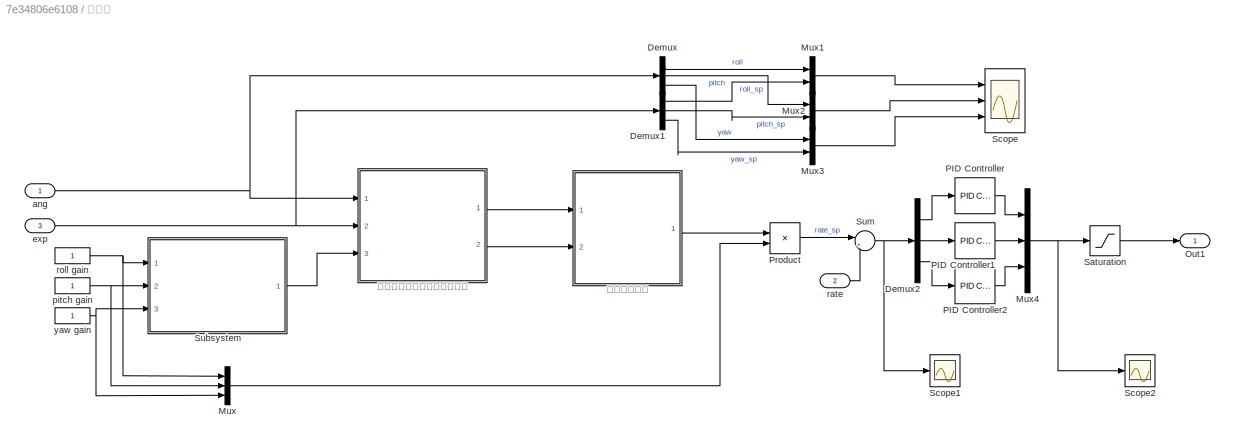
BLOCK [SubSystem] 控制器
  Ports = [3, 1]
  RequestExecContextInheritance = off
BLOCK [Demux] 控制器/Demux
  DisplayOption = bar
  Outputs = 3
  Ports = [1, 3]
BLOCK [Demux] 控制器/Demux1
  DisplayOption = bar
  Outputs = 3
  Ports = [1, 3]
BLOCK [Demux] 控制器/Demux2
  DisplayOption = bar
  Outputs = 3
  Ports = [1, 3]
BLOCK [Mux] 控制器/Mux
  DisplayOption = bar
  Inputs = 3
  Ports = [3, 1]
BLOCK [Mux] 控制器/Mux1
  DisplayOption = bar
  Inputs = 2
  Ports = [2, 1]
BLOCK [Mux] 控制器/Mux2
  DisplayOption = bar
  Inputs = 2
  Ports = [2, 1]
BLOCK [Mux] 控制器/Mux3
  DisplayOption = bar
  Inputs = 2
  Ports = [2, 1]
BLOCK [Mux] 控制器/Mux4
  DisplayOption = bar
  Inputs = 3
  Ports = [3, 1]
BLOCK [Outport] 控制器/Out1
  IconDisplay = Port number
BLOCK [Reference] 控制器/PID Controller  REF=simulink/Continuous/PID Controller
  Ports = [1, 1]
  SourceBlock = simulink/Continuous/PID Controller
  SourceProductBaseCode = SL
  SourceProductName = Simulink
  SourceType = PID 1dof
BLOCK [Reference] 控制器/PID Controller1  REF=simulink/Continuous/PID Controller
  Ports = [1, 1]
  SourceBlock = simulink/Continuous/PID Controller
  SourceProductBaseCode = SL
  SourceProductName = Simulink
  SourceType = PID 1dof
BLOCK [Reference] 控制器/PID Controller2  REF=simulink/Continuous/PID Controller
  Ports = [1, 1]
  SourceBlock = simulink/Continuous/PID Controller
  SourceProductBaseCode = SL
  SourceProductName = Simulink
  SourceType = PID 1dof
BLOCK [Product] 控制器/Product
  InputSameDT = off
  OutDataTypeStr = Inherit: Inherit via internal rule
  Ports = [2, 1]
  RndMeth = Floor
  SaturateOnIntegerOverflow = off
BLOCK [Saturate] 控制器/Saturation
  InputPortMap = u0
  LowerLimit = -1
  Ports = [1, 1]
  UpperLimit = 1
BLOCK [Scope] 控制器/Scope
  Floating = off
  NumInputPorts = 3
  Ports = [3]
  ScopeSpecificationString = Simulink.scopes.TimeScopeBlockCfg('CurrentConfiguration', extmgr.ConfigurationSet(extmgr.Configuration('Core','General UI',true),extmgr.Configuration('Core','Source UI',true),extmgr.Configuration('Sources','WiredSimulink',true,'DataLoggingVariableName','ScopeData18'),extmgr.Configuration('Visuals','Time Domain',true,'SerializedDisplays',{struct('MinYLimReal','-0.000021','MaxYLimReal','0.000014','Y...<+2762ch>
BLOCK [Scope] 控制器/Scope1
  Floating = off
  NumInputPorts = 1
  Ports = [1]
  ScopeSpecificationString = Simulink.scopes.TimeScopeBlockCfg('CurrentConfiguration', extmgr.ConfigurationSet(extmgr.Configuration('Core','General UI',true),extmgr.Configuration('Core','Source UI',true),extmgr.Configuration('Sources','WiredSimulink',true,'DataLoggingVariableName','ScopeData19'),extmgr.Configuration('Visuals','Time Domain',true,'SerializedDisplays',{struct('MinYLimReal','-0.08249','MaxYLimReal','0.34124','YLa...<+1379ch>
BLOCK [Scope] 控制器/Scope2
  Floating = off
  NumInputPorts = 1
  Ports = [1]
  ScopeSpecificationString = Simulink.scopes.TimeScopeBlockCfg('CurrentConfiguration', extmgr.ConfigurationSet(extmgr.Configuration('Core','General UI',true),extmgr.Configuration('Core','Source UI',true),extmgr.Configuration('Sources','WiredSimulink',true,'DataLoggingVariableName','ScopeData20'),extmgr.Configuration('Visuals','Time Domain',true,'SerializedDisplays',{struct('MinYLimReal','-0.05315','MaxYLimReal','0.03911','YLa...<+1410ch>
BLOCK [SubSystem] 控制器/Subsystem
  Ports = [3, 1]
  RequestExecContextInheritance = off
BLOCK [Sum] 控制器/Subsystem/Add
  InputSameDT = off
  OutDataTypeStr = Inherit: Inherit via internal rule
  Ports = [2, 1]
  SaturateOnIntegerOverflow = off
BLOCK [Product] 控制器/Subsystem/Divide
  InputSameDT = off
  Inputs = */
  OutDataTypeStr = Inherit: Inherit via internal rule
  Ports = [2, 1]
  RndMeth = Floor
  SaturateOnIntegerOverflow = off
BLOCK [Gain] 控制器/Subsystem/Gain
  Gain = 0.5
  OutDataTypeStr = Inherit: Inherit via internal rule
  ParamDataTypeStr = Inherit: Inherit via internal rule
  SaturateOnIntegerOverflow = off
BLOCK [Saturate] 控制器/Subsystem/Saturation
  InputPortMap = u0
  LowerLimit = 0
  Ports = [1, 1]
  UpperLimit = 1
BLOCK [Inport] 控制器/Subsystem/pitch_gain 
  IconDisplay = Port number
  Port = 2
BLOCK [Inport] 控制器/Subsystem/roll_gain
  IconDisplay = Port number
BLOCK [Inport] 控制器/Subsystem/yaw_gain
  IconDisplay = Port number
  Port = 3
BLOCK [Outport] 控制器/Subsystem/yaw_w
  IconDisplay = Port number
BLOCK [Sum] 控制器/Sum
  IconShape = round
  InputSameDT = off
  Inputs = |+-
  OutDataTypeStr = Inherit: Inherit via internal rule
  Ports = [2, 1]
  SaturateOnIntegerOverflow = off
BLOCK [Inport] 控制器/ang
  IconDisplay = Port number
BLOCK [Inport] 控制器/exp
  IconDisplay = Port number
  Port = 3
BLOCK [Constant] 控制器/pitch gain
BLOCK [Inport] 控制器/rate
  IconDisplay = Port number
  Port = 2
BLOCK [Constant] 控制器/roll gain
BLOCK [Constant] 控制器/yaw gain
BLOCK [SubSystem] 控制器/求取航向衰减后的期望四元数
  Ports = [3, 2]
  RequestExecContextInheritance = off
BLOCK [SubSystem] 控制器/求取航向衰减后的期望四元数/MATLAB Function
  ErrorFcn = Stateflow.Translate.translate
  PermitHierarchicalResolution = ExplicitOnly
  Ports = [2, 1]
  RequestExecContextInheritance = off
  SFBlockType = MATLAB Function
  TreatAsAtomicUnit = on
BLOCK [Demux] 控制器/求取航向衰减后的期望四元数/MATLAB Function/ Demux 
  Outputs = 1
  Ports = [1, 1]
BLOCK [S-Function] 控制器/求取航向衰减后的期望四元数/MATLAB Function/ SFunction 
  EnableBusSupport = on
  FunctionName = sf_sfun
  PortCounts = [2 2]
  Ports = [2, 2]
  SFcnIsStateOwnerBlock = off
  SFunctionDeploymentMode = off
  Tag = Stateflow S-Function bu01_2018b 73
BLOCK [Terminator] 控制器/求取航向衰减后的期望四元数/MATLAB Function/ Terminator 
BLOCK [Inport] 控制器/求取航向衰减后的期望四元数/MATLAB Function/dst
  IconDisplay = Port number
  Port = 2
BLOCK [Outport] 控制器/求取航向衰减后的期望四元数/MATLAB Function/q
  IconDisplay = Port number
BLOCK [Inport] 控制器/求取航向衰减后的期望四元数/MATLAB Function/src
  IconDisplay = Port number
BLOCK [Reference] 控制器/求取航向衰减后的期望四元数/Quaternion Normalize  REF=sharedutil/Quaternion
Normalize
  Ports = [1, 1]
  SourceBlock = sharedutil/Quaternion\nNormalize
  SourceProductBaseCode = AE
  SourceProductName = Aerospace Blockset
  SourceType = Quaternion Normalize
BLOCK [Inport] 控制器/求取航向衰减后的期望四元数/ang
  IconDisplay = Port number
BLOCK [Inport] 控制器/求取航向衰减后的期望四元数/exp
  IconDisplay = Port number
  Port = 2
BLOCK [Outport] 控制器/求取航向衰减后的期望四元数/q
  IconDisplay = Port number
BLOCK [Outport] 控制器/求取航向衰减后的期望四元数/qd
  IconDisplay = Port number
  Port = 2
BLOCK [Inport] 控制器/求取航向衰减后的期望四元数/yaw_w 
  IconDisplay = Port number
  Port = 3
BLOCK [SubSystem] 控制器/求取航向衰减后的期望四元数/求取只要倾斜的运动的期望四元数
  Ports = [3, 1]
  RequestExecContextInheritance = off
BLOCK [Constant] 控制器/求取航向衰减后的期望四元数/求取只要倾斜的运动的期望四元数/Constant
  Value = 1-1e-5
BLOCK [Demux] 控制器/求取航向衰减后的期望四元数/求取只要倾斜的运动的期望四元数/Demux
  DisplayOption = bar
  Outputs = 2
  Ports = [1, 2]
BLOCK [RelationalOperator] 控制器/求取航向衰减后的期望四元数/求取只要倾斜的运动的期望四元数/GreaterThan
  InputSameDT = off
  Operator = >
  OutDataTypeStr = boolean
  Ports = [2, 1]
  RndMeth = Simplest
BLOCK [RelationalOperator] 控制器/求取航向衰减后的期望四元数/求取只要倾斜的运动的期望四元数/GreaterThan1
  InputSameDT = off
  Operator = >
  OutDataTypeStr = boolean
  Ports = [2, 1]
  RndMeth = Simplest
BLOCK [Logic] 控制器/求取航向衰减后的期望四元数/求取只要倾斜的运动的期望四元数/OR
  AllPortsSameDT = off
  IconShape = distinctive
  Operator = OR
  OutDataTypeStr = boolean
  Ports = [2, 1]
BLOCK [Reference] 控制器/求取航向衰减后的期望四元数/求取只要倾斜的运动的期望四元数/Quaternion Multiplication  REF=aerolibutil/Quaternion
Multiplication
  Ports = [2, 1]
  SourceBlock = aerolibutil/Quaternion\nMultiplication
  SourceProductBaseCode = AE
  SourceProductName = Aerospace Blockset
  SourceType = Quaternion Multiplication
BLOCK [Selector] 控制器/求取航向衰减后的期望四元数/求取只要倾斜的运动的期望四元数/Selector
  IndexOptions = Index vector (dialog)
  Indices = [2 3]
  InputPortWidth = 4
  OutputSizes = 1
  Ports = [1, 1]
BLOCK [Switch] 控制器/求取航向衰减后的期望四元数/求取只要倾斜的运动的期望四元数/Switch
  Criteria = u2 > Threshold
  InputSameDT = off
  SaturateOnIntegerOverflow = off
BLOCK [Inport] 控制器/求取航向衰减后的期望四元数/求取只要倾斜的运动的期望四元数/q
  IconDisplay = Port number
BLOCK [Inport] 控制器/求取航向衰减后的期望四元数/求取只要倾斜的运动的期望四元数/qd
  IconDisplay = Port number
  Port = 3
BLOCK [Inport] 控制器/求取航向衰减后的期望四元数/求取只要倾斜的运动的期望四元数/qd_red
  IconDisplay = Port number
  Port = 2
BLOCK [Outport] 控制器/求取航向衰减后的期望四元数/求取只要倾斜的运动的期望四元数/qd_red_update
  IconDisplay = Port number
BLOCK [SubSystem] 控制器/求取航向衰减后的期望四元数/求取绕机体Z轴旋转的误差四元数
  Ports = [2, 1]
  RequestExecContextInheritance = off
BLOCK [Constant] 控制器/求取航向衰减后的期望四元数/求取绕机体Z轴旋转的误差四元数/Constant1
  Value = 0
BLOCK [Gain] 控制器/求取航向衰减后的期望四元数/求取绕机体Z轴旋转的误差四元数/Gain
  Gain = -1
  OutDataTypeStr = Inherit: Inherit via internal rule
  ParamDataTypeStr = Inherit: Inherit via internal rule
  SaturateOnIntegerOverflow = off
BLOCK [RelationalOperator] 控制器/求取航向衰减后的期望四元数/求取绕机体Z轴旋转的误差四元数/GreaterThan2
  InputSameDT = off
  OutDataTypeStr = boolean
  Ports = [2, 1]
  RndMeth = Simplest
BLOCK [Reference] 控制器/求取航向衰减后的期望四元数/求取绕机体Z轴旋转的误差四元数/Quaternion Inverse  REF=aerolibutil/Quaternion
Inverse
  Ports = [1, 1]
  SourceBlock = aerolibutil/Quaternion\nInverse
  SourceProductBaseCode = AE
  SourceProductName = Aerospace Blockset
  SourceType = Quaternion Inverse
BLOCK [Reference] 控制器/求取航向衰减后的期望四元数/求取绕机体Z轴旋转的误差四元数/Quaternion Multiplication1  REF=aerolibutil/Quaternion
Multiplication
  Ports = [2, 1]
  SourceBlock = aerolibutil/Quaternion\nMultiplication
  SourceProductBaseCode = AE
  SourceProductName = Aerospace Blockset
  SourceType = Quaternion Multiplication
BLOCK [Selector] 控制器/求取航向衰减后的期望四元数/求取绕机体Z轴旋转的误差四元数/Selector1
  IndexOptions = Index vector (dialog)
  Indices = 1
  InputPortWidth = 4
  OutputSizes = 1
  Ports = [1, 1]
BLOCK [Switch] 控制器/求取航向衰减后的期望四元数/求取绕机体Z轴旋转的误差四元数/Switch1
  Criteria = u2 > Threshold
  InputSameDT = off
  SaturateOnIntegerOverflow = off
BLOCK [Outport] 控制器/求取航向衰减后的期望四元数/求取绕机体Z轴旋转的误差四元数/q_mix_sign
  IconDisplay = Port number
BLOCK [Inport] 控制器/求取航向衰减后的期望四元数/求取绕机体Z轴旋转的误差四元数/qd
  IconDisplay = Port number
  Port = 2
BLOCK [Inport] 控制器/求取航向衰减后的期望四元数/求取绕机体Z轴旋转的误差四元数/qd_red_update
  IconDisplay = Port number
BLOCK [SubSystem] 控制器/求取航向衰减后的期望四元数/获取地球系下当前机体系Z轴矢量
  Ports = [1, 2]
  RequestExecContextInheritance = off
BLOCK [Reference] 控制器/求取航向衰减后的期望四元数/获取地球系下当前机体系Z轴矢量/Quaternion Normalize1  REF=sharedutil/Quaternion
Normalize
  Ports = [1, 1]
  SourceBlock = sharedutil/Quaternion\nNormalize
  SourceProductBaseCode = AE
  SourceProductName = Aerospace Blockset
  SourceType = Quaternion Normalize
BLOCK [Reference] 控制器/求取航向衰减后的期望四元数/获取地球系下当前机体系Z轴矢量/Quaternions to Direction Cosine Matrix1  REF=sharedtransform/Quaternions to 
Direction Cosine Matrix
  Ports = [1, 1]
  SourceBlock = sharedtransform/Quaternions to \nDirection Cosine Matrix
  SourceProductBaseCode = AE
  SourceProductName = Aerospace Blockset
  SourceType = Quaternion2DCM
BLOCK [Reference] 控制器/求取航向衰减后的期望四元数/获取地球系下当前机体系Z轴矢量/Rotation Angles to Quaternions  REF=sharedtransform/Rotation Angles to Quaternions
  AttributesFormatString = Rotation Order: %<rotationOrder>
  Ports = [1, 1]
  SourceBlock = sharedtransform/Rotation Angles to Quaternions
  SourceProductBaseCode = AE
  SourceProductName = Aerospace Blockset
  SourceType = Ang2Quat
BLOCK [Inport] 控制器/求取航向衰减后的期望四元数/获取地球系下当前机体系Z轴矢量/ang
  IconDisplay = Port number
BLOCK [Outport] 控制器/求取航向衰减后的期望四元数/获取地球系下当前机体系Z轴矢量/e_z
  IconDisplay = Port number
  Port = 2
BLOCK [Outport] 控制器/求取航向衰减后的期望四元数/获取地球系下当前机体系Z轴矢量/q
  IconDisplay = Port number
BLOCK [Selector] 控制器/求取航向衰减后的期望四元数/获取地球系下当前机体系Z轴矢量/提取机体系Z轴在 导航系下的矢量1
  IndexOptions = Index vector (dialog),Index vector (dialog)
  Indices = 3,[1 2 3]
  InputPortWidth = 3
  NumberOfDimensions = 2
  OutputSizes = 1,1
  Ports = [1, 1]
BLOCK [SubSystem] 控制器/求取航向衰减后的期望四元数/获取地球系下期望机体系Z轴矢量
  Ports = [1, 2]
  RequestExecContextInheritance = off
BLOCK [Reference] 控制器/求取航向衰减后的期望四元数/获取地球系下期望机体系Z轴矢量/Quaternion Normalize  REF=sharedutil/Quaternion
Normalize
  Ports = [1, 1]
  SourceBlock = sharedutil/Quaternion\nNormalize
  SourceProductBaseCode = AE
  SourceProductName = Aerospace Blockset
  SourceType = Quaternion Normalize
BLOCK [Reference] 控制器/求取航向衰减后的期望四元数/获取地球系下期望机体系Z轴矢量/Quaternions to Direction Cosine Matrix  REF=sharedtransform/Quaternions to 
Direction Cosine Matrix
  Ports = [1, 1]
  SourceBlock = sharedtransform/Quaternions to \nDirection Cosine Matrix
  SourceProductBaseCode = AE
  SourceProductName = Aerospace Blockset
  SourceType = Quaternion2DCM
BLOCK [Reference] 控制器/求取航向衰减后的期望四元数/获取地球系下期望机体系Z轴矢量/Rotation Angles to Quaternions1  REF=sharedtransform/Rotation Angles to Quaternions
  AttributesFormatString = Rotation Order: %<rotationOrder>
  Ports = [1, 1]
  SourceBlock = sharedtransform/Rotation Angles to Quaternions
  SourceProductBaseCode = AE
  SourceProductName = Aerospace Blockset
  SourceType = Ang2Quat
BLOCK [Outport] 控制器/求取航向衰减后的期望四元数/获取地球系下期望机体系Z轴矢量/e_z_d
  IconDisplay = Port number
BLOCK [Inport] 控制器/求取航向衰减后的期望四元数/获取地球系下期望机体系Z轴矢量/exp
  IconDisplay = Port number
BLOCK [Outport] 控制器/求取航向衰减后的期望四元数/获取地球系下期望机体系Z轴矢量/qd 
  IconDisplay = Port number
  Port = 2
BLOCK [Selector] 控制器/求取航向衰减后的期望四元数/获取地球系下期望机体系Z轴矢量/提取机体系Z轴在 导航系下的矢量
  IndexOptions = Index vector (dialog),Index vector (dialog)
  Indices = 3,[1 2 3]
  InputPortWidth = 3
  NumberOfDimensions = 2
  OutputSizes = 1,1
  Ports = [1, 1]
BLOCK [SubSystem] 控制器/求取航向衰减后的期望四元数/计算航向衰减后的期望四元数
  Ports = [3, 1]
  RequestExecContextInheritance = off
BLOCK [Trigonometry] 控制器/求取航向衰减后的期望四元数/计算航向衰减后的期望四元数/Acos
  Operator = acos
  Ports = [1, 1]
BLOCK [Trigonometry] 控制器/求取航向衰减后的期望四元数/计算航向衰减后的期望四元数/Acos1
  Operator = asin
  Ports = [1, 1]
BLOCK [Constant] 控制器/求取航向衰减后的期望四元数/计算航向衰减后的期望四元数/Constant3
  Value = 0
BLOCK [Trigonometry] 控制器/求取航向衰减后的期望四元数/计算航向衰减后的期望四元数/Cos
  Operator = cos
  Ports = [1, 1]
BLOCK [Trigonometry] 控制器/求取航向衰减后的期望四元数/计算航向衰减后的期望四元数/Cos1
  Ports = [1, 1]
BLOCK [Demux] 控制器/求取航向衰减后的期望四元数/计算航向衰减后的期望四元数/Demux1
  DisplayOption = bar
  Outputs = 2
  Ports = [1, 2]
BLOCK [Mux] 控制器/求取航向衰减后的期望四元数/计算航向衰减后的期望四元数/Mux
  DisplayOption = bar
  Ports = [4, 1]
BLOCK [Product] 控制器/求取航向衰减后的期望四元数/计算航向衰减后的期望四元数/Product
  InputSameDT = off
  OutDataTypeStr = Inherit: Inherit via internal rule
  Ports = [2, 1]
  RndMeth = Floor
  SaturateOnIntegerOverflow = off
BLOCK [Product] 控制器/求取航向衰减后的期望四元数/计算航向衰减后的期望四元数/Product1
  InputSameDT = off
  OutDataTypeStr = Inherit: Inherit via internal rule
  Ports = [2, 1]
  RndMeth = Floor
  SaturateOnIntegerOverflow = off
BLOCK [Reference] 控制器/求取航向衰减后的期望四元数/计算航向衰减后的期望四元数/Quaternion Multiplication2  REF=aerolibutil/Quaternion
Multiplication
  Ports = [2, 1]
  SourceBlock = aerolibutil/Quaternion\nMultiplication
  SourceProductBaseCode = AE
  SourceProductName = Aerospace Blockset
  SourceType = Quaternion Multiplication
BLOCK [Saturate] 控制器/求取航向衰减后的期望四元数/计算航向衰减后的期望四元数/Saturation
  InputPortMap = u0
  LowerLimit = -1
  Ports = [1, 1]
  UpperLimit = 1
BLOCK [Selector] 控制器/求取航向衰减后的期望四元数/计算航向衰减后的期望四元数/Selector2
  IndexOptions = Index vector (dialog)
  Indices = [1 4]
  InputPortWidth = 4
  OutputSizes = 1
  Ports = [1, 1]
BLOCK [Inport] 控制器/求取航向衰减后的期望四元数/计算航向衰减后的期望四元数/q_mix_sign
  IconDisplay = Port number
  Port = 3
BLOCK [Inport] 控制器/求取航向衰减后的期望四元数/计算航向衰减后的期望四元数/q_red_update
  IconDisplay = Port number
  Port = 2
BLOCK [Outport] 控制器/求取航向衰减后的期望四元数/计算航向衰减后的期望四元数/qd
  IconDisplay = Port number
BLOCK [Inport] 控制器/求取航向衰减后的期望四元数/计算航向衰减后的期望四元数/yaw_w
  IconDisplay = Port number
BLOCK [SubSystem] 控制器/求取角度误差
  Ports = [2, 1]
  RequestExecContextInheritance = off
BLOCK [Constant] 控制器/求取角度误差/Constant
  Value = 0
BLOCK [Gain] 控制器/求取角度误差/Gain
  Gain = -1
  OutDataTypeStr = Inherit: Inherit via internal rule
  ParamDataTypeStr = Inherit: Inherit via internal rule
  SaturateOnIntegerOverflow = off
BLOCK [Gain] 控制器/求取角度误差/Gain1
  Gain = 2
  OutDataTypeStr = Inherit: Inherit via internal rule
  ParamDataTypeStr = Inherit: Inherit via internal rule
  SaturateOnIntegerOverflow = off
BLOCK [RelationalOperator] 控制器/求取角度误差/GreaterThanOrEqual
  InputSameDT = off
  OutDataTypeStr = boolean
  Ports = [2, 1]
  RndMeth = Simplest
BLOCK [Reference] 控制器/求取角度误差/Quaternion Inverse  REF=aerolibutil/Quaternion
Inverse
  Ports = [1, 1]
  SourceBlock = aerolibutil/Quaternion\nInverse
  SourceProductBaseCode = AE
  SourceProductName = Aerospace Blockset
  SourceType = Quaternion Inverse
BLOCK [Reference] 控制器/求取角度误差/Quaternion Multiplication  REF=aerolibutil/Quaternion
Multiplication
  Ports = [2, 1]
  SourceBlock = aerolibutil/Quaternion\nMultiplication
  SourceProductBaseCode = AE
  SourceProductName = Aerospace Blockset
  SourceType = Quaternion Multiplication
BLOCK [Selector] 控制器/求取角度误差/Selector
  IndexOptions = Index vector (dialog)
  Indices = 1
  InputPortWidth = 4
  OutputSizes = 1
  Ports = [1, 1]
BLOCK [Selector] 控制器/求取角度误差/Selector1
  IndexOptions = Index vector (dialog)
  Indices = [2 3 4]
  InputPortWidth = 4
  OutputSizes = 1
  Ports = [1, 1]
BLOCK [Switch] 控制器/求取角度误差/Switch
  Criteria = u2 > Threshold
  InputSameDT = off
  SaturateOnIntegerOverflow = off
BLOCK [Inport] 控制器/求取角度误差/q
  IconDisplay = Port number
BLOCK [Inport] 控制器/求取角度误差/qd
  IconDisplay = Port number
  Port = 2
BLOCK [Outport] 控制器/求取角度误差/rpy_err
  IconDisplay = Port number
BLOCK [SubSystem] 混控器
  Ports = [1, 1]
  RequestExecContextInheritance = off
BLOCK [Bias] 混控器/Bias
  Bias = [0 0.1789 0 0]
  SaturateOnIntegerOverflow = off
BLOCK [Bias] 混控器/Bias3
  Bias = [0 0.1789 0 0]
  SaturateOnIntegerOverflow = off
BLOCK [Demux] 混控器/Demux
  DisplayOption = bar
  Outputs = 8
  Ports = [1, 8]
BLOCK [Gain] 混控器/Gain
  Gain = [-1 0.7808  1 0.7808]
  OutDataTypeStr = Inherit: Inherit via internal rule
  ParamDataTypeStr = Inherit: Inherit via internal rule
  SaturateOnIntegerOverflow = off
BLOCK [Gain] 混控器/Gain1
  Gain = [-1 0  -1 1]
  OutDataTypeStr = Inherit: Inherit via internal rule
  ParamDataTypeStr = Inherit: Inherit via internal rule
  SaturateOnIntegerOverflow = off
BLOCK [Gain] 混控器/Gain2
  Gain = [-1 0 0 1]
  OutDataTypeStr = Inherit: Inherit via internal rule
  ParamDataTypeStr = Inherit: Inherit via internal rule
  SaturateOnIntegerOverflow = off
BLOCK [Gain] 混控器/Gain3
  Gain = [-1 0 0 1]
  OutDataTypeStr = Inherit: Inherit via internal rule
  ParamDataTypeStr = Inherit: Inherit via internal rule
  SaturateOnIntegerOverflow = off
BLOCK [Gain] 混控器/Gain4
  Gain = [-1 0 0 1]
  OutDataTypeStr = Inherit: Inherit via internal rule
  ParamDataTypeStr = Inherit: Inherit via internal rule
  SaturateOnIntegerOverflow = off
BLOCK [Gain] 混控器/Gain5
  Gain = [-1 0 0 1]
  OutDataTypeStr = Inherit: Inherit via internal rule
  ParamDataTypeStr = Inherit: Inherit via internal rule
  SaturateOnIntegerOverflow = off
BLOCK [Gain] 混控器/Gain6
  Gain = [1 0  1 1]
  OutDataTypeStr = Inherit: Inherit via internal rule
  ParamDataTypeStr = Inherit: Inherit via internal rule
  SaturateOnIntegerOverflow = off
BLOCK [Gain] 混控器/Gain8
  Gain = [1 0.7808  -1 0.7808]
  OutDataTypeStr = Inherit: Inherit via internal rule
  ParamDataTypeStr = Inherit: Inherit via internal rule
  SaturateOnIntegerOverflow = off
BLOCK [Inport] 混控器/In1
  IconDisplay = Port number
BLOCK [Mux] 混控器/Mux
  DisplayOption = bar
  Inputs = 8
  Ports = [8, 1]
BLOCK [Outport] 混控器/Out1
  IconDisplay = Port number
BLOCK [Saturate] 混控器/Saturation
  InputPortMap = u0
  LowerLimit = 0
  Ports = [1, 1]
  UpperLimit = 1
BLOCK [Scope] 混控器/Scope
  Floating = off
  NumInputPorts = 1
  Ports = [1]
  ScopeSpecificationString = Simulink.scopes.TimeScopeBlockCfg('CurrentConfiguration', extmgr.ConfigurationSet(extmgr.Configuration('Core','General UI',true),extmgr.Configuration('Core','Source UI',true),extmgr.Configuration('Sources','WiredSimulink',true,'DataLoggingVariableName','ScopeData21'),extmgr.Configuration('Visuals','Time Domain',true,'SerializedDisplays',{struct('MinYLimReal','-0.11191','MaxYLimReal','0.56799','YLa...<+1412ch>
BLOCK [Scope] 混控器/Scope1
  Floating = off
  NumInputPorts = 8
  Ports = [8]
  ScopeSpecificationString = Simulink.scopes.TimeScopeBlockCfg('CurrentConfiguration', extmgr.ConfigurationSet(extmgr.Configuration('Core','General UI',true),extmgr.Configuration('Core','Source UI',true),extmgr.Configuration('Sources','WiredSimulink',true,'DataLoggingVariableName','ScopeData22'),extmgr.Configuration('Visuals','Time Domain',true,'SerializedDisplays',{struct('MinYLimReal','0.51799','MaxYLimReal','0.575','YLabel...<+6247ch>
BLOCK [Sum] 混控器/Sum of Elements
  InputSameDT = off
  Inputs = +
  OutDataTypeStr = Inherit: Inherit via internal rule
  Ports = [1, 1]
  SaturateOnIntegerOverflow = off
BLOCK [Sum] 混控器/Sum of Elements1
  InputSameDT = off
  Inputs = +
  OutDataTypeStr = Inherit: Inherit via internal rule
  Ports = [1, 1]
  SaturateOnIntegerOverflow = off
BLOCK [Sum] 混控器/Sum of Elements2
  InputSameDT = off
  Inputs = +
  OutDataTypeStr = Inherit: Inherit via internal rule
  Ports = [1, 1]
  SaturateOnIntegerOverflow = off
BLOCK [Sum] 混控器/Sum of Elements3
  InputSameDT = off
  Inputs = +
  OutDataTypeStr = Inherit: Inherit via internal rule
  Ports = [1, 1]
  SaturateOnIntegerOverflow = off
BLOCK [Sum] 混控器/Sum of Elements4
  InputSameDT = off
  Inputs = +
  OutDataTypeStr = Inherit: Inherit via internal rule
  Ports = [1, 1]
  SaturateOnIntegerOverflow = off
BLOCK [Sum] 混控器/Sum of Elements5
  InputSameDT = off
  Inputs = +
  OutDataTypeStr = Inherit: Inherit via internal rule
  Ports = [1, 1]
  SaturateOnIntegerOverflow = off
BLOCK [Sum] 混控器/Sum of Elements6
  InputSameDT = off
  Inputs = +
  OutDataTypeStr = Inherit: Inherit via internal rule
  Ports = [1, 1]
  SaturateOnIntegerOverflow = off
BLOCK [Sum] 混控器/Sum of Elements7
  InputSameDT = off
  Inputs = +
  OutDataTypeStr = Inherit: Inherit via internal rule
  Ports = [1, 1]
  SaturateOnIntegerOverflow = off
ANNOTATION 控制器/Subsystem: 将比例增益当做系统时间常数，用其比例关系作为控制器衰减比例
ANNOTATION 控制器/求取航向衰减后的期望四元数/求取只要倾斜的运动的期望四元数: 没有航向旋转的情况
LINE Demux1:1 -> X_e:1
LINE Demux1:2 -> X_e:2
LINE Demux1:3 -> X_e:3
LINE Demux2:1 -> A_e:1
LINE Demux2:2 -> A_e:2
LINE Demux2:3 -> A_e:3
LINE Demux3:1 -> T_b:1
LINE Demux3:2 -> T_b:2
LINE Demux3:3 -> T_b:3
LINE Demux4:1 -> Mx:1
LINE Demux4:2 -> Mx:2
LINE Demux4:3 -> Mx:3
LINE Demux5:1 -> Ax1:1
LINE Demux5:2 -> Ay1:1
LINE Demux5:3 -> Az1:1
LINE Demux:1 -> V_e:1
LINE Demux:2 -> V_e:2
LINE Demux:3 -> V_e:3
LINE From1:1 -> Demux1:1
LINE From2:1 -> Product:2
LINE From3:1 -> Transpose:1
LINE From4:1 -> Demux3:1
LINE From5:1 -> Demux4:1
LINE From6:1 -> Demux5:1
LINE From:1 -> Demux:1
LINE Mux1:1 -> 控制器:3
LINE Mux:1 -> 混控器:1
LINE Product:1 -> Demux2:1
LINE Transpose:1 -> Product:1
LINE bu01_model/6DOF (Quaternion):1 -> bu01_model/Ve:1
LINE bu01_model/6DOF (Quaternion):2 -> bu01_model/Xe:1
LINE bu01_model/6DOF (Quaternion):3 -> bu01_model/ang:1
NET bu01_model/6DOF (Quaternion):4 -> bu01_model/DCM_e2b:1, bu01_model/推力方程:2
LINE bu01_model/6DOF (Quaternion):5 -> bu01_model/Vb:1
LINE bu01_model/6DOF (Quaternion):6 -> bu01_model/Wb:1
LINE bu01_model/6DOF (Quaternion):7 -> bu01_model/dw//dt:1
LINE bu01_model/6DOF (Quaternion):8 -> bu01_model/Abb:1
LINE bu01_model/6DOF (Quaternion):9 -> bu01_model/Abe:1
NET bu01_model/In1:1 -> bu01_model/力矩方程:1, bu01_model/推力方程:1
LINE bu01_model/力矩方程/Add1:1 -> bu01_model/力矩方程/Subtract1:2
LINE bu01_model/力矩方程/Add2:1 -> bu01_model/力矩方程/Subtract1:1
LINE bu01_model/力矩方程/Add3:1 -> bu01_model/力矩方程/Subtract:1
LINE bu01_model/力矩方程/Add4:1 -> bu01_model/力矩方程/Subtract:2
NET bu01_model/力矩方程/Add5:1 -> bu01_model/力矩方程/Scope1:2, bu01_model/力矩方程/Subtract2:2
NET bu01_model/力矩方程/Add6:1 -> bu01_model/力矩方程/Add7:2, bu01_model/力矩方程/Scope1:3
LINE bu01_model/力矩方程/Add7:1 -> bu01_model/力矩方程/Subtract2:1
NET bu01_model/力矩方程/Add:1 -> bu01_model/力矩方程/Add7:1, bu01_model/力矩方程/Scope1:1
LINE bu01_model/力矩方程/Demux1:1 -> bu01_model/力矩方程/Add2:1
LINE bu01_model/力矩方程/Demux1:2 -> bu01_model/力矩方程/Add3:1
LINE bu01_model/力矩方程/Demux2:1 -> bu01_model/力矩方程/Add2:2
LINE bu01_model/力矩方程/Demux2:2 -> bu01_model/力矩方程/Add3:2
LINE bu01_model/力矩方程/Demux3:1 -> bu01_model/力矩方程/Add2:3
LINE bu01_model/力矩方程/Demux3:2 -> bu01_model/力矩方程/Add4:1
LINE bu01_model/力矩方程/Demux4:1 -> bu01_model/力矩方程/Add2:4
LINE bu01_model/力矩方程/Demux4:2 -> bu01_model/力矩方程/Add4:2
LINE bu01_model/力矩方程/Demux5:1 -> bu01_model/力矩方程/Add1:1
LINE bu01_model/力矩方程/Demux5:2 -> bu01_model/力矩方程/Add4:3
LINE bu01_model/力矩方程/Demux6:1 -> bu01_model/力矩方程/Add1:2
LINE bu01_model/力矩方程/Demux6:2 -> bu01_model/力矩方程/Add4:4
LINE bu01_model/力矩方程/Demux7:1 -> bu01_model/力矩方程/Add1:3
LINE bu01_model/力矩方程/Demux7:2 -> bu01_model/力矩方程/Add3:3
LINE bu01_model/力矩方程/Demux8:1 -> bu01_model/力矩方程/Add1:4
LINE bu01_model/力矩方程/Demux8:2 -> bu01_model/力矩方程/Add3:4
NET bu01_model/力矩方程/Demux:1 -> bu01_model/力矩方程/扭力模型:1, bu01_model/力矩方程/推力模型:1
NET bu01_model/力矩方程/Demux:2 -> bu01_model/力矩方程/扭力模型:2, bu01_model/力矩方程/推力模型:2
NET bu01_model/力矩方程/Demux:3 -> bu01_model/力矩方程/扭力模型:3, bu01_model/力矩方程/推力模型:3
NET bu01_model/力矩方程/Demux:4 -> bu01_model/力矩方程/扭力模型:4, bu01_model/力矩方程/推力模型:4
NET bu01_model/力矩方程/Demux:5 -> bu01_model/力矩方程/扭力模型:5, bu01_model/力矩方程/推力模型:5
NET bu01_model/力矩方程/Demux:6 -> bu01_model/力矩方程/扭力模型:6, bu01_model/力矩方程/推力模型:6
NET bu01_model/力矩方程/Demux:7 -> bu01_model/力矩方程/扭力模型:7, bu01_model/力矩方程/推力模型:7
NET bu01_model/力矩方程/Demux:8 -> bu01_model/力矩方程/扭力模型:8, bu01_model/力矩方程/推力模型:8
LINE bu01_model/力矩方程/Gain10:1 -> bu01_model/力矩方程/Add6:1
LINE bu01_model/力矩方程/Gain11:1 -> bu01_model/力矩方程/Add6:2
LINE bu01_model/力矩方程/Gain12:1 -> bu01_model/力矩方程/Add6:3
LINE bu01_model/力矩方程/Gain13:1 -> bu01_model/力矩方程/Add6:4
LINE bu01_model/力矩方程/Gain14:1 -> bu01_model/力矩方程/Add:2
LINE bu01_model/力矩方程/Gain15:1 -> bu01_model/力矩方程/Add5:2
LINE bu01_model/力矩方程/Gain16:1 -> bu01_model/力矩方程/Mux:2
LINE bu01_model/力矩方程/Gain17:1 -> bu01_model/力矩方程/Mux:1
LINE bu01_model/力矩方程/Gain1:1 -> bu01_model/力矩方程/Demux8:1
LINE bu01_model/力矩方程/Gain2:1 -> bu01_model/力矩方程/Demux3:1
LINE bu01_model/力矩方程/Gain3:1 -> bu01_model/力矩方程/Demux4:1
LINE bu01_model/力矩方程/Gain4:1 -> bu01_model/力矩方程/Demux5:1
LINE bu01_model/力矩方程/Gain5:1 -> bu01_model/力矩方程/Demux6:1
LINE bu01_model/力矩方程/Gain6:1 -> bu01_model/力矩方程/Add:1
LINE bu01_model/力矩方程/Gain7:1 -> bu01_model/力矩方程/Demux7:1
LINE bu01_model/力矩方程/Gain8:1 -> bu01_model/力矩方程/Demux2:1
LINE bu01_model/力矩方程/Gain9:1 -> bu01_model/力矩方程/Add5:1
LINE bu01_model/力矩方程/Gain:1 -> bu01_model/力矩方程/Demux1:1
LINE bu01_model/力矩方程/In1:1 -> bu01_model/力矩方程/Demux:1
LINE bu01_model/力矩方程/Mux:1 -> bu01_model/力矩方程/Out1:1
LINE bu01_model/力矩方程/Subtract1:1 -> bu01_model/力矩方程/Gain17:1
LINE bu01_model/力矩方程/Subtract2:1 -> bu01_model/力矩方程/Mux:3
LINE bu01_model/力矩方程/Subtract:1 -> bu01_model/力矩方程/Gain16:1
LINE bu01_model/力矩方程/扭力模型/In1:1 -> bu01_model/力矩方程/扭力模型/螺旋桨模型1:1
LINE bu01_model/力矩方程/扭力模型/In2:1 -> bu01_model/力矩方程/扭力模型/螺旋桨模型2:1
LINE bu01_model/力矩方程/扭力模型/In3:1 -> bu01_model/力矩方程/扭力模型/涵道模型模型1:1
LINE bu01_model/力矩方程/扭力模型/In4:1 -> bu01_model/力矩方程/扭力模型/涵道模型模型2:1
LINE bu01_model/力矩方程/扭力模型/In5:1 -> bu01_model/力矩方程/扭力模型/涵道模型模型3:1
LINE bu01_model/力矩方程/扭力模型/In6:1 -> bu01_model/力矩方程/扭力模型/涵道模型模型4:1
LINE bu01_model/力矩方程/扭力模型/In7:1 -> bu01_model/力矩方程/扭力模型/螺旋桨模型3:1
LINE bu01_model/力矩方程/扭力模型/In8:1 -> bu01_model/力矩方程/扭力模型/螺旋桨模型4:1
LINE bu01_model/力矩方程/扭力模型/涵道模型模型1/Add:1 -> bu01_model/力矩方程/扭力模型/涵道模型模型1/Gain2:1
LINE bu01_model/力矩方程/扭力模型/涵道模型模型1/Constant1:1 -> bu01_model/力矩方程/扭力模型/涵道模型模型1/MATLAB Function:3
LINE bu01_model/力矩方程/扭力模型/涵道模型模型1/Constant2:1 -> bu01_model/力矩方程/扭力模型/涵道模型模型1/MATLAB Function1:2
LINE bu01_model/力矩方程/扭力模型/涵道模型模型1/Constant3:1 -> bu01_model/力矩方程/扭力模型/涵道模型模型1/MATLAB Function1:3
LINE bu01_model/力矩方程/扭力模型/涵道模型模型1/Constant:1 -> bu01_model/力矩方程/扭力模型/涵道模型模型1/MATLAB Function:2
LINE bu01_model/力矩方程/扭力模型/涵道模型模型1/Gain1:1 -> bu01_model/力矩方程/扭力模型/涵道模型模型1/Add:2
LINE bu01_model/力矩方程/扭力模型/涵道模型模型1/Gain2:1 -> bu01_model/力矩方程/扭力模型/涵道模型模型1/Out1:1
LINE bu01_model/力矩方程/扭力模型/涵道模型模型1/Gain:1 -> bu01_model/力矩方程/扭力模型/涵道模型模型1/Add:1
LINE bu01_model/力矩方程/扭力模型/涵道模型模型1/MATLAB Function1:1 -> bu01_model/力矩方程/扭力模型/涵道模型模型1/Gain1:1
LINE bu01_model/力矩方程/扭力模型/涵道模型模型1/MATLAB Function:1 -> bu01_model/力矩方程/扭力模型/涵道模型模型1/Gain:1
NET bu01_model/力矩方程/扭力模型/涵道模型模型1/u1:1 -> bu01_model/力矩方程/扭力模型/涵道模型模型1/MATLAB Function1:1, bu01_model/力矩方程/扭力模型/涵道模型模型1/MATLAB Function:1
LINE bu01_model/力矩方程/扭力模型/涵道模型模型1:1 -> bu01_model/力矩方程/扭力模型/Out3:1
LINE bu01_model/力矩方程/扭力模型/涵道模型模型2/Add:1 -> bu01_model/力矩方程/扭力模型/涵道模型模型2/Gain2:1
LINE bu01_model/力矩方程/扭力模型/涵道模型模型2/Constant1:1 -> bu01_model/力矩方程/扭力模型/涵道模型模型2/MATLAB Function:3
LINE bu01_model/力矩方程/扭力模型/涵道模型模型2/Constant2:1 -> bu01_model/力矩方程/扭力模型/涵道模型模型2/MATLAB Function1:2
LINE bu01_model/力矩方程/扭力模型/涵道模型模型2/Constant3:1 -> bu01_model/力矩方程/扭力模型/涵道模型模型2/MATLAB Function1:3
LINE bu01_model/力矩方程/扭力模型/涵道模型模型2/Constant:1 -> bu01_model/力矩方程/扭力模型/涵道模型模型2/MATLAB Function:2
LINE bu01_model/力矩方程/扭力模型/涵道模型模型2/Gain1:1 -> bu01_model/力矩方程/扭力模型/涵道模型模型2/Add:2
LINE bu01_model/力矩方程/扭力模型/涵道模型模型2/Gain2:1 -> bu01_model/力矩方程/扭力模型/涵道模型模型2/Out1:1
LINE bu01_model/力矩方程/扭力模型/涵道模型模型2/Gain:1 -> bu01_model/力矩方程/扭力模型/涵道模型模型2/Add:1
LINE bu01_model/力矩方程/扭力模型/涵道模型模型2/MATLAB Function1:1 -> bu01_model/力矩方程/扭力模型/涵道模型模型2/Gain1:1
LINE bu01_model/力矩方程/扭力模型/涵道模型模型2/MATLAB Function:1 -> bu01_model/力矩方程/扭力模型/涵道模型模型2/Gain:1
NET bu01_model/力矩方程/扭力模型/涵道模型模型2/u1:1 -> bu01_model/力矩方程/扭力模型/涵道模型模型2/MATLAB Function1:1, bu01_model/力矩方程/扭力模型/涵道模型模型2/MATLAB Function:1
LINE bu01_model/力矩方程/扭力模型/涵道模型模型2:1 -> bu01_model/力矩方程/扭力模型/Out4:1
LINE bu01_model/力矩方程/扭力模型/涵道模型模型3/Add:1 -> bu01_model/力矩方程/扭力模型/涵道模型模型3/Gain2:1
LINE bu01_model/力矩方程/扭力模型/涵道模型模型3/Constant1:1 -> bu01_model/力矩方程/扭力模型/涵道模型模型3/MATLAB Function:3
LINE bu01_model/力矩方程/扭力模型/涵道模型模型3/Constant2:1 -> bu01_model/力矩方程/扭力模型/涵道模型模型3/MATLAB Function1:2
LINE bu01_model/力矩方程/扭力模型/涵道模型模型3/Constant3:1 -> bu01_model/力矩方程/扭力模型/涵道模型模型3/MATLAB Function1:3
LINE bu01_model/力矩方程/扭力模型/涵道模型模型3/Constant:1 -> bu01_model/力矩方程/扭力模型/涵道模型模型3/MATLAB Function:2
LINE bu01_model/力矩方程/扭力模型/涵道模型模型3/Gain1:1 -> bu01_model/力矩方程/扭力模型/涵道模型模型3/Add:2
LINE bu01_model/力矩方程/扭力模型/涵道模型模型3/Gain2:1 -> bu01_model/力矩方程/扭力模型/涵道模型模型3/Out1:1
LINE bu01_model/力矩方程/扭力模型/涵道模型模型3/Gain:1 -> bu01_model/力矩方程/扭力模型/涵道模型模型3/Add:1
LINE bu01_model/力矩方程/扭力模型/涵道模型模型3/MATLAB Function1:1 -> bu01_model/力矩方程/扭力模型/涵道模型模型3/Gain1:1
LINE bu01_model/力矩方程/扭力模型/涵道模型模型3/MATLAB Function:1 -> bu01_model/力矩方程/扭力模型/涵道模型模型3/Gain:1
NET bu01_model/力矩方程/扭力模型/涵道模型模型3/u1:1 -> bu01_model/力矩方程/扭力模型/涵道模型模型3/MATLAB Function1:1, bu01_model/力矩方程/扭力模型/涵道模型模型3/MATLAB Function:1
LINE bu01_model/力矩方程/扭力模型/涵道模型模型3:1 -> bu01_model/力矩方程/扭力模型/Out5:1
LINE bu01_model/力矩方程/扭力模型/涵道模型模型4/Add:1 -> bu01_model/力矩方程/扭力模型/涵道模型模型4/Gain2:1
LINE bu01_model/力矩方程/扭力模型/涵道模型模型4/Constant1:1 -> bu01_model/力矩方程/扭力模型/涵道模型模型4/MATLAB Function:3
LINE bu01_model/力矩方程/扭力模型/涵道模型模型4/Constant2:1 -> bu01_model/力矩方程/扭力模型/涵道模型模型4/MATLAB Function1:2
LINE bu01_model/力矩方程/扭力模型/涵道模型模型4/Constant3:1 -> bu01_model/力矩方程/扭力模型/涵道模型模型4/MATLAB Function1:3
LINE bu01_model/力矩方程/扭力模型/涵道模型模型4/Constant:1 -> bu01_model/力矩方程/扭力模型/涵道模型模型4/MATLAB Function:2
LINE bu01_model/力矩方程/扭力模型/涵道模型模型4/Gain1:1 -> bu01_model/力矩方程/扭力模型/涵道模型模型4/Add:2
LINE bu01_model/力矩方程/扭力模型/涵道模型模型4/Gain2:1 -> bu01_model/力矩方程/扭力模型/涵道模型模型4/Out1:1
LINE bu01_model/力矩方程/扭力模型/涵道模型模型4/Gain:1 -> bu01_model/力矩方程/扭力模型/涵道模型模型4/Add:1
LINE bu01_model/力矩方程/扭力模型/涵道模型模型4/MATLAB Function1:1 -> bu01_model/力矩方程/扭力模型/涵道模型模型4/Gain1:1
LINE bu01_model/力矩方程/扭力模型/涵道模型模型4/MATLAB Function:1 -> bu01_model/力矩方程/扭力模型/涵道模型模型4/Gain:1
NET bu01_model/力矩方程/扭力模型/涵道模型模型4/u1:1 -> bu01_model/力矩方程/扭力模型/涵道模型模型4/MATLAB Function1:1, bu01_model/力矩方程/扭力模型/涵道模型模型4/MATLAB Function:1
LINE bu01_model/力矩方程/扭力模型/涵道模型模型4:1 -> bu01_model/力矩方程/扭力模型/Out6:1
LINE bu01_model/力矩方程/扭力模型/螺旋桨模型1/Add:1 -> bu01_model/力矩方程/扭力模型/螺旋桨模型1/Gain4:1
LINE bu01_model/力矩方程/扭力模型/螺旋桨模型1/Constant1:1 -> bu01_model/力矩方程/扭力模型/螺旋桨模型1/MATLAB Function:3
LINE bu01_model/力矩方程/扭力模型/螺旋桨模型1/Constant2:1 -> bu01_model/力矩方程/扭力模型/螺旋桨模型1/MATLAB Function1:2
LINE bu01_model/力矩方程/扭力模型/螺旋桨模型1/Constant3:1 -> bu01_model/力矩方程/扭力模型/螺旋桨模型1/MATLAB Function1:3
LINE bu01_model/力矩方程/扭力模型/螺旋桨模型1/Constant4:1 -> bu01_model/力矩方程/扭力模型/螺旋桨模型1/MATLAB Function2:2
LINE bu01_model/力矩方程/扭力模型/螺旋桨模型1/Constant5:1 -> bu01_model/力矩方程/扭力模型/螺旋桨模型1/MATLAB Function2:3
LINE bu01_model/力矩方程/扭力模型/螺旋桨模型1/Constant6:1 -> bu01_model/力矩方程/扭力模型/螺旋桨模型1/MATLAB Function3:2
LINE bu01_model/力矩方程/扭力模型/螺旋桨模型1/Constant7:1 -> bu01_model/力矩方程/扭力模型/螺旋桨模型1/MATLAB Function3:3
LINE bu01_model/力矩方程/扭力模型/螺旋桨模型1/Constant:1 -> bu01_model/力矩方程/扭力模型/螺旋桨模型1/MATLAB Function:2
LINE bu01_model/力矩方程/扭力模型/螺旋桨模型1/Gain1:1 -> bu01_model/力矩方程/扭力模型/螺旋桨模型1/Add:2
LINE bu01_model/力矩方程/扭力模型/螺旋桨模型1/Gain2:1 -> bu01_model/力矩方程/扭力模型/螺旋桨模型1/Add:3
LINE bu01_model/力矩方程/扭力模型/螺旋桨模型1/Gain3:1 -> bu01_model/力矩方程/扭力模型/螺旋桨模型1/Add:4
LINE bu01_model/力矩方程/扭力模型/螺旋桨模型1/Gain4:1 -> bu01_model/力矩方程/扭力模型/螺旋桨模型1/Out1:1
LINE bu01_model/力矩方程/扭力模型/螺旋桨模型1/Gain:1 -> bu01_model/力矩方程/扭力模型/螺旋桨模型1/Add:1
LINE bu01_model/力矩方程/扭力模型/螺旋桨模型1/MATLAB Function1:1 -> bu01_model/力矩方程/扭力模型/螺旋桨模型1/Gain1:1
LINE bu01_model/力矩方程/扭力模型/螺旋桨模型1/MATLAB Function2:1 -> bu01_model/力矩方程/扭力模型/螺旋桨模型1/Gain2:1
LINE bu01_model/力矩方程/扭力模型/螺旋桨模型1/MATLAB Function3:1 -> bu01_model/力矩方程/扭力模型/螺旋桨模型1/Gain3:1
LINE bu01_model/力矩方程/扭力模型/螺旋桨模型1/MATLAB Function:1 -> bu01_model/力矩方程/扭力模型/螺旋桨模型1/Gain:1
NET bu01_model/力矩方程/扭力模型/螺旋桨模型1/u1:1 -> bu01_model/力矩方程/扭力模型/螺旋桨模型1/MATLAB Function1:1, bu01_model/力矩方程/扭力模型/螺旋桨模型1/MATLAB Function2:1, bu01_model/力矩方程/扭力模型/螺旋桨模型1/MATLAB Function3:1, bu01_model/力矩方程/扭力模型/螺旋桨模型1/MATLAB Function:1
LINE bu01_model/力矩方程/扭力模型/螺旋桨模型1:1 -> bu01_model/力矩方程/扭力模型/Out1:1
LINE bu01_model/力矩方程/扭力模型/螺旋桨模型2/Add:1 -> bu01_model/力矩方程/扭力模型/螺旋桨模型2/Gain4:1
LINE bu01_model/力矩方程/扭力模型/螺旋桨模型2/Constant1:1 -> bu01_model/力矩方程/扭力模型/螺旋桨模型2/MATLAB Function:3
LINE bu01_model/力矩方程/扭力模型/螺旋桨模型2/Constant2:1 -> bu01_model/力矩方程/扭力模型/螺旋桨模型2/MATLAB Function1:2
LINE bu01_model/力矩方程/扭力模型/螺旋桨模型2/Constant3:1 -> bu01_model/力矩方程/扭力模型/螺旋桨模型2/MATLAB Function1:3
LINE bu01_model/力矩方程/扭力模型/螺旋桨模型2/Constant4:1 -> bu01_model/力矩方程/扭力模型/螺旋桨模型2/MATLAB Function2:2
LINE bu01_model/力矩方程/扭力模型/螺旋桨模型2/Constant5:1 -> bu01_model/力矩方程/扭力模型/螺旋桨模型2/MATLAB Function2:3
LINE bu01_model/力矩方程/扭力模型/螺旋桨模型2/Constant6:1 -> bu01_model/力矩方程/扭力模型/螺旋桨模型2/MATLAB Function3:2
LINE bu01_model/力矩方程/扭力模型/螺旋桨模型2/Constant7:1 -> bu01_model/力矩方程/扭力模型/螺旋桨模型2/MATLAB Function3:3
LINE bu01_model/力矩方程/扭力模型/螺旋桨模型2/Constant:1 -> bu01_model/力矩方程/扭力模型/螺旋桨模型2/MATLAB Function:2
LINE bu01_model/力矩方程/扭力模型/螺旋桨模型2/Gain1:1 -> bu01_model/力矩方程/扭力模型/螺旋桨模型2/Add:2
LINE bu01_model/力矩方程/扭力模型/螺旋桨模型2/Gain2:1 -> bu01_model/力矩方程/扭力模型/螺旋桨模型2/Add:3
LINE bu01_model/力矩方程/扭力模型/螺旋桨模型2/Gain3:1 -> bu01_model/力矩方程/扭力模型/螺旋桨模型2/Add:4
LINE bu01_model/力矩方程/扭力模型/螺旋桨模型2/Gain4:1 -> bu01_model/力矩方程/扭力模型/螺旋桨模型2/Out1:1
LINE bu01_model/力矩方程/扭力模型/螺旋桨模型2/Gain:1 -> bu01_model/力矩方程/扭力模型/螺旋桨模型2/Add:1
LINE bu01_model/力矩方程/扭力模型/螺旋桨模型2/MATLAB Function1:1 -> bu01_model/力矩方程/扭力模型/螺旋桨模型2/Gain1:1
LINE bu01_model/力矩方程/扭力模型/螺旋桨模型2/MATLAB Function2:1 -> bu01_model/力矩方程/扭力模型/螺旋桨模型2/Gain2:1
LINE bu01_model/力矩方程/扭力模型/螺旋桨模型2/MATLAB Function3:1 -> bu01_model/力矩方程/扭力模型/螺旋桨模型2/Gain3:1
LINE bu01_model/力矩方程/扭力模型/螺旋桨模型2/MATLAB Function:1 -> bu01_model/力矩方程/扭力模型/螺旋桨模型2/Gain:1
NET bu01_model/力矩方程/扭力模型/螺旋桨模型2/u1:1 -> bu01_model/力矩方程/扭力模型/螺旋桨模型2/MATLAB Function1:1, bu01_model/力矩方程/扭力模型/螺旋桨模型2/MATLAB Function2:1, bu01_model/力矩方程/扭力模型/螺旋桨模型2/MATLAB Function3:1, bu01_model/力矩方程/扭力模型/螺旋桨模型2/MATLAB Function:1
LINE bu01_model/力矩方程/扭力模型/螺旋桨模型2:1 -> bu01_model/力矩方程/扭力模型/Out2:1
LINE bu01_model/力矩方程/扭力模型/螺旋桨模型3/Add:1 -> bu01_model/力矩方程/扭力模型/螺旋桨模型3/Gain4:1
LINE bu01_model/力矩方程/扭力模型/螺旋桨模型3/Constant1:1 -> bu01_model/力矩方程/扭力模型/螺旋桨模型3/MATLAB Function:3
LINE bu01_model/力矩方程/扭力模型/螺旋桨模型3/Constant2:1 -> bu01_model/力矩方程/扭力模型/螺旋桨模型3/MATLAB Function1:2
LINE bu01_model/力矩方程/扭力模型/螺旋桨模型3/Constant3:1 -> bu01_model/力矩方程/扭力模型/螺旋桨模型3/MATLAB Function1:3
LINE bu01_model/力矩方程/扭力模型/螺旋桨模型3/Constant4:1 -> bu01_model/力矩方程/扭力模型/螺旋桨模型3/MATLAB Function2:2
LINE bu01_model/力矩方程/扭力模型/螺旋桨模型3/Constant5:1 -> bu01_model/力矩方程/扭力模型/螺旋桨模型3/MATLAB Function2:3
LINE bu01_model/力矩方程/扭力模型/螺旋桨模型3/Constant6:1 -> bu01_model/力矩方程/扭力模型/螺旋桨模型3/MATLAB Function3:2
LINE bu01_model/力矩方程/扭力模型/螺旋桨模型3/Constant7:1 -> bu01_model/力矩方程/扭力模型/螺旋桨模型3/MATLAB Function3:3
LINE bu01_model/力矩方程/扭力模型/螺旋桨模型3/Constant:1 -> bu01_model/力矩方程/扭力模型/螺旋桨模型3/MATLAB Function:2
LINE bu01_model/力矩方程/扭力模型/螺旋桨模型3/Gain1:1 -> bu01_model/力矩方程/扭力模型/螺旋桨模型3/Add:2
LINE bu01_model/力矩方程/扭力模型/螺旋桨模型3/Gain2:1 -> bu01_model/力矩方程/扭力模型/螺旋桨模型3/Add:3
LINE bu01_model/力矩方程/扭力模型/螺旋桨模型3/Gain3:1 -> bu01_model/力矩方程/扭力模型/螺旋桨模型3/Add:4
LINE bu01_model/力矩方程/扭力模型/螺旋桨模型3/Gain4:1 -> bu01_model/力矩方程/扭力模型/螺旋桨模型3/Out1:1
LINE bu01_model/力矩方程/扭力模型/螺旋桨模型3/Gain:1 -> bu01_model/力矩方程/扭力模型/螺旋桨模型3/Add:1
LINE bu01_model/力矩方程/扭力模型/螺旋桨模型3/MATLAB Function1:1 -> bu01_model/力矩方程/扭力模型/螺旋桨模型3/Gain1:1
LINE bu01_model/力矩方程/扭力模型/螺旋桨模型3/MATLAB Function2:1 -> bu01_model/力矩方程/扭力模型/螺旋桨模型3/Gain2:1
LINE bu01_model/力矩方程/扭力模型/螺旋桨模型3/MATLAB Function3:1 -> bu01_model/力矩方程/扭力模型/螺旋桨模型3/Gain3:1
LINE bu01_model/力矩方程/扭力模型/螺旋桨模型3/MATLAB Function:1 -> bu01_model/力矩方程/扭力模型/螺旋桨模型3/Gain:1
NET bu01_model/力矩方程/扭力模型/螺旋桨模型3/u1:1 -> bu01_model/力矩方程/扭力模型/螺旋桨模型3/MATLAB Function1:1, bu01_model/力矩方程/扭力模型/螺旋桨模型3/MATLAB Function2:1, bu01_model/力矩方程/扭力模型/螺旋桨模型3/MATLAB Function3:1, bu01_model/力矩方程/扭力模型/螺旋桨模型3/MATLAB Function:1
LINE bu01_model/力矩方程/扭力模型/螺旋桨模型3:1 -> bu01_model/力矩方程/扭力模型/Out7:1
LINE bu01_model/力矩方程/扭力模型/螺旋桨模型4/Add:1 -> bu01_model/力矩方程/扭力模型/螺旋桨模型4/Gain4:1
LINE bu01_model/力矩方程/扭力模型/螺旋桨模型4/Constant1:1 -> bu01_model/力矩方程/扭力模型/螺旋桨模型4/MATLAB Function:3
LINE bu01_model/力矩方程/扭力模型/螺旋桨模型4/Constant2:1 -> bu01_model/力矩方程/扭力模型/螺旋桨模型4/MATLAB Function1:2
LINE bu01_model/力矩方程/扭力模型/螺旋桨模型4/Constant3:1 -> bu01_model/力矩方程/扭力模型/螺旋桨模型4/MATLAB Function1:3
LINE bu01_model/力矩方程/扭力模型/螺旋桨模型4/Constant4:1 -> bu01_model/力矩方程/扭力模型/螺旋桨模型4/MATLAB Function2:2
LINE bu01_model/力矩方程/扭力模型/螺旋桨模型4/Constant5:1 -> bu01_model/力矩方程/扭力模型/螺旋桨模型4/MATLAB Function2:3
LINE bu01_model/力矩方程/扭力模型/螺旋桨模型4/Constant6:1 -> bu01_model/力矩方程/扭力模型/螺旋桨模型4/MATLAB Function3:2
LINE bu01_model/力矩方程/扭力模型/螺旋桨模型4/Constant7:1 -> bu01_model/力矩方程/扭力模型/螺旋桨模型4/MATLAB Function3:3
LINE bu01_model/力矩方程/扭力模型/螺旋桨模型4/Constant:1 -> bu01_model/力矩方程/扭力模型/螺旋桨模型4/MATLAB Function:2
LINE bu01_model/力矩方程/扭力模型/螺旋桨模型4/Gain1:1 -> bu01_model/力矩方程/扭力模型/螺旋桨模型4/Add:2
LINE bu01_model/力矩方程/扭力模型/螺旋桨模型4/Gain2:1 -> bu01_model/力矩方程/扭力模型/螺旋桨模型4/Add:3
LINE bu01_model/力矩方程/扭力模型/螺旋桨模型4/Gain3:1 -> bu01_model/力矩方程/扭力模型/螺旋桨模型4/Add:4
LINE bu01_model/力矩方程/扭力模型/螺旋桨模型4/Gain4:1 -> bu01_model/力矩方程/扭力模型/螺旋桨模型4/Out1:1
LINE bu01_model/力矩方程/扭力模型/螺旋桨模型4/Gain:1 -> bu01_model/力矩方程/扭力模型/螺旋桨模型4/Add:1
LINE bu01_model/力矩方程/扭力模型/螺旋桨模型4/MATLAB Function1:1 -> bu01_model/力矩方程/扭力模型/螺旋桨模型4/Gain1:1
LINE bu01_model/力矩方程/扭力模型/螺旋桨模型4/MATLAB Function2:1 -> bu01_model/力矩方程/扭力模型/螺旋桨模型4/Gain2:1
LINE bu01_model/力矩方程/扭力模型/螺旋桨模型4/MATLAB Function3:1 -> bu01_model/力矩方程/扭力模型/螺旋桨模型4/Gain3:1
LINE bu01_model/力矩方程/扭力模型/螺旋桨模型4/MATLAB Function:1 -> bu01_model/力矩方程/扭力模型/螺旋桨模型4/Gain:1
NET bu01_model/力矩方程/扭力模型/螺旋桨模型4/u1:1 -> bu01_model/力矩方程/扭力模型/螺旋桨模型4/MATLAB Function1:1, bu01_model/力矩方程/扭力模型/螺旋桨模型4/MATLAB Function2:1, bu01_model/力矩方程/扭力模型/螺旋桨模型4/MATLAB Function3:1, bu01_model/力矩方程/扭力模型/螺旋桨模型4/MATLAB Function:1
LINE bu01_model/力矩方程/扭力模型/螺旋桨模型4:1 -> bu01_model/力矩方程/扭力模型/Out8:1
LINE bu01_model/力矩方程/扭力模型:1 -> bu01_model/力矩方程/Gain6:1
LINE bu01_model/力矩方程/扭力模型:2 -> bu01_model/力矩方程/Gain9:1
LINE bu01_model/力矩方程/扭力模型:3 -> bu01_model/力矩方程/Gain10:1
LINE bu01_model/力矩方程/扭力模型:4 -> bu01_model/力矩方程/Gain11:1
LINE bu01_model/力矩方程/扭力模型:5 -> bu01_model/力矩方程/Gain12:1
LINE bu01_model/力矩方程/扭力模型:6 -> bu01_model/力矩方程/Gain13:1
LINE bu01_model/力矩方程/扭力模型:7 -> bu01_model/力矩方程/Gain14:1
LINE bu01_model/力矩方程/扭力模型:8 -> bu01_model/力矩方程/Gain15:1
LINE bu01_model/力矩方程/推力模型/In1:1 -> bu01_model/力矩方程/推力模型/螺旋桨模型1:1
LINE bu01_model/力矩方程/推力模型/In2:1 -> bu01_model/力矩方程/推力模型/螺旋桨模型2:1
LINE bu01_model/力矩方程/推力模型/In3:1 -> bu01_model/力矩方程/推力模型/涵道模型模型1:1
LINE bu01_model/力矩方程/推力模型/In4:1 -> bu01_model/力矩方程/推力模型/涵道模型模型2:1
LINE bu01_model/力矩方程/推力模型/In5:1 -> bu01_model/力矩方程/推力模型/涵道模型模型3:1
LINE bu01_model/力矩方程/推力模型/In6:1 -> bu01_model/力矩方程/推力模型/涵道模型模型4:1
LINE bu01_model/力矩方程/推力模型/In7:1 -> bu01_model/力矩方程/推力模型/螺旋桨模型3:1
LINE bu01_model/力矩方程/推力模型/In8:1 -> bu01_model/力矩方程/推力模型/螺旋桨模型4:1
LINE bu01_model/力矩方程/推力模型/涵道模型模型1/Add:1 -> bu01_model/力矩方程/推力模型/涵道模型模型1/Out1:1
LINE bu01_model/力矩方程/推力模型/涵道模型模型1/Constant1:1 -> bu01_model/力矩方程/推力模型/涵道模型模型1/MATLAB Function:3
LINE bu01_model/力矩方程/推力模型/涵道模型模型1/Constant2:1 -> bu01_model/力矩方程/推力模型/涵道模型模型1/MATLAB Function1:2
LINE bu01_model/力矩方程/推力模型/涵道模型模型1/Constant3:1 -> bu01_model/力矩方程/推力模型/涵道模型模型1/MATLAB Function1:3
LINE bu01_model/力矩方程/推力模型/涵道模型模型1/Constant:1 -> bu01_model/力矩方程/推力模型/涵道模型模型1/MATLAB Function:2
LINE bu01_model/力矩方程/推力模型/涵道模型模型1/Gain1:1 -> bu01_model/力矩方程/推力模型/涵道模型模型1/Add:2
LINE bu01_model/力矩方程/推力模型/涵道模型模型1/Gain:1 -> bu01_model/力矩方程/推力模型/涵道模型模型1/Add:1
LINE bu01_model/力矩方程/推力模型/涵道模型模型1/MATLAB Function1:1 -> bu01_model/力矩方程/推力模型/涵道模型模型1/Gain1:1
LINE bu01_model/力矩方程/推力模型/涵道模型模型1/MATLAB Function:1 -> bu01_model/力矩方程/推力模型/涵道模型模型1/Gain:1
NET bu01_model/力矩方程/推力模型/涵道模型模型1/u1:1 -> bu01_model/力矩方程/推力模型/涵道模型模型1/MATLAB Function1:1, bu01_model/力矩方程/推力模型/涵道模型模型1/MATLAB Function:1
LINE bu01_model/力矩方程/推力模型/涵道模型模型1:1 -> bu01_model/力矩方程/推力模型/Out3:1
LINE bu01_model/力矩方程/推力模型/涵道模型模型2/Add:1 -> bu01_model/力矩方程/推力模型/涵道模型模型2/Out1:1
LINE bu01_model/力矩方程/推力模型/涵道模型模型2/Constant1:1 -> bu01_model/力矩方程/推力模型/涵道模型模型2/MATLAB Function:3
LINE bu01_model/力矩方程/推力模型/涵道模型模型2/Constant2:1 -> bu01_model/力矩方程/推力模型/涵道模型模型2/MATLAB Function1:2
LINE bu01_model/力矩方程/推力模型/涵道模型模型2/Constant3:1 -> bu01_model/力矩方程/推力模型/涵道模型模型2/MATLAB Function1:3
LINE bu01_model/力矩方程/推力模型/涵道模型模型2/Constant:1 -> bu01_model/力矩方程/推力模型/涵道模型模型2/MATLAB Function:2
LINE bu01_model/力矩方程/推力模型/涵道模型模型2/Gain1:1 -> bu01_model/力矩方程/推力模型/涵道模型模型2/Add:2
LINE bu01_model/力矩方程/推力模型/涵道模型模型2/Gain:1 -> bu01_model/力矩方程/推力模型/涵道模型模型2/Add:1
LINE bu01_model/力矩方程/推力模型/涵道模型模型2/MATLAB Function1:1 -> bu01_model/力矩方程/推力模型/涵道模型模型2/Gain1:1
LINE bu01_model/力矩方程/推力模型/涵道模型模型2/MATLAB Function:1 -> bu01_model/力矩方程/推力模型/涵道模型模型2/Gain:1
NET bu01_model/力矩方程/推力模型/涵道模型模型2/u1:1 -> bu01_model/力矩方程/推力模型/涵道模型模型2/MATLAB Function1:1, bu01_model/力矩方程/推力模型/涵道模型模型2/MATLAB Function:1
LINE bu01_model/力矩方程/推力模型/涵道模型模型2:1 -> bu01_model/力矩方程/推力模型/Out4:1
LINE bu01_model/力矩方程/推力模型/涵道模型模型3/Add:1 -> bu01_model/力矩方程/推力模型/涵道模型模型3/Out1:1
LINE bu01_model/力矩方程/推力模型/涵道模型模型3/Constant1:1 -> bu01_model/力矩方程/推力模型/涵道模型模型3/MATLAB Function:3
LINE bu01_model/力矩方程/推力模型/涵道模型模型3/Constant2:1 -> bu01_model/力矩方程/推力模型/涵道模型模型3/MATLAB Function1:2
LINE bu01_model/力矩方程/推力模型/涵道模型模型3/Constant3:1 -> bu01_model/力矩方程/推力模型/涵道模型模型3/MATLAB Function1:3
LINE bu01_model/力矩方程/推力模型/涵道模型模型3/Constant:1 -> bu01_model/力矩方程/推力模型/涵道模型模型3/MATLAB Function:2
LINE bu01_model/力矩方程/推力模型/涵道模型模型3/Gain1:1 -> bu01_model/力矩方程/推力模型/涵道模型模型3/Add:2
LINE bu01_model/力矩方程/推力模型/涵道模型模型3/Gain:1 -> bu01_model/力矩方程/推力模型/涵道模型模型3/Add:1
LINE bu01_model/力矩方程/推力模型/涵道模型模型3/MATLAB Function1:1 -> bu01_model/力矩方程/推力模型/涵道模型模型3/Gain1:1
LINE bu01_model/力矩方程/推力模型/涵道模型模型3/MATLAB Function:1 -> bu01_model/力矩方程/推力模型/涵道模型模型3/Gain:1
NET bu01_model/力矩方程/推力模型/涵道模型模型3/u1:1 -> bu01_model/力矩方程/推力模型/涵道模型模型3/MATLAB Function1:1, bu01_model/力矩方程/推力模型/涵道模型模型3/MATLAB Function:1
LINE bu01_model/力矩方程/推力模型/涵道模型模型3:1 -> bu01_model/力矩方程/推力模型/Out5:1
LINE bu01_model/力矩方程/推力模型/涵道模型模型4/Add:1 -> bu01_model/力矩方程/推力模型/涵道模型模型4/Out1:1
LINE bu01_model/力矩方程/推力模型/涵道模型模型4/Constant1:1 -> bu01_model/力矩方程/推力模型/涵道模型模型4/MATLAB Function:3
LINE bu01_model/力矩方程/推力模型/涵道模型模型4/Constant2:1 -> bu01_model/力矩方程/推力模型/涵道模型模型4/MATLAB Function1:2
LINE bu01_model/力矩方程/推力模型/涵道模型模型4/Constant3:1 -> bu01_model/力矩方程/推力模型/涵道模型模型4/MATLAB Function1:3
LINE bu01_model/力矩方程/推力模型/涵道模型模型4/Constant:1 -> bu01_model/力矩方程/推力模型/涵道模型模型4/MATLAB Function:2
LINE bu01_model/力矩方程/推力模型/涵道模型模型4/Gain1:1 -> bu01_model/力矩方程/推力模型/涵道模型模型4/Add:2
LINE bu01_model/力矩方程/推力模型/涵道模型模型4/Gain:1 -> bu01_model/力矩方程/推力模型/涵道模型模型4/Add:1
LINE bu01_model/力矩方程/推力模型/涵道模型模型4/MATLAB Function1:1 -> bu01_model/力矩方程/推力模型/涵道模型模型4/Gain1:1
LINE bu01_model/力矩方程/推力模型/涵道模型模型4/MATLAB Function:1 -> bu01_model/力矩方程/推力模型/涵道模型模型4/Gain:1
NET bu01_model/力矩方程/推力模型/涵道模型模型4/u1:1 -> bu01_model/力矩方程/推力模型/涵道模型模型4/MATLAB Function1:1, bu01_model/力矩方程/推力模型/涵道模型模型4/MATLAB Function:1
LINE bu01_model/力矩方程/推力模型/涵道模型模型4:1 -> bu01_model/力矩方程/推力模型/Out6:1
LINE bu01_model/力矩方程/推力模型/螺旋桨模型1/Add:1 -> bu01_model/力矩方程/推力模型/螺旋桨模型1/Out1:1
LINE bu01_model/力矩方程/推力模型/螺旋桨模型1/Constant1:1 -> bu01_model/力矩方程/推力模型/螺旋桨模型1/MATLAB Function:3
LINE bu01_model/力矩方程/推力模型/螺旋桨模型1/Constant2:1 -> bu01_model/力矩方程/推力模型/螺旋桨模型1/MATLAB Function1:2
LINE bu01_model/力矩方程/推力模型/螺旋桨模型1/Constant3:1 -> bu01_model/力矩方程/推力模型/螺旋桨模型1/MATLAB Function1:3
LINE bu01_model/力矩方程/推力模型/螺旋桨模型1/Constant4:1 -> bu01_model/力矩方程/推力模型/螺旋桨模型1/MATLAB Function2:2
LINE bu01_model/力矩方程/推力模型/螺旋桨模型1/Constant5:1 -> bu01_model/力矩方程/推力模型/螺旋桨模型1/MATLAB Function2:3
LINE bu01_model/力矩方程/推力模型/螺旋桨模型1/Constant6:1 -> bu01_model/力矩方程/推力模型/螺旋桨模型1/MATLAB Function3:2
LINE bu01_model/力矩方程/推力模型/螺旋桨模型1/Constant7:1 -> bu01_model/力矩方程/推力模型/螺旋桨模型1/MATLAB Function3:3
LINE bu01_model/力矩方程/推力模型/螺旋桨模型1/Constant:1 -> bu01_model/力矩方程/推力模型/螺旋桨模型1/MATLAB Function:2
LINE bu01_model/力矩方程/推力模型/螺旋桨模型1/Gain1:1 -> bu01_model/力矩方程/推力模型/螺旋桨模型1/Add:2
LINE bu01_model/力矩方程/推力模型/螺旋桨模型1/Gain2:1 -> bu01_model/力矩方程/推力模型/螺旋桨模型1/Add:3
LINE bu01_model/力矩方程/推力模型/螺旋桨模型1/Gain3:1 -> bu01_model/力矩方程/推力模型/螺旋桨模型1/Add:4
LINE bu01_model/力矩方程/推力模型/螺旋桨模型1/Gain:1 -> bu01_model/力矩方程/推力模型/螺旋桨模型1/Add:1
LINE bu01_model/力矩方程/推力模型/螺旋桨模型1/MATLAB Function1:1 -> bu01_model/力矩方程/推力模型/螺旋桨模型1/Gain1:1
LINE bu01_model/力矩方程/推力模型/螺旋桨模型1/MATLAB Function2:1 -> bu01_model/力矩方程/推力模型/螺旋桨模型1/Gain2:1
LINE bu01_model/力矩方程/推力模型/螺旋桨模型1/MATLAB Function3:1 -> bu01_model/力矩方程/推力模型/螺旋桨模型1/Gain3:1
LINE bu01_model/力矩方程/推力模型/螺旋桨模型1/MATLAB Function:1 -> bu01_model/力矩方程/推力模型/螺旋桨模型1/Gain:1
NET bu01_model/力矩方程/推力模型/螺旋桨模型1/u1:1 -> bu01_model/力矩方程/推力模型/螺旋桨模型1/MATLAB Function1:1, bu01_model/力矩方程/推力模型/螺旋桨模型1/MATLAB Function2:1, bu01_model/力矩方程/推力模型/螺旋桨模型1/MATLAB Function3:1, bu01_model/力矩方程/推力模型/螺旋桨模型1/MATLAB Function:1
LINE bu01_model/力矩方程/推力模型/螺旋桨模型1:1 -> bu01_model/力矩方程/推力模型/Out1:1
LINE bu01_model/力矩方程/推力模型/螺旋桨模型2/Add:1 -> bu01_model/力矩方程/推力模型/螺旋桨模型2/Out1:1
LINE bu01_model/力矩方程/推力模型/螺旋桨模型2/Constant1:1 -> bu01_model/力矩方程/推力模型/螺旋桨模型2/MATLAB Function:3
LINE bu01_model/力矩方程/推力模型/螺旋桨模型2/Constant2:1 -> bu01_model/力矩方程/推力模型/螺旋桨模型2/MATLAB Function1:2
LINE bu01_model/力矩方程/推力模型/螺旋桨模型2/Constant3:1 -> bu01_model/力矩方程/推力模型/螺旋桨模型2/MATLAB Function1:3
LINE bu01_model/力矩方程/推力模型/螺旋桨模型2/Constant4:1 -> bu01_model/力矩方程/推力模型/螺旋桨模型2/MATLAB Function2:2
LINE bu01_model/力矩方程/推力模型/螺旋桨模型2/Constant5:1 -> bu01_model/力矩方程/推力模型/螺旋桨模型2/MATLAB Function2:3
LINE bu01_model/力矩方程/推力模型/螺旋桨模型2/Constant6:1 -> bu01_model/力矩方程/推力模型/螺旋桨模型2/MATLAB Function3:2
LINE bu01_model/力矩方程/推力模型/螺旋桨模型2/Constant7:1 -> bu01_model/力矩方程/推力模型/螺旋桨模型2/MATLAB Function3:3
LINE bu01_model/力矩方程/推力模型/螺旋桨模型2/Constant:1 -> bu01_model/力矩方程/推力模型/螺旋桨模型2/MATLAB Function:2
LINE bu01_model/力矩方程/推力模型/螺旋桨模型2/Gain1:1 -> bu01_model/力矩方程/推力模型/螺旋桨模型2/Add:2
LINE bu01_model/力矩方程/推力模型/螺旋桨模型2/Gain2:1 -> bu01_model/力矩方程/推力模型/螺旋桨模型2/Add:3
LINE bu01_model/力矩方程/推力模型/螺旋桨模型2/Gain3:1 -> bu01_model/力矩方程/推力模型/螺旋桨模型2/Add:4
LINE bu01_model/力矩方程/推力模型/螺旋桨模型2/Gain:1 -> bu01_model/力矩方程/推力模型/螺旋桨模型2/Add:1
LINE bu01_model/力矩方程/推力模型/螺旋桨模型2/MATLAB Function1:1 -> bu01_model/力矩方程/推力模型/螺旋桨模型2/Gain1:1
LINE bu01_model/力矩方程/推力模型/螺旋桨模型2/MATLAB Function2:1 -> bu01_model/力矩方程/推力模型/螺旋桨模型2/Gain2:1
LINE bu01_model/力矩方程/推力模型/螺旋桨模型2/MATLAB Function3:1 -> bu01_model/力矩方程/推力模型/螺旋桨模型2/Gain3:1
LINE bu01_model/力矩方程/推力模型/螺旋桨模型2/MATLAB Function:1 -> bu01_model/力矩方程/推力模型/螺旋桨模型2/Gain:1
NET bu01_model/力矩方程/推力模型/螺旋桨模型2/u1:1 -> bu01_model/力矩方程/推力模型/螺旋桨模型2/MATLAB Function1:1, bu01_model/力矩方程/推力模型/螺旋桨模型2/MATLAB Function2:1, bu01_model/力矩方程/推力模型/螺旋桨模型2/MATLAB Function3:1, bu01_model/力矩方程/推力模型/螺旋桨模型2/MATLAB Function:1
LINE bu01_model/力矩方程/推力模型/螺旋桨模型2:1 -> bu01_model/力矩方程/推力模型/Out2:1
LINE bu01_model/力矩方程/推力模型/螺旋桨模型3/Add:1 -> bu01_model/力矩方程/推力模型/螺旋桨模型3/Out1:1
LINE bu01_model/力矩方程/推力模型/螺旋桨模型3/Constant1:1 -> bu01_model/力矩方程/推力模型/螺旋桨模型3/MATLAB Function:3
LINE bu01_model/力矩方程/推力模型/螺旋桨模型3/Constant2:1 -> bu01_model/力矩方程/推力模型/螺旋桨模型3/MATLAB Function1:2
LINE bu01_model/力矩方程/推力模型/螺旋桨模型3/Constant3:1 -> bu01_model/力矩方程/推力模型/螺旋桨模型3/MATLAB Function1:3
LINE bu01_model/力矩方程/推力模型/螺旋桨模型3/Constant4:1 -> bu01_model/力矩方程/推力模型/螺旋桨模型3/MATLAB Function2:2
LINE bu01_model/力矩方程/推力模型/螺旋桨模型3/Constant5:1 -> bu01_model/力矩方程/推力模型/螺旋桨模型3/MATLAB Function2:3
LINE bu01_model/力矩方程/推力模型/螺旋桨模型3/Constant6:1 -> bu01_model/力矩方程/推力模型/螺旋桨模型3/MATLAB Function3:2
LINE bu01_model/力矩方程/推力模型/螺旋桨模型3/Constant7:1 -> bu01_model/力矩方程/推力模型/螺旋桨模型3/MATLAB Function3:3
LINE bu01_model/力矩方程/推力模型/螺旋桨模型3/Constant:1 -> bu01_model/力矩方程/推力模型/螺旋桨模型3/MATLAB Function:2
LINE bu01_model/力矩方程/推力模型/螺旋桨模型3/Gain1:1 -> bu01_model/力矩方程/推力模型/螺旋桨模型3/Add:2
LINE bu01_model/力矩方程/推力模型/螺旋桨模型3/Gain2:1 -> bu01_model/力矩方程/推力模型/螺旋桨模型3/Add:3
LINE bu01_model/力矩方程/推力模型/螺旋桨模型3/Gain3:1 -> bu01_model/力矩方程/推力模型/螺旋桨模型3/Add:4
LINE bu01_model/力矩方程/推力模型/螺旋桨模型3/Gain:1 -> bu01_model/力矩方程/推力模型/螺旋桨模型3/Add:1
LINE bu01_model/力矩方程/推力模型/螺旋桨模型3/MATLAB Function1:1 -> bu01_model/力矩方程/推力模型/螺旋桨模型3/Gain1:1
LINE bu01_model/力矩方程/推力模型/螺旋桨模型3/MATLAB Function2:1 -> bu01_model/力矩方程/推力模型/螺旋桨模型3/Gain2:1
LINE bu01_model/力矩方程/推力模型/螺旋桨模型3/MATLAB Function3:1 -> bu01_model/力矩方程/推力模型/螺旋桨模型3/Gain3:1
LINE bu01_model/力矩方程/推力模型/螺旋桨模型3/MATLAB Function:1 -> bu01_model/力矩方程/推力模型/螺旋桨模型3/Gain:1
NET bu01_model/力矩方程/推力模型/螺旋桨模型3/u1:1 -> bu01_model/力矩方程/推力模型/螺旋桨模型3/MATLAB Function1:1, bu01_model/力矩方程/推力模型/螺旋桨模型3/MATLAB Function2:1, bu01_model/力矩方程/推力模型/螺旋桨模型3/MATLAB Function3:1, bu01_model/力矩方程/推力模型/螺旋桨模型3/MATLAB Function:1
LINE bu01_model/力矩方程/推力模型/螺旋桨模型3:1 -> bu01_model/力矩方程/推力模型/Out7:1
LINE bu01_model/力矩方程/推力模型/螺旋桨模型4/Add:1 -> bu01_model/力矩方程/推力模型/螺旋桨模型4/Out1:1
LINE bu01_model/力矩方程/推力模型/螺旋桨模型4/Constant1:1 -> bu01_model/力矩方程/推力模型/螺旋桨模型4/MATLAB Function:3
LINE bu01_model/力矩方程/推力模型/螺旋桨模型4/Constant2:1 -> bu01_model/力矩方程/推力模型/螺旋桨模型4/MATLAB Function1:2
LINE bu01_model/力矩方程/推力模型/螺旋桨模型4/Constant3:1 -> bu01_model/力矩方程/推力模型/螺旋桨模型4/MATLAB Function1:3
LINE bu01_model/力矩方程/推力模型/螺旋桨模型4/Constant4:1 -> bu01_model/力矩方程/推力模型/螺旋桨模型4/MATLAB Function2:2
LINE bu01_model/力矩方程/推力模型/螺旋桨模型4/Constant5:1 -> bu01_model/力矩方程/推力模型/螺旋桨模型4/MATLAB Function2:3
LINE bu01_model/力矩方程/推力模型/螺旋桨模型4/Constant6:1 -> bu01_model/力矩方程/推力模型/螺旋桨模型4/MATLAB Function3:2
LINE bu01_model/力矩方程/推力模型/螺旋桨模型4/Constant7:1 -> bu01_model/力矩方程/推力模型/螺旋桨模型4/MATLAB Function3:3
LINE bu01_model/力矩方程/推力模型/螺旋桨模型4/Constant:1 -> bu01_model/力矩方程/推力模型/螺旋桨模型4/MATLAB Function:2
LINE bu01_model/力矩方程/推力模型/螺旋桨模型4/Gain1:1 -> bu01_model/力矩方程/推力模型/螺旋桨模型4/Add:2
LINE bu01_model/力矩方程/推力模型/螺旋桨模型4/Gain2:1 -> bu01_model/力矩方程/推力模型/螺旋桨模型4/Add:3
LINE bu01_model/力矩方程/推力模型/螺旋桨模型4/Gain3:1 -> bu01_model/力矩方程/推力模型/螺旋桨模型4/Add:4
LINE bu01_model/力矩方程/推力模型/螺旋桨模型4/Gain:1 -> bu01_model/力矩方程/推力模型/螺旋桨模型4/Add:1
LINE bu01_model/力矩方程/推力模型/螺旋桨模型4/MATLAB Function1:1 -> bu01_model/力矩方程/推力模型/螺旋桨模型4/Gain1:1
LINE bu01_model/力矩方程/推力模型/螺旋桨模型4/MATLAB Function2:1 -> bu01_model/力矩方程/推力模型/螺旋桨模型4/Gain2:1
LINE bu01_model/力矩方程/推力模型/螺旋桨模型4/MATLAB Function3:1 -> bu01_model/力矩方程/推力模型/螺旋桨模型4/Gain3:1
LINE bu01_model/力矩方程/推力模型/螺旋桨模型4/MATLAB Function:1 -> bu01_model/力矩方程/推力模型/螺旋桨模型4/Gain:1
NET bu01_model/力矩方程/推力模型/螺旋桨模型4/u1:1 -> bu01_model/力矩方程/推力模型/螺旋桨模型4/MATLAB Function1:1, bu01_model/力矩方程/推力模型/螺旋桨模型4/MATLAB Function2:1, bu01_model/力矩方程/推力模型/螺旋桨模型4/MATLAB Function3:1, bu01_model/力矩方程/推力模型/螺旋桨模型4/MATLAB Function:1
LINE bu01_model/力矩方程/推力模型/螺旋桨模型4:1 -> bu01_model/力矩方程/推力模型/Out8:1
NET bu01_model/力矩方程/推力模型:1 -> bu01_model/力矩方程/Gain:1, bu01_model/力矩方程/Scope:1
NET bu01_model/力矩方程/推力模型:2 -> bu01_model/力矩方程/Gain8:1, bu01_model/力矩方程/Scope:2
NET bu01_model/力矩方程/推力模型:3 -> bu01_model/力矩方程/Gain2:1, bu01_model/力矩方程/Scope:3
NET bu01_model/力矩方程/推力模型:4 -> bu01_model/力矩方程/Gain3:1, bu01_model/力矩方程/Scope:4
NET bu01_model/力矩方程/推力模型:5 -> bu01_model/力矩方程/Gain4:1, bu01_model/力矩方程/Scope:5
NET bu01_model/力矩方程/推力模型:6 -> bu01_model/力矩方程/Gain5:1, bu01_model/力矩方程/Scope:6
NET bu01_model/力矩方程/推力模型:7 -> bu01_model/力矩方程/Gain7:1, bu01_model/力矩方程/Scope:7
NET bu01_model/力矩方程/推力模型:8 -> bu01_model/力矩方程/Gain1:1, bu01_model/力矩方程/Scope:8
NET bu01_model/力矩方程:1 -> bu01_model/6DOF (Quaternion):2, bu01_model/M:1
LINE bu01_model/推力方程/Add1:1 -> bu01_model/推力方程/Out1:1
LINE bu01_model/推力方程/Add:1 -> bu01_model/推力方程/Gain:1
LINE bu01_model/推力方程/Constant1:1 -> bu01_model/推力方程/Mux:2
LINE bu01_model/推力方程/Constant:1 -> bu01_model/推力方程/Mux:1
LINE bu01_model/推力方程/DCM_e2b:1 -> bu01_model/推力方程/Product:1
LINE bu01_model/推力方程/Demux:1 -> bu01_model/推力方程/动力模型:1
LINE bu01_model/推力方程/Demux:2 -> bu01_model/推力方程/动力模型:2
LINE bu01_model/推力方程/Demux:3 -> bu01_model/推力方程/动力模型:3
LINE bu01_model/推力方程/Demux:4 -> bu01_model/推力方程/动力模型:4
LINE bu01_model/推力方程/Demux:5 -> bu01_model/推力方程/动力模型:5
LINE bu01_model/推力方程/Demux:6 -> bu01_model/推力方程/动力模型:6
LINE bu01_model/推力方程/Demux:7 -> bu01_model/推力方程/动力模型:7
LINE bu01_model/推力方程/Demux:8 -> bu01_model/推力方程/动力模型:8
LINE bu01_model/推力方程/Gain:1 -> bu01_model/推力方程/Mux:3
LINE bu01_model/推力方程/In1:1 -> bu01_model/推力方程/Demux:1
LINE bu01_model/推力方程/Mux:1 -> bu01_model/推力方程/Add1:1
LINE bu01_model/推力方程/Product:1 -> bu01_model/推力方程/Add1:2
LINE bu01_model/推力方程/aircraft_mg:1 -> bu01_model/推力方程/Product:2
LINE bu01_model/推力方程/动力模型/In1:1 -> bu01_model/推力方程/动力模型/螺旋桨模型1:1
LINE bu01_model/推力方程/动力模型/In2:1 -> bu01_model/推力方程/动力模型/螺旋桨模型2:1
LINE bu01_model/推力方程/动力模型/In3:1 -> bu01_model/推力方程/动力模型/涵道模型模型1:1
LINE bu01_model/推力方程/动力模型/In4:1 -> bu01_model/推力方程/动力模型/涵道模型模型2:1
LINE bu01_model/推力方程/动力模型/In5:1 -> bu01_model/推力方程/动力模型/涵道模型模型3:1
LINE bu01_model/推力方程/动力模型/In6:1 -> bu01_model/推力方程/动力模型/涵道模型模型4:1
LINE bu01_model/推力方程/动力模型/In7:1 -> bu01_model/推力方程/动力模型/螺旋桨模型3:1
LINE bu01_model/推力方程/动力模型/In8:1 -> bu01_model/推力方程/动力模型/螺旋桨模型4:1
LINE bu01_model/推力方程/动力模型/涵道模型模型1/Add:1 -> bu01_model/推力方程/动力模型/涵道模型模型1/Out1:1
LINE bu01_model/推力方程/动力模型/涵道模型模型1/Constant1:1 -> bu01_model/推力方程/动力模型/涵道模型模型1/MATLAB Function:3
LINE bu01_model/推力方程/动力模型/涵道模型模型1/Constant2:1 -> bu01_model/推力方程/动力模型/涵道模型模型1/MATLAB Function1:2
LINE bu01_model/推力方程/动力模型/涵道模型模型1/Constant3:1 -> bu01_model/推力方程/动力模型/涵道模型模型1/MATLAB Function1:3
LINE bu01_model/推力方程/动力模型/涵道模型模型1/Constant:1 -> bu01_model/推力方程/动力模型/涵道模型模型1/MATLAB Function:2
LINE bu01_model/推力方程/动力模型/涵道模型模型1/Gain1:1 -> bu01_model/推力方程/动力模型/涵道模型模型1/Add:2
LINE bu01_model/推力方程/动力模型/涵道模型模型1/Gain:1 -> bu01_model/推力方程/动力模型/涵道模型模型1/Add:1
LINE bu01_model/推力方程/动力模型/涵道模型模型1/MATLAB Function1:1 -> bu01_model/推力方程/动力模型/涵道模型模型1/Gain1:1
LINE bu01_model/推力方程/动力模型/涵道模型模型1/MATLAB Function:1 -> bu01_model/推力方程/动力模型/涵道模型模型1/Gain:1
NET bu01_model/推力方程/动力模型/涵道模型模型1/u1:1 -> bu01_model/推力方程/动力模型/涵道模型模型1/MATLAB Function1:1, bu01_model/推力方程/动力模型/涵道模型模型1/MATLAB Function:1
LINE bu01_model/推力方程/动力模型/涵道模型模型1:1 -> bu01_model/推力方程/动力模型/Out3:1
LINE bu01_model/推力方程/动力模型/涵道模型模型2/Add:1 -> bu01_model/推力方程/动力模型/涵道模型模型2/Out1:1
LINE bu01_model/推力方程/动力模型/涵道模型模型2/Constant1:1 -> bu01_model/推力方程/动力模型/涵道模型模型2/MATLAB Function:3
LINE bu01_model/推力方程/动力模型/涵道模型模型2/Constant2:1 -> bu01_model/推力方程/动力模型/涵道模型模型2/MATLAB Function1:2
LINE bu01_model/推力方程/动力模型/涵道模型模型2/Constant3:1 -> bu01_model/推力方程/动力模型/涵道模型模型2/MATLAB Function1:3
LINE bu01_model/推力方程/动力模型/涵道模型模型2/Constant:1 -> bu01_model/推力方程/动力模型/涵道模型模型2/MATLAB Function:2
LINE bu01_model/推力方程/动力模型/涵道模型模型2/Gain1:1 -> bu01_model/推力方程/动力模型/涵道模型模型2/Add:2
LINE bu01_model/推力方程/动力模型/涵道模型模型2/Gain:1 -> bu01_model/推力方程/动力模型/涵道模型模型2/Add:1
LINE bu01_model/推力方程/动力模型/涵道模型模型2/MATLAB Function1:1 -> bu01_model/推力方程/动力模型/涵道模型模型2/Gain1:1
LINE bu01_model/推力方程/动力模型/涵道模型模型2/MATLAB Function:1 -> bu01_model/推力方程/动力模型/涵道模型模型2/Gain:1
NET bu01_model/推力方程/动力模型/涵道模型模型2/u1:1 -> bu01_model/推力方程/动力模型/涵道模型模型2/MATLAB Function1:1, bu01_model/推力方程/动力模型/涵道模型模型2/MATLAB Function:1
LINE bu01_model/推力方程/动力模型/涵道模型模型2:1 -> bu01_model/推力方程/动力模型/Out4:1
LINE bu01_model/推力方程/动力模型/涵道模型模型3/Add:1 -> bu01_model/推力方程/动力模型/涵道模型模型3/Out1:1
LINE bu01_model/推力方程/动力模型/涵道模型模型3/Constant1:1 -> bu01_model/推力方程/动力模型/涵道模型模型3/MATLAB Function:3
LINE bu01_model/推力方程/动力模型/涵道模型模型3/Constant2:1 -> bu01_model/推力方程/动力模型/涵道模型模型3/MATLAB Function1:2
LINE bu01_model/推力方程/动力模型/涵道模型模型3/Constant3:1 -> bu01_model/推力方程/动力模型/涵道模型模型3/MATLAB Function1:3
LINE bu01_model/推力方程/动力模型/涵道模型模型3/Constant:1 -> bu01_model/推力方程/动力模型/涵道模型模型3/MATLAB Function:2
LINE bu01_model/推力方程/动力模型/涵道模型模型3/Gain1:1 -> bu01_model/推力方程/动力模型/涵道模型模型3/Add:2
LINE bu01_model/推力方程/动力模型/涵道模型模型3/Gain:1 -> bu01_model/推力方程/动力模型/涵道模型模型3/Add:1
LINE bu01_model/推力方程/动力模型/涵道模型模型3/MATLAB Function1:1 -> bu01_model/推力方程/动力模型/涵道模型模型3/Gain1:1
LINE bu01_model/推力方程/动力模型/涵道模型模型3/MATLAB Function:1 -> bu01_model/推力方程/动力模型/涵道模型模型3/Gain:1
NET bu01_model/推力方程/动力模型/涵道模型模型3/u1:1 -> bu01_model/推力方程/动力模型/涵道模型模型3/MATLAB Function1:1, bu01_model/推力方程/动力模型/涵道模型模型3/MATLAB Function:1
LINE bu01_model/推力方程/动力模型/涵道模型模型3:1 -> bu01_model/推力方程/动力模型/Out5:1
LINE bu01_model/推力方程/动力模型/涵道模型模型4/Add:1 -> bu01_model/推力方程/动力模型/涵道模型模型4/Out1:1
LINE bu01_model/推力方程/动力模型/涵道模型模型4/Constant1:1 -> bu01_model/推力方程/动力模型/涵道模型模型4/MATLAB Function:3
LINE bu01_model/推力方程/动力模型/涵道模型模型4/Constant2:1 -> bu01_model/推力方程/动力模型/涵道模型模型4/MATLAB Function1:2
LINE bu01_model/推力方程/动力模型/涵道模型模型4/Constant3:1 -> bu01_model/推力方程/动力模型/涵道模型模型4/MATLAB Function1:3
LINE bu01_model/推力方程/动力模型/涵道模型模型4/Constant:1 -> bu01_model/推力方程/动力模型/涵道模型模型4/MATLAB Function:2
LINE bu01_model/推力方程/动力模型/涵道模型模型4/Gain1:1 -> bu01_model/推力方程/动力模型/涵道模型模型4/Add:2
LINE bu01_model/推力方程/动力模型/涵道模型模型4/Gain:1 -> bu01_model/推力方程/动力模型/涵道模型模型4/Add:1
LINE bu01_model/推力方程/动力模型/涵道模型模型4/MATLAB Function1:1 -> bu01_model/推力方程/动力模型/涵道模型模型4/Gain1:1
LINE bu01_model/推力方程/动力模型/涵道模型模型4/MATLAB Function:1 -> bu01_model/推力方程/动力模型/涵道模型模型4/Gain:1
NET bu01_model/推力方程/动力模型/涵道模型模型4/u1:1 -> bu01_model/推力方程/动力模型/涵道模型模型4/MATLAB Function1:1, bu01_model/推力方程/动力模型/涵道模型模型4/MATLAB Function:1
LINE bu01_model/推力方程/动力模型/涵道模型模型4:1 -> bu01_model/推力方程/动力模型/Out6:1
LINE bu01_model/推力方程/动力模型/螺旋桨模型1/Add:1 -> bu01_model/推力方程/动力模型/螺旋桨模型1/Out1:1
LINE bu01_model/推力方程/动力模型/螺旋桨模型1/Constant1:1 -> bu01_model/推力方程/动力模型/螺旋桨模型1/MATLAB Function:3
LINE bu01_model/推力方程/动力模型/螺旋桨模型1/Constant2:1 -> bu01_model/推力方程/动力模型/螺旋桨模型1/MATLAB Function1:2
LINE bu01_model/推力方程/动力模型/螺旋桨模型1/Constant3:1 -> bu01_model/推力方程/动力模型/螺旋桨模型1/MATLAB Function1:3
LINE bu01_model/推力方程/动力模型/螺旋桨模型1/Constant4:1 -> bu01_model/推力方程/动力模型/螺旋桨模型1/MATLAB Function2:2
LINE bu01_model/推力方程/动力模型/螺旋桨模型1/Constant5:1 -> bu01_model/推力方程/动力模型/螺旋桨模型1/MATLAB Function2:3
LINE bu01_model/推力方程/动力模型/螺旋桨模型1/Constant6:1 -> bu01_model/推力方程/动力模型/螺旋桨模型1/MATLAB Function3:2
LINE bu01_model/推力方程/动力模型/螺旋桨模型1/Constant7:1 -> bu01_model/推力方程/动力模型/螺旋桨模型1/MATLAB Function3:3
LINE bu01_model/推力方程/动力模型/螺旋桨模型1/Constant:1 -> bu01_model/推力方程/动力模型/螺旋桨模型1/MATLAB Function:2
LINE bu01_model/推力方程/动力模型/螺旋桨模型1/Gain1:1 -> bu01_model/推力方程/动力模型/螺旋桨模型1/Add:2
LINE bu01_model/推力方程/动力模型/螺旋桨模型1/Gain2:1 -> bu01_model/推力方程/动力模型/螺旋桨模型1/Add:3
LINE bu01_model/推力方程/动力模型/螺旋桨模型1/Gain3:1 -> bu01_model/推力方程/动力模型/螺旋桨模型1/Add:4
LINE bu01_model/推力方程/动力模型/螺旋桨模型1/Gain:1 -> bu01_model/推力方程/动力模型/螺旋桨模型1/Add:1
LINE bu01_model/推力方程/动力模型/螺旋桨模型1/MATLAB Function1:1 -> bu01_model/推力方程/动力模型/螺旋桨模型1/Gain1:1
LINE bu01_model/推力方程/动力模型/螺旋桨模型1/MATLAB Function2:1 -> bu01_model/推力方程/动力模型/螺旋桨模型1/Gain2:1
LINE bu01_model/推力方程/动力模型/螺旋桨模型1/MATLAB Function3:1 -> bu01_model/推力方程/动力模型/螺旋桨模型1/Gain3:1
LINE bu01_model/推力方程/动力模型/螺旋桨模型1/MATLAB Function:1 -> bu01_model/推力方程/动力模型/螺旋桨模型1/Gain:1
NET bu01_model/推力方程/动力模型/螺旋桨模型1/u1:1 -> bu01_model/推力方程/动力模型/螺旋桨模型1/MATLAB Function1:1, bu01_model/推力方程/动力模型/螺旋桨模型1/MATLAB Function2:1, bu01_model/推力方程/动力模型/螺旋桨模型1/MATLAB Function3:1, bu01_model/推力方程/动力模型/螺旋桨模型1/MATLAB Function:1
LINE bu01_model/推力方程/动力模型/螺旋桨模型1:1 -> bu01_model/推力方程/动力模型/Out1:1
LINE bu01_model/推力方程/动力模型/螺旋桨模型2/Add:1 -> bu01_model/推力方程/动力模型/螺旋桨模型2/Out1:1
LINE bu01_model/推力方程/动力模型/螺旋桨模型2/Constant1:1 -> bu01_model/推力方程/动力模型/螺旋桨模型2/MATLAB Function:3
LINE bu01_model/推力方程/动力模型/螺旋桨模型2/Constant2:1 -> bu01_model/推力方程/动力模型/螺旋桨模型2/MATLAB Function1:2
LINE bu01_model/推力方程/动力模型/螺旋桨模型2/Constant3:1 -> bu01_model/推力方程/动力模型/螺旋桨模型2/MATLAB Function1:3
LINE bu01_model/推力方程/动力模型/螺旋桨模型2/Constant4:1 -> bu01_model/推力方程/动力模型/螺旋桨模型2/MATLAB Function2:2
LINE bu01_model/推力方程/动力模型/螺旋桨模型2/Constant5:1 -> bu01_model/推力方程/动力模型/螺旋桨模型2/MATLAB Function2:3
LINE bu01_model/推力方程/动力模型/螺旋桨模型2/Constant6:1 -> bu01_model/推力方程/动力模型/螺旋桨模型2/MATLAB Function3:2
LINE bu01_model/推力方程/动力模型/螺旋桨模型2/Constant7:1 -> bu01_model/推力方程/动力模型/螺旋桨模型2/MATLAB Function3:3
LINE bu01_model/推力方程/动力模型/螺旋桨模型2/Constant:1 -> bu01_model/推力方程/动力模型/螺旋桨模型2/MATLAB Function:2
LINE bu01_model/推力方程/动力模型/螺旋桨模型2/Gain1:1 -> bu01_model/推力方程/动力模型/螺旋桨模型2/Add:2
LINE bu01_model/推力方程/动力模型/螺旋桨模型2/Gain2:1 -> bu01_model/推力方程/动力模型/螺旋桨模型2/Add:3
LINE bu01_model/推力方程/动力模型/螺旋桨模型2/Gain3:1 -> bu01_model/推力方程/动力模型/螺旋桨模型2/Add:4
LINE bu01_model/推力方程/动力模型/螺旋桨模型2/Gain:1 -> bu01_model/推力方程/动力模型/螺旋桨模型2/Add:1
LINE bu01_model/推力方程/动力模型/螺旋桨模型2/MATLAB Function1:1 -> bu01_model/推力方程/动力模型/螺旋桨模型2/Gain1:1
LINE bu01_model/推力方程/动力模型/螺旋桨模型2/MATLAB Function2:1 -> bu01_model/推力方程/动力模型/螺旋桨模型2/Gain2:1
LINE bu01_model/推力方程/动力模型/螺旋桨模型2/MATLAB Function3:1 -> bu01_model/推力方程/动力模型/螺旋桨模型2/Gain3:1
LINE bu01_model/推力方程/动力模型/螺旋桨模型2/MATLAB Function:1 -> bu01_model/推力方程/动力模型/螺旋桨模型2/Gain:1
NET bu01_model/推力方程/动力模型/螺旋桨模型2/u1:1 -> bu01_model/推力方程/动力模型/螺旋桨模型2/MATLAB Function1:1, bu01_model/推力方程/动力模型/螺旋桨模型2/MATLAB Function2:1, bu01_model/推力方程/动力模型/螺旋桨模型2/MATLAB Function3:1, bu01_model/推力方程/动力模型/螺旋桨模型2/MATLAB Function:1
LINE bu01_model/推力方程/动力模型/螺旋桨模型2:1 -> bu01_model/推力方程/动力模型/Out2:1
LINE bu01_model/推力方程/动力模型/螺旋桨模型3/Add:1 -> bu01_model/推力方程/动力模型/螺旋桨模型3/Out1:1
LINE bu01_model/推力方程/动力模型/螺旋桨模型3/Constant1:1 -> bu01_model/推力方程/动力模型/螺旋桨模型3/MATLAB Function:3
LINE bu01_model/推力方程/动力模型/螺旋桨模型3/Constant2:1 -> bu01_model/推力方程/动力模型/螺旋桨模型3/MATLAB Function1:2
LINE bu01_model/推力方程/动力模型/螺旋桨模型3/Constant3:1 -> bu01_model/推力方程/动力模型/螺旋桨模型3/MATLAB Function1:3
LINE bu01_model/推力方程/动力模型/螺旋桨模型3/Constant4:1 -> bu01_model/推力方程/动力模型/螺旋桨模型3/MATLAB Function2:2
LINE bu01_model/推力方程/动力模型/螺旋桨模型3/Constant5:1 -> bu01_model/推力方程/动力模型/螺旋桨模型3/MATLAB Function2:3
LINE bu01_model/推力方程/动力模型/螺旋桨模型3/Constant6:1 -> bu01_model/推力方程/动力模型/螺旋桨模型3/MATLAB Function3:2
LINE bu01_model/推力方程/动力模型/螺旋桨模型3/Constant7:1 -> bu01_model/推力方程/动力模型/螺旋桨模型3/MATLAB Function3:3
LINE bu01_model/推力方程/动力模型/螺旋桨模型3/Constant:1 -> bu01_model/推力方程/动力模型/螺旋桨模型3/MATLAB Function:2
LINE bu01_model/推力方程/动力模型/螺旋桨模型3/Gain1:1 -> bu01_model/推力方程/动力模型/螺旋桨模型3/Add:2
LINE bu01_model/推力方程/动力模型/螺旋桨模型3/Gain2:1 -> bu01_model/推力方程/动力模型/螺旋桨模型3/Add:3
LINE bu01_model/推力方程/动力模型/螺旋桨模型3/Gain3:1 -> bu01_model/推力方程/动力模型/螺旋桨模型3/Add:4
LINE bu01_model/推力方程/动力模型/螺旋桨模型3/Gain:1 -> bu01_model/推力方程/动力模型/螺旋桨模型3/Add:1
LINE bu01_model/推力方程/动力模型/螺旋桨模型3/MATLAB Function1:1 -> bu01_model/推力方程/动力模型/螺旋桨模型3/Gain1:1
LINE bu01_model/推力方程/动力模型/螺旋桨模型3/MATLAB Function2:1 -> bu01_model/推力方程/动力模型/螺旋桨模型3/Gain2:1
LINE bu01_model/推力方程/动力模型/螺旋桨模型3/MATLAB Function3:1 -> bu01_model/推力方程/动力模型/螺旋桨模型3/Gain3:1
LINE bu01_model/推力方程/动力模型/螺旋桨模型3/MATLAB Function:1 -> bu01_model/推力方程/动力模型/螺旋桨模型3/Gain:1
NET bu01_model/推力方程/动力模型/螺旋桨模型3/u1:1 -> bu01_model/推力方程/动力模型/螺旋桨模型3/MATLAB Function1:1, bu01_model/推力方程/动力模型/螺旋桨模型3/MATLAB Function2:1, bu01_model/推力方程/动力模型/螺旋桨模型3/MATLAB Function3:1, bu01_model/推力方程/动力模型/螺旋桨模型3/MATLAB Function:1
LINE bu01_model/推力方程/动力模型/螺旋桨模型3:1 -> bu01_model/推力方程/动力模型/Out7:1
LINE bu01_model/推力方程/动力模型/螺旋桨模型4/Add:1 -> bu01_model/推力方程/动力模型/螺旋桨模型4/Out1:1
LINE bu01_model/推力方程/动力模型/螺旋桨模型4/Constant1:1 -> bu01_model/推力方程/动力模型/螺旋桨模型4/MATLAB Function:3
LINE bu01_model/推力方程/动力模型/螺旋桨模型4/Constant2:1 -> bu01_model/推力方程/动力模型/螺旋桨模型4/MATLAB Function1:2
LINE bu01_model/推力方程/动力模型/螺旋桨模型4/Constant3:1 -> bu01_model/推力方程/动力模型/螺旋桨模型4/MATLAB Function1:3
LINE bu01_model/推力方程/动力模型/螺旋桨模型4/Constant4:1 -> bu01_model/推力方程/动力模型/螺旋桨模型4/MATLAB Function2:2
LINE bu01_model/推力方程/动力模型/螺旋桨模型4/Constant5:1 -> bu01_model/推力方程/动力模型/螺旋桨模型4/MATLAB Function2:3
LINE bu01_model/推力方程/动力模型/螺旋桨模型4/Constant6:1 -> bu01_model/推力方程/动力模型/螺旋桨模型4/MATLAB Function3:2
LINE bu01_model/推力方程/动力模型/螺旋桨模型4/Constant7:1 -> bu01_model/推力方程/动力模型/螺旋桨模型4/MATLAB Function3:3
LINE bu01_model/推力方程/动力模型/螺旋桨模型4/Constant:1 -> bu01_model/推力方程/动力模型/螺旋桨模型4/MATLAB Function:2
LINE bu01_model/推力方程/动力模型/螺旋桨模型4/Gain1:1 -> bu01_model/推力方程/动力模型/螺旋桨模型4/Add:2
LINE bu01_model/推力方程/动力模型/螺旋桨模型4/Gain2:1 -> bu01_model/推力方程/动力模型/螺旋桨模型4/Add:3
LINE bu01_model/推力方程/动力模型/螺旋桨模型4/Gain3:1 -> bu01_model/推力方程/动力模型/螺旋桨模型4/Add:4
LINE bu01_model/推力方程/动力模型/螺旋桨模型4/Gain:1 -> bu01_model/推力方程/动力模型/螺旋桨模型4/Add:1
LINE bu01_model/推力方程/动力模型/螺旋桨模型4/MATLAB Function1:1 -> bu01_model/推力方程/动力模型/螺旋桨模型4/Gain1:1
LINE bu01_model/推力方程/动力模型/螺旋桨模型4/MATLAB Function2:1 -> bu01_model/推力方程/动力模型/螺旋桨模型4/Gain2:1
LINE bu01_model/推力方程/动力模型/螺旋桨模型4/MATLAB Function3:1 -> bu01_model/推力方程/动力模型/螺旋桨模型4/Gain3:1
LINE bu01_model/推力方程/动力模型/螺旋桨模型4/MATLAB Function:1 -> bu01_model/推力方程/动力模型/螺旋桨模型4/Gain:1
NET bu01_model/推力方程/动力模型/螺旋桨模型4/u1:1 -> bu01_model/推力方程/动力模型/螺旋桨模型4/MATLAB Function1:1, bu01_model/推力方程/动力模型/螺旋桨模型4/MATLAB Function2:1, bu01_model/推力方程/动力模型/螺旋桨模型4/MATLAB Function3:1, bu01_model/推力方程/动力模型/螺旋桨模型4/MATLAB Function:1
LINE bu01_model/推力方程/动力模型/螺旋桨模型4:1 -> bu01_model/推力方程/动力模型/Out8:1
LINE bu01_model/推力方程/动力模型:1 -> bu01_model/推力方程/Add:1
LINE bu01_model/推力方程/动力模型:2 -> bu01_model/推力方程/Add:2
LINE bu01_model/推力方程/动力模型:3 -> bu01_model/推力方程/Add:3
LINE bu01_model/推力方程/动力模型:4 -> bu01_model/推力方程/Add:4
LINE bu01_model/推力方程/动力模型:5 -> bu01_model/推力方程/Add:5
LINE bu01_model/推力方程/动力模型:6 -> bu01_model/推力方程/Add:6
LINE bu01_model/推力方程/动力模型:7 -> bu01_model/推力方程/Add:7
LINE bu01_model/推力方程/动力模型:8 -> bu01_model/推力方程/Add:8
NET bu01_model/推力方程:1 -> bu01_model/6DOF (Quaternion):1, bu01_model/T:1
LINE bu01_model:1 -> Ve:1
LINE bu01_model:10 -> M:1
LINE bu01_model:11 -> Ae:1
LINE bu01_model:2 -> Xe:1
LINE bu01_model:3 -> 控制器:1
LINE bu01_model:4 -> DCM:1
LINE bu01_model:5 -> Terminator3:1
LINE bu01_model:6 -> 控制器:2
LINE bu01_model:7 -> Terminator1:1
LINE bu01_model:8 -> Ab:1
LINE bu01_model:9 -> T:1
LINE pitch_sp:1 -> Mux1:2
LINE roll_sp:1 -> Mux1:1
LINE thr:1 -> Mux:2
LINE yaw_sp:1 -> Mux1:3
LINE 控制器/Demux1:1 -> 控制器/Mux1:2
LINE 控制器/Demux1:2 -> 控制器/Mux2:2
LINE 控制器/Demux1:3 -> 控制器/Mux3:2
LINE 控制器/Demux2:1 -> 控制器/PID Controller:1
LINE 控制器/Demux2:2 -> 控制器/PID Controller1:1
LINE 控制器/Demux2:3 -> 控制器/PID Controller2:1
LINE 控制器/Demux:1 -> 控制器/Mux1:1
LINE 控制器/Demux:2 -> 控制器/Mux2:1
LINE 控制器/Demux:3 -> 控制器/Mux3:1
LINE 控制器/Mux1:1 -> 控制器/Scope:1
LINE 控制器/Mux2:1 -> 控制器/Scope:2
LINE 控制器/Mux3:1 -> 控制器/Scope:3
NET 控制器/Mux4:1 -> 控制器/Saturation:1, 控制器/Scope2:1
LINE 控制器/Mux:1 -> 控制器/Product:2
LINE 控制器/PID Controller1:1 -> 控制器/Mux4:2
LINE 控制器/PID Controller2:1 -> 控制器/Mux4:3
LINE 控制器/PID Controller:1 -> 控制器/Mux4:1
LINE 控制器/Product:1 -> 控制器/Sum:1
LINE 控制器/Saturation:1 -> 控制器/Out1:1
LINE 控制器/Subsystem/Add:1 -> 控制器/Subsystem/Gain:1
LINE 控制器/Subsystem/Divide:1 -> 控制器/Subsystem/Saturation:1
LINE 控制器/Subsystem/Gain:1 -> 控制器/Subsystem/Divide:2
LINE 控制器/Subsystem/Saturation:1 -> 控制器/Subsystem/yaw_w:1
LINE 控制器/Subsystem/pitch_gain :1 -> 控制器/Subsystem/Add:2
LINE 控制器/Subsystem/roll_gain:1 -> 控制器/Subsystem/Add:1
LINE 控制器/Subsystem/yaw_gain:1 -> 控制器/Subsystem/Divide:1
LINE 控制器/Subsystem:1 -> 控制器/求取航向衰减后的期望四元数:3
NET 控制器/Sum:1 -> 控制器/Demux2:1, 控制器/Scope1:1
NET 控制器/ang:1 -> 控制器/Demux:1, 控制器/求取航向衰减后的期望四元数:1
NET 控制器/exp:1 -> 控制器/Demux1:1, 控制器/求取航向衰减后的期望四元数:2
NET 控制器/pitch gain:1 -> 控制器/Mux:2, 控制器/Subsystem:2
LINE 控制器/rate:1 -> 控制器/Sum:2
NET 控制器/roll gain:1 -> 控制器/Mux:1, 控制器/Subsystem:1
NET 控制器/yaw gain:1 -> 控制器/Mux:3, 控制器/Subsystem:3
LINE 控制器/求取航向衰减后的期望四元数/MATLAB Function:1 -> 控制器/求取航向衰减后的期望四元数/Quaternion Normalize:1
LINE 控制器/求取航向衰减后的期望四元数/Quaternion Normalize:1 -> 控制器/求取航向衰减后的期望四元数/求取只要倾斜的运动的期望四元数:2
LINE 控制器/求取航向衰减后的期望四元数/ang:1 -> 控制器/求取航向衰减后的期望四元数/获取地球系下当前机体系Z轴矢量:1
LINE 控制器/求取航向衰减后的期望四元数/exp:1 -> 控制器/求取航向衰减后的期望四元数/获取地球系下期望机体系Z轴矢量:1
LINE 控制器/求取航向衰减后的期望四元数/yaw_w :1 -> 控制器/求取航向衰减后的期望四元数/计算航向衰减后的期望四元数:1
NET 控制器/求取航向衰减后的期望四元数/求取只要倾斜的运动的期望四元数/Constant:1 -> 控制器/求取航向衰减后的期望四元数/求取只要倾斜的运动的期望四元数/GreaterThan1:2, 控制器/求取航向衰减后的期望四元数/求取只要倾斜的运动的期望四元数/GreaterThan:2
LINE 控制器/求取航向衰减后的期望四元数/求取只要倾斜的运动的期望四元数/Demux:1 -> 控制器/求取航向衰减后的期望四元数/求取只要倾斜的运动的期望四元数/GreaterThan:1
LINE 控制器/求取航向衰减后的期望四元数/求取只要倾斜的运动的期望四元数/Demux:2 -> 控制器/求取航向衰减后的期望四元数/求取只要倾斜的运动的期望四元数/GreaterThan1:1
LINE 控制器/求取航向衰减后的期望四元数/求取只要倾斜的运动的期望四元数/GreaterThan1:1 -> 控制器/求取航向衰减后的期望四元数/求取只要倾斜的运动的期望四元数/OR:2
LINE 控制器/求取航向衰减后的期望四元数/求取只要倾斜的运动的期望四元数/GreaterThan:1 -> 控制器/求取航向衰减后的期望四元数/求取只要倾斜的运动的期望四元数/OR:1
LINE 控制器/求取航向衰减后的期望四元数/求取只要倾斜的运动的期望四元数/OR:1 -> 控制器/求取航向衰减后的期望四元数/求取只要倾斜的运动的期望四元数/Switch:2
LINE 控制器/求取航向衰减后的期望四元数/求取只要倾斜的运动的期望四元数/Quaternion Multiplication:1 -> 控制器/求取航向衰减后的期望四元数/求取只要倾斜的运动的期望四元数/Switch:3
LINE 控制器/求取航向衰减后的期望四元数/求取只要倾斜的运动的期望四元数/Selector:1 -> 控制器/求取航向衰减后的期望四元数/求取只要倾斜的运动的期望四元数/Demux:1
LINE 控制器/求取航向衰减后的期望四元数/求取只要倾斜的运动的期望四元数/Switch:1 -> 控制器/求取航向衰减后的期望四元数/求取只要倾斜的运动的期望四元数/qd_red_update:1
LINE 控制器/求取航向衰减后的期望四元数/求取只要倾斜的运动的期望四元数/q:1 -> 控制器/求取航向衰减后的期望四元数/求取只要倾斜的运动的期望四元数/Quaternion Multiplication:2
LINE 控制器/求取航向衰减后的期望四元数/求取只要倾斜的运动的期望四元数/qd:1 -> 控制器/求取航向衰减后的期望四元数/求取只要倾斜的运动的期望四元数/Switch:1
NET 控制器/求取航向衰减后的期望四元数/求取只要倾斜的运动的期望四元数/qd_red:1 -> 控制器/求取航向衰减后的期望四元数/求取只要倾斜的运动的期望四元数/Quaternion Multiplication:1, 控制器/求取航向衰减后的期望四元数/求取只要倾斜的运动的期望四元数/Selector:1
NET 控制器/求取航向衰减后的期望四元数/求取只要倾斜的运动的期望四元数:1 -> 控制器/求取航向衰减后的期望四元数/求取绕机体Z轴旋转的误差四元数:1, 控制器/求取航向衰减后的期望四元数/计算航向衰减后的期望四元数:2
LINE 控制器/求取航向衰减后的期望四元数/求取绕机体Z轴旋转的误差四元数/Constant1:1 -> 控制器/求取航向衰减后的期望四元数/求取绕机体Z轴旋转的误差四元数/GreaterThan2:2
LINE 控制器/求取航向衰减后的期望四元数/求取绕机体Z轴旋转的误差四元数/Gain:1 -> 控制器/求取航向衰减后的期望四元数/求取绕机体Z轴旋转的误差四元数/Switch1:3
LINE 控制器/求取航向衰减后的期望四元数/求取绕机体Z轴旋转的误差四元数/GreaterThan2:1 -> 控制器/求取航向衰减后的期望四元数/求取绕机体Z轴旋转的误差四元数/Switch1:2
LINE 控制器/求取航向衰减后的期望四元数/求取绕机体Z轴旋转的误差四元数/Quaternion Inverse:1 -> 控制器/求取航向衰减后的期望四元数/求取绕机体Z轴旋转的误差四元数/Quaternion Multiplication1:1
NET 控制器/求取航向衰减后的期望四元数/求取绕机体Z轴旋转的误差四元数/Quaternion Multiplication1:1 -> 控制器/求取航向衰减后的期望四元数/求取绕机体Z轴旋转的误差四元数/Gain:1, 控制器/求取航向衰减后的期望四元数/求取绕机体Z轴旋转的误差四元数/Selector1:1, 控制器/求取航向衰减后的期望四元数/求取绕机体Z轴旋转的误差四元数/Switch1:1
LINE 控制器/求取航向衰减后的期望四元数/求取绕机体Z轴旋转的误差四元数/Selector1:1 -> 控制器/求取航向衰减后的期望四元数/求取绕机体Z轴旋转的误差四元数/GreaterThan2:1
LINE 控制器/求取航向衰减后的期望四元数/求取绕机体Z轴旋转的误差四元数/Switch1:1 -> 控制器/求取航向衰减后的期望四元数/求取绕机体Z轴旋转的误差四元数/q_mix_sign:1
LINE 控制器/求取航向衰减后的期望四元数/求取绕机体Z轴旋转的误差四元数/qd:1 -> 控制器/求取航向衰减后的期望四元数/求取绕机体Z轴旋转的误差四元数/Quaternion Multiplication1:2
LINE 控制器/求取航向衰减后的期望四元数/求取绕机体Z轴旋转的误差四元数/qd_red_update:1 -> 控制器/求取航向衰减后的期望四元数/求取绕机体Z轴旋转的误差四元数/Quaternion Inverse:1
LINE 控制器/求取航向衰减后的期望四元数/求取绕机体Z轴旋转的误差四元数:1 -> 控制器/求取航向衰减后的期望四元数/计算航向衰减后的期望四元数:3
NET 控制器/求取航向衰减后的期望四元数/获取地球系下当前机体系Z轴矢量/Quaternion Normalize1:1 -> 控制器/求取航向衰减后的期望四元数/获取地球系下当前机体系Z轴矢量/Quaternions to Direction Cosine Matrix1:1, 控制器/求取航向衰减后的期望四元数/获取地球系下当前机体系Z轴矢量/q:1
LINE 控制器/求取航向衰减后的期望四元数/获取地球系下当前机体系Z轴矢量/Quaternions to Direction Cosine Matrix1:1 -> 控制器/求取航向衰减后的期望四元数/获取地球系下当前机体系Z轴矢量/提取机体系Z轴在 导航系下的矢量1:1
LINE 控制器/求取航向衰减后的期望四元数/获取地球系下当前机体系Z轴矢量/Rotation Angles to Quaternions:1 -> 控制器/求取航向衰减后的期望四元数/获取地球系下当前机体系Z轴矢量/Quaternion Normalize1:1
LINE 控制器/求取航向衰减后的期望四元数/获取地球系下当前机体系Z轴矢量/ang:1 -> 控制器/求取航向衰减后的期望四元数/获取地球系下当前机体系Z轴矢量/Rotation Angles to Quaternions:1
LINE 控制器/求取航向衰减后的期望四元数/获取地球系下当前机体系Z轴矢量/提取机体系Z轴在 导航系下的矢量1:1 -> 控制器/求取航向衰减后的期望四元数/获取地球系下当前机体系Z轴矢量/e_z:1
NET 控制器/求取航向衰减后的期望四元数/获取地球系下当前机体系Z轴矢量:1 -> 控制器/求取航向衰减后的期望四元数/q:1, 控制器/求取航向衰减后的期望四元数/求取只要倾斜的运动的期望四元数:1
LINE 控制器/求取航向衰减后的期望四元数/获取地球系下当前机体系Z轴矢量:2 -> 控制器/求取航向衰减后的期望四元数/MATLAB Function:1
NET 控制器/求取航向衰减后的期望四元数/获取地球系下期望机体系Z轴矢量/Quaternion Normalize:1 -> 控制器/求取航向衰减后的期望四元数/获取地球系下期望机体系Z轴矢量/Quaternions to Direction Cosine Matrix:1, 控制器/求取航向衰减后的期望四元数/获取地球系下期望机体系Z轴矢量/qd :1
LINE 控制器/求取航向衰减后的期望四元数/获取地球系下期望机体系Z轴矢量/Quaternions to Direction Cosine Matrix:1 -> 控制器/求取航向衰减后的期望四元数/获取地球系下期望机体系Z轴矢量/提取机体系Z轴在 导航系下的矢量:1
LINE 控制器/求取航向衰减后的期望四元数/获取地球系下期望机体系Z轴矢量/Rotation Angles to Quaternions1:1 -> 控制器/求取航向衰减后的期望四元数/获取地球系下期望机体系Z轴矢量/Quaternion Normalize:1
LINE 控制器/求取航向衰减后的期望四元数/获取地球系下期望机体系Z轴矢量/exp:1 -> 控制器/求取航向衰减后的期望四元数/获取地球系下期望机体系Z轴矢量/Rotation Angles to Quaternions1:1
LINE 控制器/求取航向衰减后的期望四元数/获取地球系下期望机体系Z轴矢量/提取机体系Z轴在 导航系下的矢量:1 -> 控制器/求取航向衰减后的期望四元数/获取地球系下期望机体系Z轴矢量/e_z_d:1
LINE 控制器/求取航向衰减后的期望四元数/获取地球系下期望机体系Z轴矢量:1 -> 控制器/求取航向衰减后的期望四元数/MATLAB Function:2
NET 控制器/求取航向衰减后的期望四元数/获取地球系下期望机体系Z轴矢量:2 -> 控制器/求取航向衰减后的期望四元数/求取只要倾斜的运动的期望四元数:3, 控制器/求取航向衰减后的期望四元数/求取绕机体Z轴旋转的误差四元数:2
LINE 控制器/求取航向衰减后的期望四元数/计算航向衰减后的期望四元数/Acos1:1 -> 控制器/求取航向衰减后的期望四元数/计算航向衰减后的期望四元数/Product1:1
LINE 控制器/求取航向衰减后的期望四元数/计算航向衰减后的期望四元数/Acos:1 -> 控制器/求取航向衰减后的期望四元数/计算航向衰减后的期望四元数/Product:2
NET 控制器/求取航向衰减后的期望四元数/计算航向衰减后的期望四元数/Constant3:1 -> 控制器/求取航向衰减后的期望四元数/计算航向衰减后的期望四元数/Mux:2, 控制器/求取航向衰减后的期望四元数/计算航向衰减后的期望四元数/Mux:3
LINE 控制器/求取航向衰减后的期望四元数/计算航向衰减后的期望四元数/Cos1:1 -> 控制器/求取航向衰减后的期望四元数/计算航向衰减后的期望四元数/Mux:4
LINE 控制器/求取航向衰减后的期望四元数/计算航向衰减后的期望四元数/Cos:1 -> 控制器/求取航向衰减后的期望四元数/计算航向衰减后的期望四元数/Mux:1
LINE 控制器/求取航向衰减后的期望四元数/计算航向衰减后的期望四元数/Demux1:1 -> 控制器/求取航向衰减后的期望四元数/计算航向衰减后的期望四元数/Acos:1
LINE 控制器/求取航向衰减后的期望四元数/计算航向衰减后的期望四元数/Demux1:2 -> 控制器/求取航向衰减后的期望四元数/计算航向衰减后的期望四元数/Acos1:1
LINE 控制器/求取航向衰减后的期望四元数/计算航向衰减后的期望四元数/Mux:1 -> 控制器/求取航向衰减后的期望四元数/计算航向衰减后的期望四元数/Quaternion Multiplication2:2
LINE 控制器/求取航向衰减后的期望四元数/计算航向衰减后的期望四元数/Product1:1 -> 控制器/求取航向衰减后的期望四元数/计算航向衰减后的期望四元数/Cos1:1
LINE 控制器/求取航向衰减后的期望四元数/计算航向衰减后的期望四元数/Product:1 -> 控制器/求取航向衰减后的期望四元数/计算航向衰减后的期望四元数/Cos:1
LINE 控制器/求取航向衰减后的期望四元数/计算航向衰减后的期望四元数/Quaternion Multiplication2:1 -> 控制器/求取航向衰减后的期望四元数/计算航向衰减后的期望四元数/qd:1
LINE 控制器/求取航向衰减后的期望四元数/计算航向衰减后的期望四元数/Saturation:1 -> 控制器/求取航向衰减后的期望四元数/计算航向衰减后的期望四元数/Demux1:1
LINE 控制器/求取航向衰减后的期望四元数/计算航向衰减后的期望四元数/Selector2:1 -> 控制器/求取航向衰减后的期望四元数/计算航向衰减后的期望四元数/Saturation:1
LINE 控制器/求取航向衰减后的期望四元数/计算航向衰减后的期望四元数/q_mix_sign:1 -> 控制器/求取航向衰减后的期望四元数/计算航向衰减后的期望四元数/Selector2:1
LINE 控制器/求取航向衰减后的期望四元数/计算航向衰减后的期望四元数/q_red_update:1 -> 控制器/求取航向衰减后的期望四元数/计算航向衰减后的期望四元数/Quaternion Multiplication2:1
NET 控制器/求取航向衰减后的期望四元数/计算航向衰减后的期望四元数/yaw_w:1 -> 控制器/求取航向衰减后的期望四元数/计算航向衰减后的期望四元数/Product1:2, 控制器/求取航向衰减后的期望四元数/计算航向衰减后的期望四元数/Product:1
LINE 控制器/求取航向衰减后的期望四元数/计算航向衰减后的期望四元数:1 -> 控制器/求取航向衰减后的期望四元数/qd:1
LINE 控制器/求取航向衰减后的期望四元数:1 -> 控制器/求取角度误差:1
LINE 控制器/求取航向衰减后的期望四元数:2 -> 控制器/求取角度误差:2
LINE 控制器/求取角度误差/Constant:1 -> 控制器/求取角度误差/GreaterThanOrEqual:2
LINE 控制器/求取角度误差/Gain1:1 -> 控制器/求取角度误差/rpy_err:1
LINE 控制器/求取角度误差/Gain:1 -> 控制器/求取角度误差/Switch:3
LINE 控制器/求取角度误差/GreaterThanOrEqual:1 -> 控制器/求取角度误差/Switch:2
LINE 控制器/求取角度误差/Quaternion Inverse:1 -> 控制器/求取角度误差/Quaternion Multiplication:1
NET 控制器/求取角度误差/Quaternion Multiplication:1 -> 控制器/求取角度误差/Selector1:1, 控制器/求取角度误差/Selector:1
NET 控制器/求取角度误差/Selector1:1 -> 控制器/求取角度误差/Gain:1, 控制器/求取角度误差/Switch:1
LINE 控制器/求取角度误差/Selector:1 -> 控制器/求取角度误差/GreaterThanOrEqual:1
LINE 控制器/求取角度误差/Switch:1 -> 控制器/求取角度误差/Gain1:1
LINE 控制器/求取角度误差/q:1 -> 控制器/求取角度误差/Quaternion Inverse:1
LINE 控制器/求取角度误差/qd:1 -> 控制器/求取角度误差/Quaternion Multiplication:2
LINE 控制器/求取角度误差:1 -> 控制器/Product:1
LINE 控制器:1 -> Mux:1
LINE 混控器/Bias3:1 -> 混控器/Sum of Elements7:1
LINE 混控器/Bias:1 -> 混控器/Sum of Elements:1
LINE 混控器/Demux:1 -> 混控器/Scope1:1
LINE 混控器/Demux:2 -> 混控器/Scope1:2
LINE 混控器/Demux:3 -> 混控器/Scope1:3
LINE 混控器/Demux:4 -> 混控器/Scope1:4
LINE 混控器/Demux:5 -> 混控器/Scope1:5
LINE 混控器/Demux:6 -> 混控器/Scope1:6
LINE 混控器/Demux:7 -> 混控器/Scope1:7
LINE 混控器/Demux:8 -> 混控器/Scope1:8
LINE 混控器/Gain1:1 -> 混控器/Sum of Elements1:1
LINE 混控器/Gain2:1 -> 混控器/Sum of Elements2:1
LINE 混控器/Gain3:1 -> 混控器/Sum of Elements3:1
LINE 混控器/Gain4:1 -> 混控器/Sum of Elements4:1
LINE 混控器/Gain5:1 -> 混控器/Sum of Elements5:1
LINE 混控器/Gain6:1 -> 混控器/Sum of Elements6:1
LINE 混控器/Gain8:1 -> 混控器/Bias3:1
LINE 混控器/Gain:1 -> 混控器/Bias:1
NET 混控器/In1:1 -> 混控器/Gain1:1, 混控器/Gain2:1, 混控器/Gain3:1, 混控器/Gain4:1, 混控器/Gain5:1, 混控器/Gain6:1, 混控器/Gain8:1, 混控器/Gain:1, 混控器/Scope:1
LINE 混控器/Mux:1 -> 混控器/Saturation:1
NET 混控器/Saturation:1 -> 混控器/Demux:1, 混控器/Out1:1
LINE 混控器/Sum of Elements1:1 -> 混控器/Mux:2
LINE 混控器/Sum of Elements2:1 -> 混控器/Mux:3
LINE 混控器/Sum of Elements3:1 -> 混控器/Mux:4
LINE 混控器/Sum of Elements4:1 -> 混控器/Mux:5
LINE 混控器/Sum of Elements5:1 -> 混控器/Mux:6
LINE 混控器/Sum of Elements6:1 -> 混控器/Mux:7
LINE 混控器/Sum of Elements7:1 -> 混控器/Mux:8
LINE 混控器/Sum of Elements:1 -> 混控器/Mux:1
LINE 混控器:1 -> bu01_model:1
note: NET lines group one-source signal fan-out (src -> all destinations, sorted); 1:1 wires keep LINE
CHART bu01_model/推力方程/动力模型/螺旋桨模型3/MATLAB Function states=1 transitions=1
  STATE_LABEL 'eML_blk_kernel()'
  STATE_LABEL 'SCRIPT:\nfunction y = fst(u,a,b)\n    if u>b\n        y = 1;\n    elseif u<a\n        y=0;\n    else\n        y = (u-a)/(b-a);\n    end\n\n'
CHART bu01_model/推力方程/动力模型/螺旋桨模型3/MATLAB Function1 states=1 transitions=1
  STATE_LABEL 'eML_blk_kernel()'
  STATE_LABEL 'SCRIPT:\nfunction y = fst(u,a,b)\n    if u>b\n        y = 1;\n    elseif u<a\n        y=0;\n    else\n        y = (u-a)/(b-a);\n    end\n\n'
CHART bu01_model/推力方程/动力模型/螺旋桨模型3/MATLAB Function2 states=1 transitions=1
  STATE_LABEL 'eML_blk_kernel()'
  STATE_LABEL 'SCRIPT:\nfunction y = fst(u,a,b)\n    if u>b\n        y = 1;\n    elseif u<a\n        y=0;\n    else\n        y = (u-a)/(b-a);\n    end\n\n'
CHART bu01_model/推力方程/动力模型/螺旋桨模型3/MATLAB Function3 states=1 transitions=1
  STATE_LABEL 'eML_blk_kernel()'
  STATE_LABEL 'SCRIPT:\nfunction y = fst(u,a,b)\n    if u>b\n        y = 1;\n    elseif u<a\n        y=0;\n    else\n        y = (u-a)/(b-a);\n    end\n\n'
CHART bu01_model/推力方程/动力模型/螺旋桨模型2/MATLAB Function states=1 transitions=1
  STATE_LABEL 'eML_blk_kernel()'
  STATE_LABEL 'SCRIPT:\nfunction y = fst(u,a,b)\n    if u>b\n        y = 1;\n    elseif u<a\n        y=0;\n    else\n        y = (u-a)/(b-a);\n    end\n\n'
CHART bu01_model/推力方程/动力模型/螺旋桨模型2/MATLAB Function1 states=1 transitions=1
  STATE_LABEL 'eML_blk_kernel()'
  STATE_LABEL 'SCRIPT:\nfunction y = fst(u,a,b)\n    if u>b\n        y = 1;\n    elseif u<a\n        y=0;\n    else\n        y = (u-a)/(b-a);\n    end\n\n'
CHART bu01_model/推力方程/动力模型/涵道模型模型2/MATLAB Function states=1 transitions=1
  STATE_LABEL 'eML_blk_kernel()'
  STATE_LABEL 'SCRIPT:\nfunction y = fst(u,a,b)\n    if u>b\n        y = 1;\n    elseif u<a\n        y=0;\n    else\n        y = (u-a)/(b-a);\n    end\n\n'
CHART bu01_model/推力方程/动力模型/涵道模型模型2/MATLAB Function1 states=1 transitions=1
  STATE_LABEL 'eML_blk_kernel()'
  STATE_LABEL 'SCRIPT:\nfunction y = fst(u,a,b)\n    if u>b\n        y = 1;\n    elseif u<a\n        y=0;\n    else\n        y = (u-a)/(b-a);\n    end\n\n'
CHART bu01_model/推力方程/动力模型/螺旋桨模型2/MATLAB Function2 states=1 transitions=1
  STATE_LABEL 'eML_blk_kernel()'
  STATE_LABEL 'SCRIPT:\nfunction y = fst(u,a,b)\n    if u>b\n        y = 1;\n    elseif u<a\n        y=0;\n    else\n        y = (u-a)/(b-a);\n    end\n\n'
CHART bu01_model/推力方程/动力模型/螺旋桨模型2/MATLAB Function3 states=1 transitions=1
  STATE_LABEL 'eML_blk_kernel()'
  STATE_LABEL 'SCRIPT:\nfunction y = fst(u,a,b)\n    if u>b\n        y = 1;\n    elseif u<a\n        y=0;\n    else\n        y = (u-a)/(b-a);\n    end\n\n'
CHART bu01_model/推力方程/动力模型/螺旋桨模型4/MATLAB Function states=1 transitions=1
  STATE_LABEL 'eML_blk_kernel()'
  STATE_LABEL 'SCRIPT:\nfunction y = fst(u,a,b)\n    if u>b\n        y = 1;\n    elseif u<a\n        y=0;\n    else\n        y = (u-a)/(b-a);\n    end\n\n'
CHART bu01_model/推力方程/动力模型/螺旋桨模型4/MATLAB Function1 states=1 transitions=1
  STATE_LABEL 'eML_blk_kernel()'
  STATE_LABEL 'SCRIPT:\nfunction y = fst(u,a,b)\n    if u>b\n        y = 1;\n    elseif u<a\n        y=0;\n    else\n        y = (u-a)/(b-a);\n    end\n\n'
CHART bu01_model/推力方程/动力模型/螺旋桨模型4/MATLAB Function2 states=1 transitions=1
  STATE_LABEL 'eML_blk_kernel()'
  STATE_LABEL 'SCRIPT:\nfunction y = fst(u,a,b)\n    if u>b\n        y = 1;\n    elseif u<a\n        y=0;\n    else\n        y = (u-a)/(b-a);\n    end\n\n'
CHART bu01_model/推力方程/动力模型/螺旋桨模型4/MATLAB Function3 states=1 transitions=1
  STATE_LABEL 'eML_blk_kernel()'
  STATE_LABEL 'SCRIPT:\nfunction y = fst(u,a,b)\n    if u>b\n        y = 1;\n    elseif u<a\n        y=0;\n    else\n        y = (u-a)/(b-a);\n    end\n\n'
CHART bu01_model/推力方程/动力模型/涵道模型模型1/MATLAB Function states=1 transitions=1
  STATE_LABEL 'eML_blk_kernel()'
  STATE_LABEL 'SCRIPT:\nfunction y = fst(u,a,b)\n    if u>b\n        y = 1;\n    elseif u<a\n        y=0;\n    else\n        y = (u-a)/(b-a);\n    end\n\n'
CHART bu01_model/推力方程/动力模型/涵道模型模型1/MATLAB Function1 states=1 transitions=1
  STATE_LABEL 'eML_blk_kernel()'
  STATE_LABEL 'SCRIPT:\nfunction y = fst(u,a,b)\n    if u>b\n        y = 1;\n    elseif u<a\n        y=0;\n    else\n        y = (u-a)/(b-a);\n    end\n\n'
CHART bu01_model/推力方程/动力模型/涵道模型模型3/MATLAB Function states=1 transitions=1
  STATE_LABEL 'eML_blk_kernel()'
  STATE_LABEL 'SCRIPT:\nfunction y = fst(u,a,b)\n    if u>b\n        y = 1;\n    elseif u<a\n        y=0;\n    else\n        y = (u-a)/(b-a);\n    end\n\n'
CHART bu01_model/推力方程/动力模型/涵道模型模型3/MATLAB Function1 states=1 transitions=1
  STATE_LABEL 'eML_blk_kernel()'
  STATE_LABEL 'SCRIPT:\nfunction y = fst(u,a,b)\n    if u>b\n        y = 1;\n    elseif u<a\n        y=0;\n    else\n        y = (u-a)/(b-a);\n    end\n\n'
CHART bu01_model/推力方程/动力模型/螺旋桨模型1/MATLAB Function states=1 transitions=1
  STATE_LABEL 'eML_blk_kernel()'
  STATE_LABEL 'SCRIPT:\nfunction y = fst(u,a,b)\n    if u>b\n        y = 1;\n    elseif u<a\n        y=0;\n    else\n        y = (u-a)/(b-a);\n    end\n\n'
CHART bu01_model/推力方程/动力模型/螺旋桨模型1/MATLAB Function1 states=1 transitions=1
  STATE_LABEL 'eML_blk_kernel()'
  STATE_LABEL 'SCRIPT:\nfunction y = fst(u,a,b)\n    if u>b\n        y = 1;\n    elseif u<a\n        y=0;\n    else\n        y = (u-a)/(b-a);\n    end\n\n'
CHART bu01_model/推力方程/动力模型/螺旋桨模型1/MATLAB Function2 states=1 transitions=1
  STATE_LABEL 'eML_blk_kernel()'
  STATE_LABEL 'SCRIPT:\nfunction y = fst(u,a,b)\n    if u>b\n        y = 1;\n    elseif u<a\n        y=0;\n    else\n        y = (u-a)/(b-a);\n    end\n\n'
CHART bu01_model/推力方程/动力模型/螺旋桨模型1/MATLAB Function3 states=1 transitions=1
  STATE_LABEL 'eML_blk_kernel()'
  STATE_LABEL 'SCRIPT:\nfunction y = fst(u,a,b)\n    if u>b\n        y = 1;\n    elseif u<a\n        y=0;\n    else\n        y = (u-a)/(b-a);\n    end\n\n'
CHART bu01_model/推力方程/动力模型/涵道模型模型4/MATLAB Function states=1 transitions=1
  STATE_LABEL 'eML_blk_kernel()'
  STATE_LABEL 'SCRIPT:\nfunction y = fst(u,a,b)\n    if u>b\n        y = 1;\n    elseif u<a\n        y=0;\n    else\n        y = (u-a)/(b-a);\n    end\n\n'
CHART bu01_model/推力方程/动力模型/涵道模型模型4/MATLAB Function1 states=1 transitions=1
  STATE_LABEL 'eML_blk_kernel()'
  STATE_LABEL 'SCRIPT:\nfunction y = fst(u,a,b)\n    if u>b\n        y = 1;\n    elseif u<a\n        y=0;\n    else\n        y = (u-a)/(b-a);\n    end\n\n'
CHART bu01_model/力矩方程/推力模型/涵道模型模型1/MATLAB Function states=1 transitions=1
  STATE_LABEL 'eML_blk_kernel()'
  STATE_LABEL 'SCRIPT:\nfunction y = fst(u,a,b)\n    if u>b\n        y = 1;\n    elseif u<a\n        y=0;\n    else\n        y = (u-a)/(b-a);\n    end\n\n'
CHART bu01_model/力矩方程/推力模型/涵道模型模型1/MATLAB Function1 states=1 transitions=1
  STATE_LABEL 'eML_blk_kernel()'
  STATE_LABEL 'SCRIPT:\nfunction y = fst(u,a,b)\n    if u>b\n        y = 1;\n    elseif u<a\n        y=0;\n    else\n        y = (u-a)/(b-a);\n    end\n\n'
CHART bu01_model/力矩方程/推力模型/涵道模型模型2/MATLAB Function states=1 transitions=1
  STATE_LABEL 'eML_blk_kernel()'
  STATE_LABEL 'SCRIPT:\nfunction y = fst(u,a,b)\n    if u>b\n        y = 1;\n    elseif u<a\n        y=0;\n    else\n        y = (u-a)/(b-a);\n    end\n\n'
CHART bu01_model/力矩方程/推力模型/涵道模型模型2/MATLAB Function1 states=1 transitions=1
  STATE_LABEL 'eML_blk_kernel()'
  STATE_LABEL 'SCRIPT:\nfunction y = fst(u,a,b)\n    if u>b\n        y = 1;\n    elseif u<a\n        y=0;\n    else\n        y = (u-a)/(b-a);\n    end\n\n'
CHART bu01_model/力矩方程/推力模型/涵道模型模型3/MATLAB Function states=1 transitions=1
  STATE_LABEL 'eML_blk_kernel()'
  STATE_LABEL 'SCRIPT:\nfunction y = fst(u,a,b)\n    if u>b\n        y = 1;\n    elseif u<a\n        y=0;\n    else\n        y = (u-a)/(b-a);\n    end\n\n'
CHART bu01_model/力矩方程/推力模型/涵道模型模型3/MATLAB Function1 states=1 transitions=1
  STATE_LABEL 'eML_blk_kernel()'
  STATE_LABEL 'SCRIPT:\nfunction y = fst(u,a,b)\n    if u>b\n        y = 1;\n    elseif u<a\n        y=0;\n    else\n        y = (u-a)/(b-a);\n    end\n\n'
CHART bu01_model/力矩方程/推力模型/涵道模型模型4/MATLAB Function states=1 transitions=1
  STATE_LABEL 'eML_blk_kernel()'
  STATE_LABEL 'SCRIPT:\nfunction y = fst(u,a,b)\n    if u>b\n        y = 1;\n    elseif u<a\n        y=0;\n    else\n        y = (u-a)/(b-a);\n    end\n\n'
CHART bu01_model/力矩方程/推力模型/涵道模型模型4/MATLAB Function1 states=1 transitions=1
  STATE_LABEL 'eML_blk_kernel()'
  STATE_LABEL 'SCRIPT:\nfunction y = fst(u,a,b)\n    if u>b\n        y = 1;\n    elseif u<a\n        y=0;\n    else\n        y = (u-a)/(b-a);\n    end\n\n'
CHART bu01_model/力矩方程/推力模型/螺旋桨模型1/MATLAB Function states=1 transitions=1
  STATE_LABEL 'eML_blk_kernel()'
  STATE_LABEL 'SCRIPT:\nfunction y = fst(u,a,b)\n    if u>b\n        y = 1;\n    elseif u<a\n        y=0;\n    else\n        y = (u-a)/(b-a);\n    end\n\n'
CHART bu01_model/力矩方程/推力模型/螺旋桨模型1/MATLAB Function1 states=1 transitions=1
  STATE_LABEL 'eML_blk_kernel()'
  STATE_LABEL 'SCRIPT:\nfunction y = fst(u,a,b)\n    if u>b\n        y = 1;\n    elseif u<a\n        y=0;\n    else\n        y = (u-a)/(b-a);\n    end\n\n'
CHART bu01_model/力矩方程/推力模型/螺旋桨模型1/MATLAB Function2 states=1 transitions=1
  STATE_LABEL 'eML_blk_kernel()'
  STATE_LABEL 'SCRIPT:\nfunction y = fst(u,a,b)\n    if u>b\n        y = 1;\n    elseif u<a\n        y=0;\n    else\n        y = (u-a)/(b-a);\n    end\n\n'
CHART bu01_model/力矩方程/推力模型/螺旋桨模型1/MATLAB Function3 states=1 transitions=1
  STATE_LABEL 'eML_blk_kernel()'
  STATE_LABEL 'SCRIPT:\nfunction y = fst(u,a,b)\n    if u>b\n        y = 1;\n    elseif u<a\n        y=0;\n    else\n        y = (u-a)/(b-a);\n    end\n\n'
CHART bu01_model/力矩方程/推力模型/螺旋桨模型2/MATLAB Function states=1 transitions=1
  STATE_LABEL 'eML_blk_kernel()'
  STATE_LABEL 'SCRIPT:\nfunction y = fst(u,a,b)\n    if u>b\n        y = 1;\n    elseif u<a\n        y=0;\n    else\n        y = (u-a)/(b-a);\n    end\n\n'
CHART bu01_model/力矩方程/推力模型/螺旋桨模型2/MATLAB Function1 states=1 transitions=1
  STATE_LABEL 'eML_blk_kernel()'
  STATE_LABEL 'SCRIPT:\nfunction y = fst(u,a,b)\n    if u>b\n        y = 1;\n    elseif u<a\n        y=0;\n    else\n        y = (u-a)/(b-a);\n    end\n\n'
CHART bu01_model/力矩方程/推力模型/螺旋桨模型2/MATLAB Function2 states=1 transitions=1
  STATE_LABEL 'eML_blk_kernel()'
  STATE_LABEL 'SCRIPT:\nfunction y = fst(u,a,b)\n    if u>b\n        y = 1;\n    elseif u<a\n        y=0;\n    else\n        y = (u-a)/(b-a);\n    end\n\n'
CHART bu01_model/力矩方程/推力模型/螺旋桨模型2/MATLAB Function3 states=1 transitions=1
  STATE_LABEL 'eML_blk_kernel()'
  STATE_LABEL 'SCRIPT:\nfunction y = fst(u,a,b)\n    if u>b\n        y = 1;\n    elseif u<a\n        y=0;\n    else\n        y = (u-a)/(b-a);\n    end\n\n'
CHART bu01_model/力矩方程/推力模型/螺旋桨模型3/MATLAB Function states=1 transitions=1
  STATE_LABEL 'eML_blk_kernel()'
  STATE_LABEL 'SCRIPT:\nfunction y = fst(u,a,b)\n    if u>b\n        y = 1;\n    elseif u<a\n        y=0;\n    else\n        y = (u-a)/(b-a);\n    end\n\n'
CHART bu01_model/力矩方程/推力模型/螺旋桨模型3/MATLAB Function1 states=1 transitions=1
  STATE_LABEL 'eML_blk_kernel()'
  STATE_LABEL 'SCRIPT:\nfunction y = fst(u,a,b)\n    if u>b\n        y = 1;\n    elseif u<a\n        y=0;\n    else\n        y = (u-a)/(b-a);\n    end\n\n'
CHART bu01_model/力矩方程/推力模型/螺旋桨模型3/MATLAB Function2 states=1 transitions=1
  STATE_LABEL 'eML_blk_kernel()'
  STATE_LABEL 'SCRIPT:\nfunction y = fst(u,a,b)\n    if u>b\n        y = 1;\n    elseif u<a\n        y=0;\n    else\n        y = (u-a)/(b-a);\n    end\n\n'
CHART bu01_model/力矩方程/推力模型/螺旋桨模型3/MATLAB Function3 states=1 transitions=1
  STATE_LABEL 'eML_blk_kernel()'
  STATE_LABEL 'SCRIPT:\nfunction y = fst(u,a,b)\n    if u>b\n        y = 1;\n    elseif u<a\n        y=0;\n    else\n        y = (u-a)/(b-a);\n    end\n\n'
CHART bu01_model/力矩方程/推力模型/螺旋桨模型4/MATLAB Function states=1 transitions=1
  STATE_LABEL 'eML_blk_kernel()'
  STATE_LABEL 'SCRIPT:\nfunction y = fst(u,a,b)\n    if u>b\n        y = 1;\n    elseif u<a\n        y=0;\n    else\n        y = (u-a)/(b-a);\n    end\n\n'
CHART bu01_model/力矩方程/推力模型/螺旋桨模型4/MATLAB Function1 states=1 transitions=1
  STATE_LABEL 'eML_blk_kernel()'
  STATE_LABEL 'SCRIPT:\nfunction y = fst(u,a,b)\n    if u>b\n        y = 1;\n    elseif u<a\n        y=0;\n    else\n        y = (u-a)/(b-a);\n    end\n\n'
CHART bu01_model/力矩方程/推力模型/螺旋桨模型4/MATLAB Function2 states=1 transitions=1
  STATE_LABEL 'eML_blk_kernel()'
  STATE_LABEL 'SCRIPT:\nfunction y = fst(u,a,b)\n    if u>b\n        y = 1;\n    elseif u<a\n        y=0;\n    else\n        y = (u-a)/(b-a);\n    end\n\n'
CHART bu01_model/力矩方程/推力模型/螺旋桨模型4/MATLAB Function3 states=1 transitions=1
  STATE_LABEL 'eML_blk_kernel()'
  STATE_LABEL 'SCRIPT:\nfunction y = fst(u,a,b)\n    if u>b\n        y = 1;\n    elseif u<a\n        y=0;\n    else\n        y = (u-a)/(b-a);\n    end\n\n'
CHART bu01_model/力矩方程/扭力模型/螺旋桨模型1/MATLAB Function states=1 transitions=1
  STATE_LABEL 'eML_blk_kernel()'
  STATE_LABEL 'SCRIPT:\nfunction y = fst(u,a,b)\n    if u>b\n        y = 1;\n    elseif u<a\n        y=0;\n    else\n        y = (u-a)/(b-a);\n    end\n\n'
CHART bu01_model/力矩方程/扭力模型/螺旋桨模型1/MATLAB Function1 states=1 transitions=1
  STATE_LABEL 'eML_blk_kernel()'
  STATE_LABEL 'SCRIPT:\nfunction y = fst(u,a,b)\n    if u>b\n        y = 1;\n    elseif u<a\n        y=0;\n    else\n        y = (u-a)/(b-a);\n    end\n\n'
CHART bu01_model/力矩方程/扭力模型/螺旋桨模型1/MATLAB Function2 states=1 transitions=1
  STATE_LABEL 'eML_blk_kernel()'
  STATE_LABEL 'SCRIPT:\nfunction y = fst(u,a,b)\n    if u>b\n        y = 1;\n    elseif u<a\n        y=0;\n    else\n        y = (u-a)/(b-a);\n    end\n\n'
CHART bu01_model/力矩方程/扭力模型/螺旋桨模型1/MATLAB Function3 states=1 transitions=1
  STATE_LABEL 'eML_blk_kernel()'
  STATE_LABEL 'SCRIPT:\nfunction y = fst(u,a,b)\n    if u>b\n        y = 1;\n    elseif u<a\n        y=0;\n    else\n        y = (u-a)/(b-a);\n    end\n\n'
CHART bu01_model/力矩方程/扭力模型/涵道模型模型1/MATLAB Function states=1 transitions=1
  STATE_LABEL 'eML_blk_kernel()'
  STATE_LABEL 'SCRIPT:\nfunction y = fst(u,a,b)\n    if u>b\n        y = 1;\n    elseif u<a\n        y=0;\n    else\n        y = (u-a)/(b-a);\n    end\n\n'
CHART bu01_model/力矩方程/扭力模型/涵道模型模型1/MATLAB Function1 states=1 transitions=1
  STATE_LABEL 'eML_blk_kernel()'
  STATE_LABEL 'SCRIPT:\nfunction y = fst(u,a,b)\n    if u>b\n        y = 1;\n    elseif u<a\n        y=0;\n    else\n        y = (u-a)/(b-a);\n    end\n\n'
CHART bu01_model/力矩方程/扭力模型/螺旋桨模型2/MATLAB Function states=1 transitions=1
  STATE_LABEL 'eML_blk_kernel()'
  STATE_LABEL 'SCRIPT:\nfunction y = fst(u,a,b)\n    if u>b\n        y = 1;\n    elseif u<a\n        y=0;\n    else\n        y = (u-a)/(b-a);\n    end\n\n'
CHART bu01_model/力矩方程/扭力模型/螺旋桨模型2/MATLAB Function1 states=1 transitions=1
  STATE_LABEL 'eML_blk_kernel()'
  STATE_LABEL 'SCRIPT:\nfunction y = fst(u,a,b)\n    if u>b\n        y = 1;\n    elseif u<a\n        y=0;\n    else\n        y = (u-a)/(b-a);\n    end\n\n'
CHART bu01_model/力矩方程/扭力模型/螺旋桨模型2/MATLAB Function2 states=1 transitions=1
  STATE_LABEL 'eML_blk_kernel()'
  STATE_LABEL 'SCRIPT:\nfunction y = fst(u,a,b)\n    if u>b\n        y = 1;\n    elseif u<a\n        y=0;\n    else\n        y = (u-a)/(b-a);\n    end\n\n'
CHART bu01_model/力矩方程/扭力模型/螺旋桨模型2/MATLAB Function3 states=1 transitions=1
  STATE_LABEL 'eML_blk_kernel()'
  STATE_LABEL 'SCRIPT:\nfunction y = fst(u,a,b)\n    if u>b\n        y = 1;\n    elseif u<a\n        y=0;\n    else\n        y = (u-a)/(b-a);\n    end\n\n'
CHART bu01_model/力矩方程/扭力模型/涵道模型模型2/MATLAB Function states=1 transitions=1
  STATE_LABEL 'eML_blk_kernel()'
  STATE_LABEL 'SCRIPT:\nfunction y = fst(u,a,b)\n    if u>b\n        y = 1;\n    elseif u<a\n        y=0;\n    else\n        y = (u-a)/(b-a);\n    end\n\n'
CHART bu01_model/力矩方程/扭力模型/涵道模型模型2/MATLAB Function1 states=1 transitions=1
  STATE_LABEL 'eML_blk_kernel()'
  STATE_LABEL 'SCRIPT:\nfunction y = fst(u,a,b)\n    if u>b\n        y = 1;\n    elseif u<a\n        y=0;\n    else\n        y = (u-a)/(b-a);\n    end\n\n'
CHART bu01_model/力矩方程/扭力模型/涵道模型模型3/MATLAB Function states=1 transitions=1
  STATE_LABEL 'eML_blk_kernel()'
  STATE_LABEL 'SCRIPT:\nfunction y = fst(u,a,b)\n    if u>b\n        y = 1;\n    elseif u<a\n        y=0;\n    else\n        y = (u-a)/(b-a);\n    end\n\n'
CHART bu01_model/力矩方程/扭力模型/涵道模型模型3/MATLAB Function1 states=1 transitions=1
  STATE_LABEL 'eML_blk_kernel()'
  STATE_LABEL 'SCRIPT:\nfunction y = fst(u,a,b)\n    if u>b\n        y = 1;\n    elseif u<a\n        y=0;\n    else\n        y = (u-a)/(b-a);\n    end\n\n'
CHART bu01_model/力矩方程/扭力模型/涵道模型模型4/MATLAB Function states=1 transitions=1
  STATE_LABEL 'eML_blk_kernel()'
  STATE_LABEL 'SCRIPT:\nfunction y = fst(u,a,b)\n    if u>b\n        y = 1;\n    elseif u<a\n        y=0;\n    else\n        y = (u-a)/(b-a);\n    end\n\n'
CHART bu01_model/力矩方程/扭力模型/涵道模型模型4/MATLAB Function1 states=1 transitions=1
  STATE_LABEL 'eML_blk_kernel()'
  STATE_LABEL 'SCRIPT:\nfunction y = fst(u,a,b)\n    if u>b\n        y = 1;\n    elseif u<a\n        y=0;\n    else\n        y = (u-a)/(b-a);\n    end\n\n'
CHART bu01_model/力矩方程/扭力模型/螺旋桨模型3/MATLAB Function states=1 transitions=1
  STATE_LABEL 'eML_blk_kernel()'
  STATE_LABEL 'SCRIPT:\nfunction y = fst(u,a,b)\n    if u>b\n        y = 1;\n    elseif u<a\n        y=0;\n    else\n        y = (u-a)/(b-a);\n    end\n\n'
CHART bu01_model/力矩方程/扭力模型/螺旋桨模型3/MATLAB Function1 states=1 transitions=1
  STATE_LABEL 'eML_blk_kernel()'
  STATE_LABEL 'SCRIPT:\nfunction y = fst(u,a,b)\n    if u>b\n        y = 1;\n    elseif u<a\n        y=0;\n    else\n        y = (u-a)/(b-a);\n    end\n\n'
CHART bu01_model/力矩方程/扭力模型/螺旋桨模型3/MATLAB Function2 states=1 transitions=1
  STATE_LABEL 'eML_blk_kernel()'
  STATE_LABEL 'SCRIPT:\nfunction y = fst(u,a,b)\n    if u>b\n        y = 1;\n    elseif u<a\n        y=0;\n    else\n        y = (u-a)/(b-a);\n    end\n\n'
CHART bu01_model/力矩方程/扭力模型/螺旋桨模型3/MATLAB Function3 states=1 transitions=1
  STATE_LABEL 'eML_blk_kernel()'
  STATE_LABEL 'SCRIPT:\nfunction y = fst(u,a,b)\n    if u>b\n        y = 1;\n    elseif u<a\n        y=0;\n    else\n        y = (u-a)/(b-a);\n    end\n\n'
CHART bu01_model/力矩方程/扭力模型/螺旋桨模型4/MATLAB Function states=1 transitions=1
  STATE_LABEL 'eML_blk_kernel()'
  STATE_LABEL 'SCRIPT:\nfunction y = fst(u,a,b)\n    if u>b\n        y = 1;\n    elseif u<a\n        y=0;\n    else\n        y = (u-a)/(b-a);\n    end\n\n'
CHART bu01_model/力矩方程/扭力模型/螺旋桨模型4/MATLAB Function1 states=1 transitions=1
  STATE_LABEL 'eML_blk_kernel()'
  STATE_LABEL 'SCRIPT:\nfunction y = fst(u,a,b)\n    if u>b\n        y = 1;\n    elseif u<a\n        y=0;\n    else\n        y = (u-a)/(b-a);\n    end\n\n'
CHART bu01_model/力矩方程/扭力模型/螺旋桨模型4/MATLAB Function2 states=1 transitions=1
  STATE_LABEL 'eML_blk_kernel()'
  STATE_LABEL 'SCRIPT:\nfunction y = fst(u,a,b)\n    if u>b\n        y = 1;\n    elseif u<a\n        y=0;\n    else\n        y = (u-a)/(b-a);\n    end\n\n'
CHART bu01_model/力矩方程/扭力模型/螺旋桨模型4/MATLAB Function3 states=1 transitions=1
  STATE_LABEL 'eML_blk_kernel()'
  STATE_LABEL 'SCRIPT:\nfunction y = fst(u,a,b)\n    if u>b\n        y = 1;\n    elseif u<a\n        y=0;\n    else\n        y = (u-a)/(b-a);\n    end\n\n'
CHART 控制器/求取航向衰减后的期望四元数/MATLAB Function states=1 transitions=1
  STATE_LABEL 'eML_blk_kernel()'
  STATE_LABEL 'SCRIPT:\nfunction q = vec2quat(src, dst)\n    quat = [1 0 0 0];\n    cr = cross(src, dst);\n    dt = dot(src, dst);\n    % 处理向量夹角为180度的情况\n    if norm(cr) < eps && dt < 0\n       cr = abs(src);\n       if cr(1) < cr(2)\n          if cr(1) < cr(3)\n              cr = [1 0 0];\n          else\n              cr = [0 0 1];\n          end\n       else\n           if cr(2) < cr(3)\n               cr = [0 1 0];\n        ...<+255ch>'
